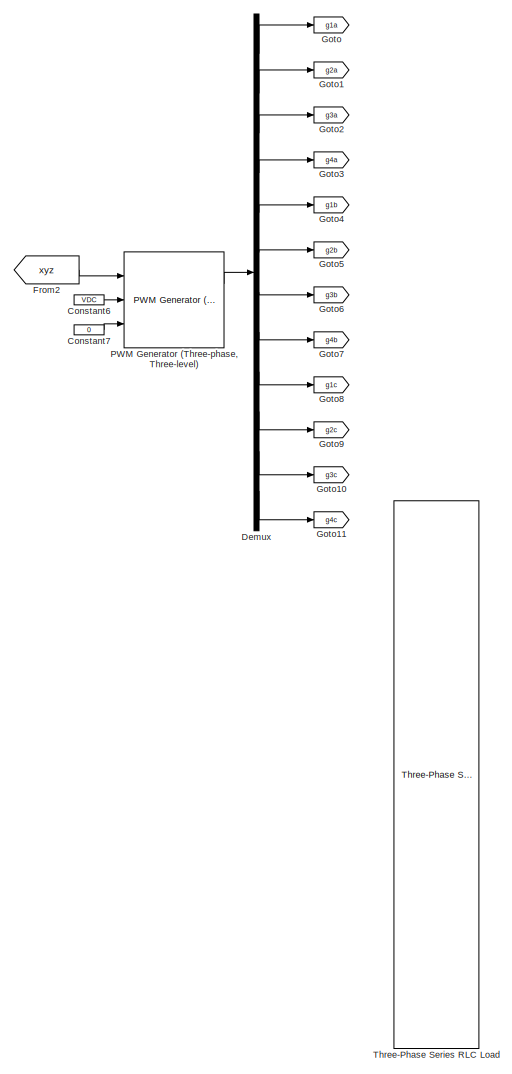
[diagram: root canvas - part 1/5, left side, full height]
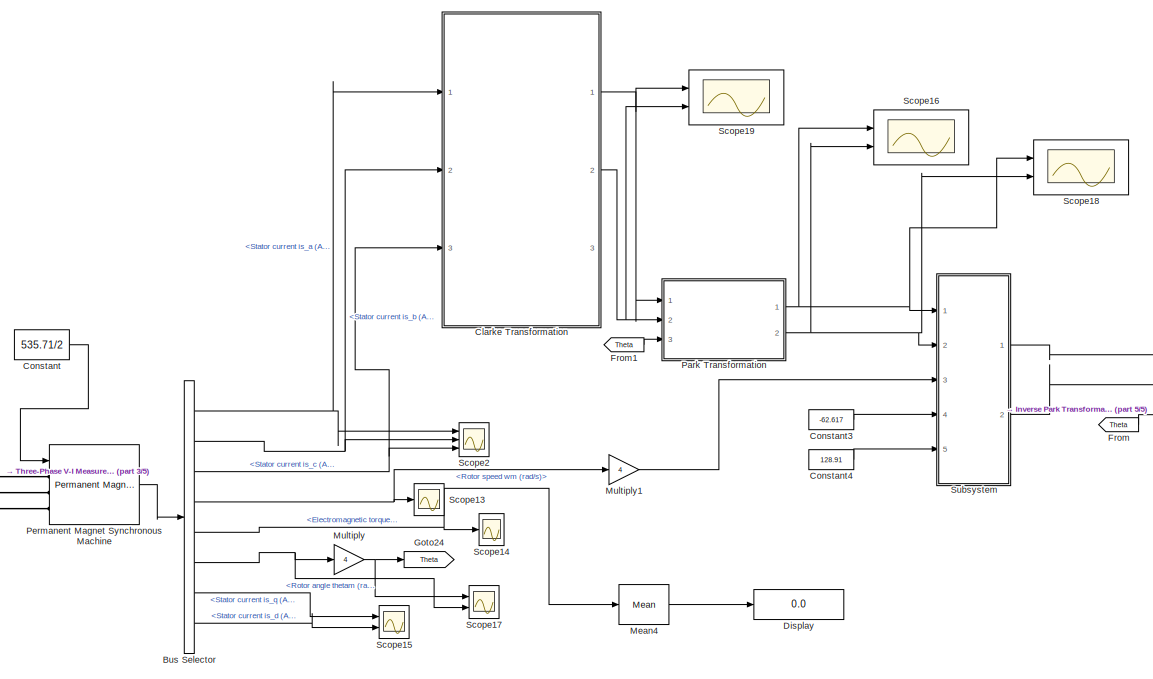
[diagram: root canvas - part 2/5, middle right region]
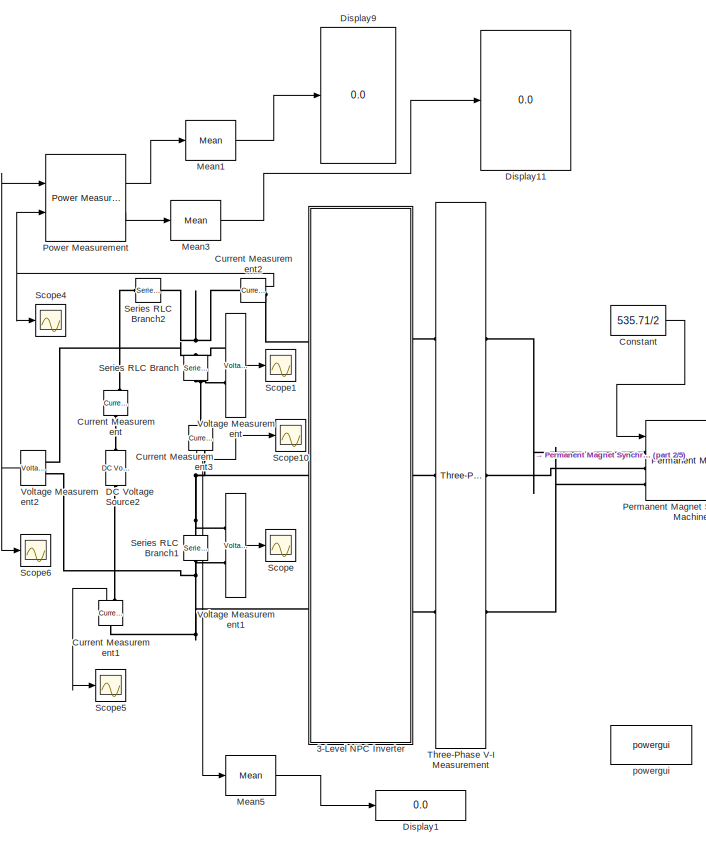
[diagram: root canvas - part 3/5, central region]
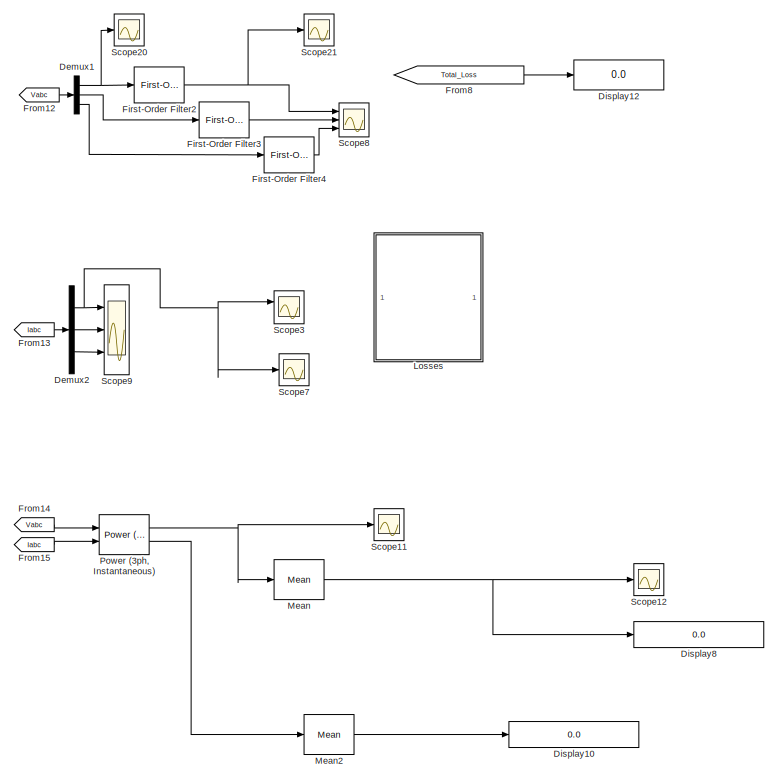
[diagram: root canvas - part 4/5, bottom left region]
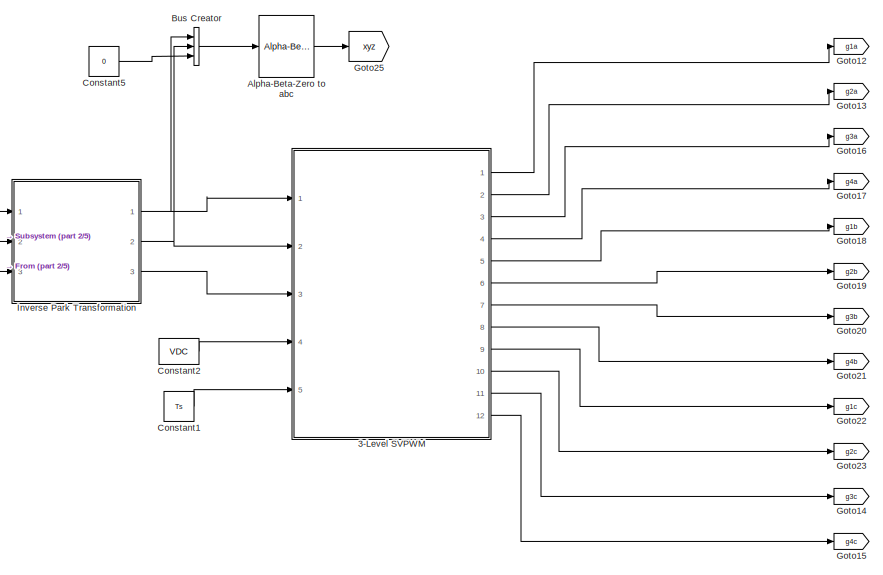
[diagram: root canvas - part 5/5, middle right region]
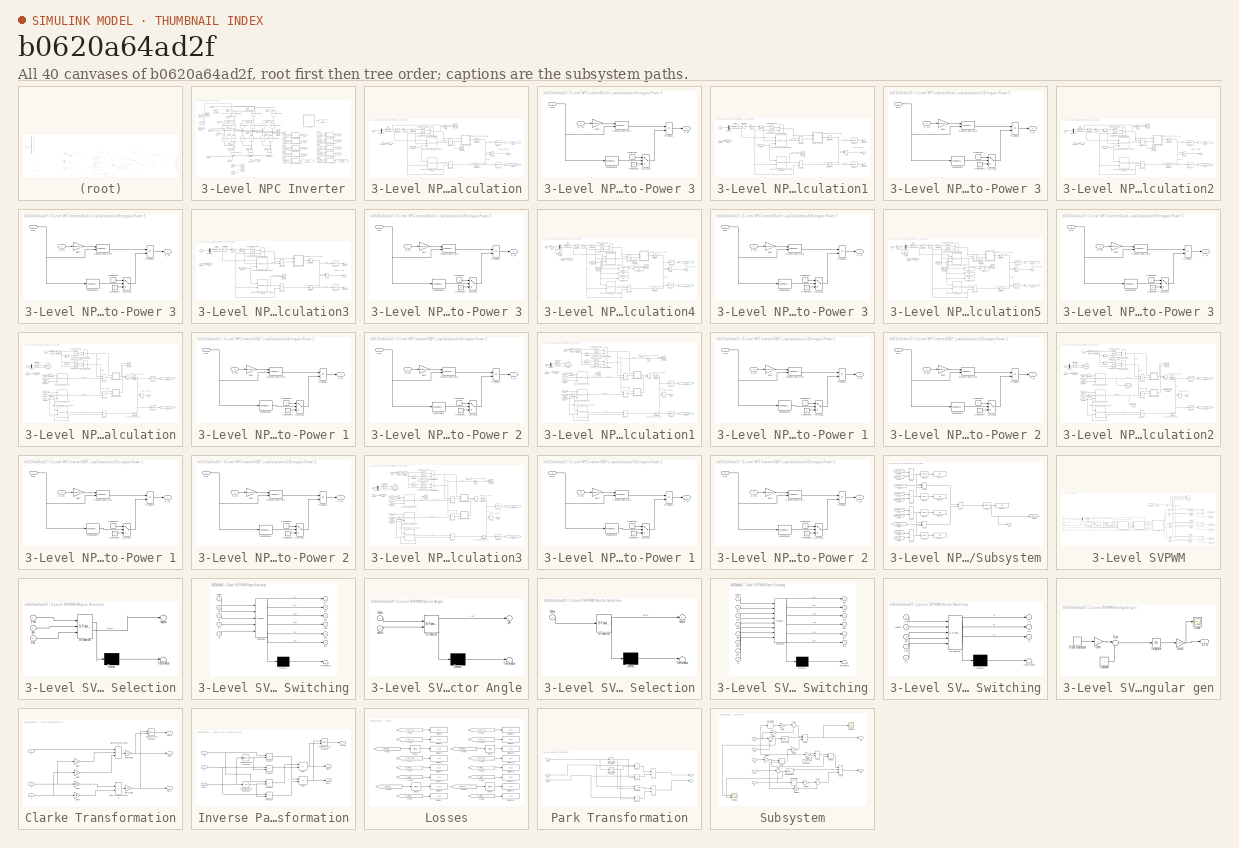
[diagram: thumbnail index - all 40 canvases of the model, root first then tree order]
MODEL slx_b0620a64ad2f
KIND model
CONFIG AbsTol = auto
CONFIG EnableMultiTasking = off
CONFIG FixedStep = Ts/10
CONFIG InitFcn = Ts=1/(12000);\nTs_Control=Ts;\nTs_Power=Ts;\nPulseDuration=5e-6;\nVrefpeak=399;\nVDC=800;\nR=1.4;\nL=1e-4;\nFreq = 120;\nRc= 0.00001;\nC=220e-6;\nLd = 473e-6;\nLq = 1155e-6;\nFpm = 0.1383;\nRs = 0.036;\n \n\n%%%%%Switch Characterization START%%%%%\nT003_Thermal_Initialization;\nT020_Characterizing_SKiM401MLI07E4_Simulink_Model_v1_0;\n%%%%%Switch Characterization END%%%%%%
CONFIG MaxStep = 1e-4
CONFIG MinStep = auto
CONFIG RelTol = 1e-3
CONFIG SampleTimeConstraint = Unconstrained
CONFIG SolverName = FixedStepAuto
CONFIG StartTime = 0.0
CONFIG StopTime = 0.03
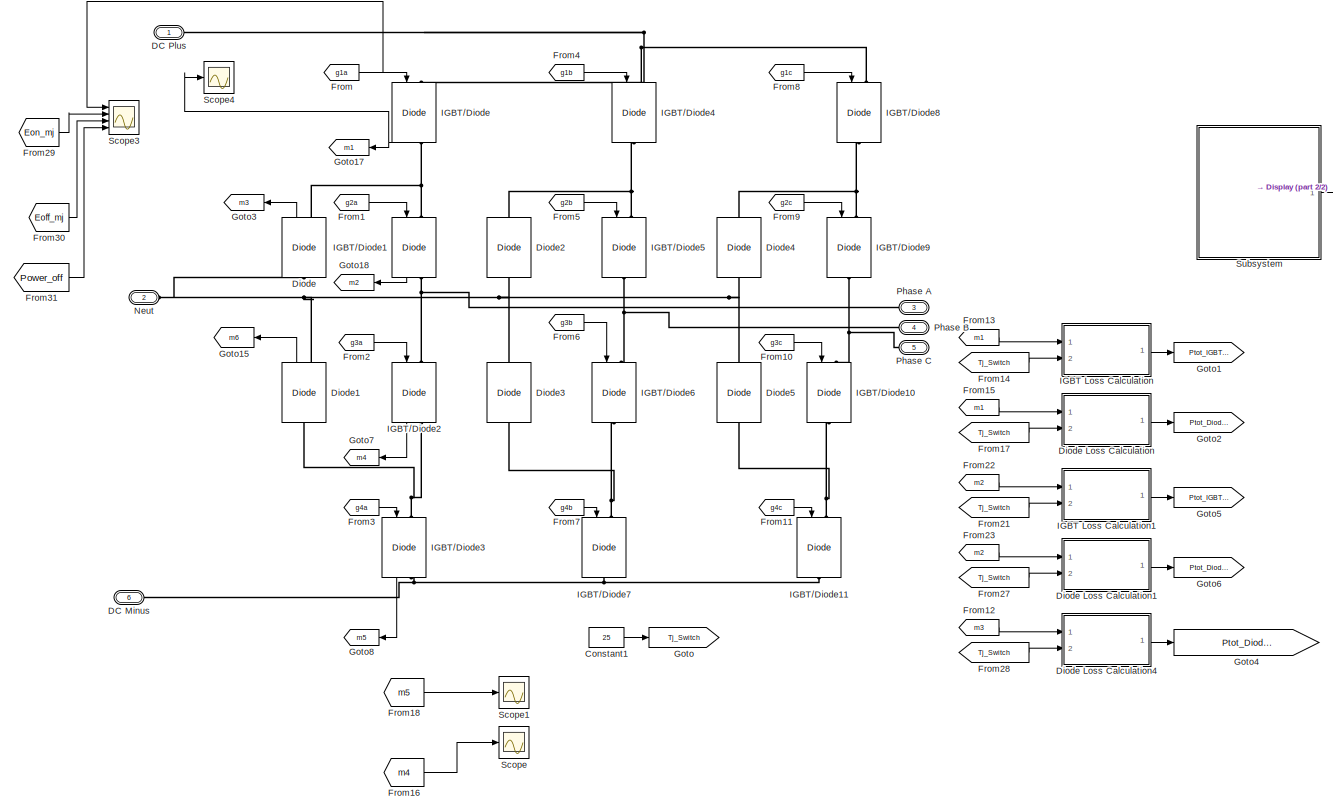
[diagram: 3-Level NPC Inverter - part 1/2, most of the canvas]
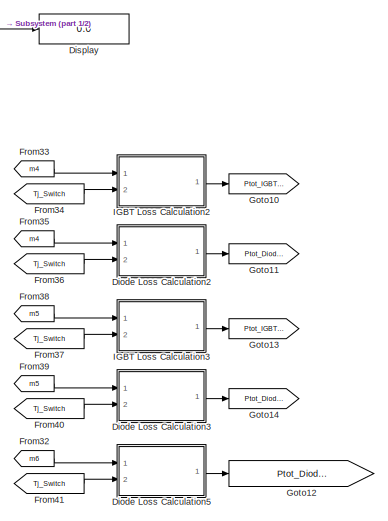
[diagram: 3-Level NPC Inverter - part 2/2, middle right region]
BLOCK [SubSystem] 3-Level NPC Inverter
  Ports = [0, 0, 0, 0, 0, 3, 3]
  RequestExecContextInheritance = off
BLOCK [PMIOPort] 3-Level NPC Inverter/ Neut
  Port = 2
  Side = Left
BLOCK [Constant] 3-Level NPC Inverter/Constant1
  Value = 25
BLOCK [PMIOPort] 3-Level NPC Inverter/DC Minus
  Port = 6
  Side = Left
BLOCK [PMIOPort] 3-Level NPC Inverter/DC Plus
  Side = Left
BLOCK [Reference] 3-Level NPC Inverter/Diode  REF=spsDiodeLib/Diode
  NameLocation = right
  Ports = [0, 1, 0, 0, 0, 1, 1]
  SourceBlock = spsDiodeLib/Diode
  SourceProductBaseCode = PS
  SourceType = Diode
BLOCK [SubSystem] 3-Level NPC Inverter/Diode Loss Calculation
  Ports = [2, 1]
  RequestExecContextInheritance = off
BLOCK [Lookup_n-D] 3-Level NPC Inverter/Diode Loss Calculation/2-D Lookup Table_Vf_on_Diode_Pcond
  BreakpointsForDimension1 = Cond_Loss_Diode.Tj
  BreakpointsForDimension2 = Cond_Loss_Diode.Ic
  BreakpointsForDimension3 = Page_Temp_C
  InputPortMap = u0,u1
  Ports = [2, 1]
  RndMeth = Simplest
  Table = Cond_Loss_Diode.Vce
BLOCK [Lookup_n-D] 3-Level NPC Inverter/Diode Loss Calculation/3-D Lookup Table_Erec_Diode
  BreakpointsForDimension1 = Reverse_Rec_Diode.Vcc_Esw_Erec
  BreakpointsForDimension2 = Reverse_Rec_Diode.DIODE_If_Erec
  BreakpointsForDimension3 = Reverse_Rec_Diode.DIODE_Tj_Erec
  InputPortMap = u0,u1,u2
  NumberOfTableDimensions = 3
  Ports = [3, 1]
  RndMeth = Simplest
  Table = Reverse_Rec_Diode.Esw_Erec
BLOCK [Sum] 3-Level NPC Inverter/Diode Loss Calculation/Add6
  IconShape = rectangular
  Ports = [2, 1]
BLOCK [Bias] 3-Level NPC Inverter/Diode Loss Calculation/Bias
  Bias = 1e-3
  SaturateOnIntegerOverflow = off
BLOCK [Reference] 3-Level NPC Inverter/Diode Loss Calculation/Compare To Zero4  REF=simulink/Logic and Bit
Operations/Compare
To Zero
  Ports = [1, 1]
  SourceBlock = simulink/Logic and Bit\nOperations/Compare\nTo Zero
  SourceProductBaseCode = SL
  SourceType = Compare To Zero
BLOCK [Reference] 3-Level NPC Inverter/Diode Loss Calculation/Compare To Zero5  REF=simulink/Logic and Bit
Operations/Compare
To Zero
  Ports = [1, 1]
  SourceBlock = simulink/Logic and Bit\nOperations/Compare\nTo Zero
  SourceProductBaseCode = SL
  SourceType = Compare To Zero
BLOCK [Demux] 3-Level NPC Inverter/Diode Loss Calculation/Demux2
  Outputs = 2
  Ports = [1, 2]
BLOCK [SubSystem] 3-Level NPC Inverter/Diode Loss Calculation/Energy-to-Power 3
  Ports = [2, 1]
  RequestExecContextInheritance = off
BLOCK [Constant] 3-Level NPC Inverter/Diode Loss Calculation/Energy-to-Power 3/Constant2
BLOCK [Constant] 3-Level NPC Inverter/Diode Loss Calculation/Energy-to-Power 3/Constant3
  Value = 0
BLOCK [Inport] 3-Level NPC Inverter/Diode Loss Calculation/Energy-to-Power 3/E_mJ
  NameLocation = top
  Port = 2
BLOCK [Reference] 3-Level NPC Inverter/Diode Loss Calculation/Energy-to-Power 3/Monostable  REF=spsMonostableLib/Monostable
  Ports = [1, 1]
  SourceBlock = spsMonostableLib/Monostable
  SourceProductBaseCode = PS
  SourceType = Monostable
BLOCK [Outport] 3-Level NPC Inverter/Diode Loss Calculation/Energy-to-Power 3/P_W
  VectorParamsAs1DForOutWhenUnconnected = off
BLOCK [Product] 3-Level NPC Inverter/Diode Loss Calculation/Energy-to-Power 3/Product1
  Ports = [2, 1]
  RndMeth = Zero
BLOCK [Reference] 3-Level NPC Inverter/Diode Loss Calculation/Energy-to-Power 3/Sample and Hold  REF=spsSampleandHoldLib/Sample and
Hold
  Ports = [2, 1]
  SourceBlock = spsSampleandHoldLib/Sample and\nHold
  SourceProductBaseCode = PS
  SourceType = Sample and Hold
BLOCK [Switch] 3-Level NPC Inverter/Diode Loss Calculation/Energy-to-Power 3/Switch1
  Criteria = u2 ~= 0
  InputSameDT = off
  SaturateOnIntegerOverflow = off
BLOCK [Inport] 3-Level NPC Inverter/Diode Loss Calculation/Energy-to-Power 3/Trig
BLOCK [Gain] 3-Level NPC Inverter/Diode Loss Calculation/Energy-to-Power 3/gain
  Gain = 1e-3/(ceil(PulseDuration/Ts)*Ts)
BLOCK [From] 3-Level NPC Inverter/Diode Loss Calculation/From
  GotoTag = Diode_Tj
BLOCK [Gain] 3-Level NPC Inverter/Diode Loss Calculation/Gain
  Gain = 1000
BLOCK [Gain] 3-Level NPC Inverter/Diode Loss Calculation/Gain1
  Gain = -1
BLOCK [Goto] 3-Level NPC Inverter/Diode Loss Calculation/Goto
  GotoTag = Diode_Tj
BLOCK [Goto] 3-Level NPC Inverter/Diode Loss Calculation/Goto1
  GotoTag = P_con_D1D2
  TagVisibility = global
BLOCK [Goto] 3-Level NPC Inverter/Diode Loss Calculation/Goto3
  GotoTag = P_switch_D1
  TagVisibility = global
BLOCK [Logic] 3-Level NPC Inverter/Diode Loss Calculation/Logical Operator2
  AllPortsSameDT = off
  OutDataTypeStr = float('double')
  Ports = [2, 1]
BLOCK [Reference] 3-Level NPC Inverter/Diode Loss Calculation/Mean1  REF=spsMeanLib/Mean
  Ports = [1, 1]
  SourceBlock = spsMeanLib/Mean
  SourceProductBaseCode = PS
  SourceType = Mean
BLOCK [Reference] 3-Level NPC Inverter/Diode Loss Calculation/Mean2  REF=spsMeanLib/Mean
  Ports = [1, 1]
  SourceBlock = spsMeanLib/Mean
  SourceProductBaseCode = PS
  SourceType = Mean
BLOCK [Memory] 3-Level NPC Inverter/Diode Loss Calculation/Memory4
BLOCK [Product] 3-Level NPC Inverter/Diode Loss Calculation/Product3
  Ports = [2, 1]
  RndMeth = Zero
BLOCK [Product] 3-Level NPC Inverter/Diode Loss Calculation/Product4
  Ports = [2, 1]
  RndMeth = Zero
BLOCK [Outport] 3-Level NPC Inverter/Diode Loss Calculation/Ptot
  VectorParamsAs1DForOutWhenUnconnected = off
BLOCK [Saturate] 3-Level NPC Inverter/Diode Loss Calculation/Saturation4
  LowerLimit = 0
  UpperLimit = inf
BLOCK [Saturate] 3-Level NPC Inverter/Diode Loss Calculation/Saturation5
  LowerLimit = 0
  UpperLimit = inf
BLOCK [Saturate] 3-Level NPC Inverter/Diode Loss Calculation/Saturation6
  LowerLimit = -1e6
  UpperLimit = 0
BLOCK [Scope] 3-Level NPC Inverter/Diode Loss Calculation/Scope
  Floating = off
  NumInputPorts = 2
  Ports = [2]
  ScopeSpecificationString = Simulink.scopes.TimeScopeBlockCfg('CurrentConfiguration', extmgr.ConfigurationSet(extmgr.Configuration('Core','General UI',true),extmgr.Configuration('Core','Source UI',true),extmgr.Configuration('Sources','WiredSimulink',true,'DataLoggingVariableName','ScopeData4'),extmgr.Configuration('Visuals','Time Domain',true,'SerializedDisplays',{struct('MinYLimReal','-691.18778','MaxYLimReal','1415.06266',...<+1459ch>
BLOCK [Scope] 3-Level NPC Inverter/Diode Loss Calculation/Scope1
  Floating = off
  NumInputPorts = 1
  Ports = [1]
  ScopeSpecificationString = Simulink.scopes.TimeScopeBlockCfg('CurrentConfiguration', extmgr.ConfigurationSet(extmgr.Configuration('Core','General UI',true),extmgr.Configuration('Core','Source UI',true),extmgr.Configuration('Sources','WiredSimulink',true,'DataLoggingVariableName','ScopeData1'),extmgr.Configuration('Visuals','Time Domain',true,'SerializedDisplays',{struct('MinYLimReal','-0.44009','MaxYLimReal','3.76297','YLab...<+1440ch>
BLOCK [Inport] 3-Level NPC Inverter/Diode Loss Calculation/Tj_Diode
  Port = 2
BLOCK [Inport] 3-Level NPC Inverter/Diode Loss Calculation/m
BLOCK [SubSystem] 3-Level NPC Inverter/Diode Loss Calculation1
  Ports = [2, 1]
  RequestExecContextInheritance = off
BLOCK [Lookup_n-D] 3-Level NPC Inverter/Diode Loss Calculation1/2-D Lookup Table_Vf_on_Diode_Pcond
  BreakpointsForDimension1 = Cond_Loss_Diode.Tj
  BreakpointsForDimension2 = Cond_Loss_Diode.Ic
  BreakpointsForDimension3 = Page_Temp_C
  InputPortMap = u0,u1
  Ports = [2, 1]
  RndMeth = Simplest
  Table = Cond_Loss_Diode.Vce
BLOCK [Lookup_n-D] 3-Level NPC Inverter/Diode Loss Calculation1/3-D Lookup Table_Erec_Diode
  BreakpointsForDimension1 = Reverse_Rec_Diode.Vcc_Esw_Erec
  BreakpointsForDimension2 = Reverse_Rec_Diode.DIODE_If_Erec
  BreakpointsForDimension3 = Reverse_Rec_Diode.DIODE_Tj_Erec
  InputPortMap = u0,u1,u2
  NumberOfTableDimensions = 3
  Ports = [3, 1]
  RndMeth = Simplest
  Table = Reverse_Rec_Diode.Esw_Erec
BLOCK [Sum] 3-Level NPC Inverter/Diode Loss Calculation1/Add6
  IconShape = rectangular
  Ports = [2, 1]
BLOCK [Bias] 3-Level NPC Inverter/Diode Loss Calculation1/Bias
  Bias = -1e-3
  SaturateOnIntegerOverflow = off
BLOCK [Reference] 3-Level NPC Inverter/Diode Loss Calculation1/Compare To Zero4  REF=simulink/Logic and Bit
Operations/Compare
To Zero
  Ports = [1, 1]
  SourceBlock = simulink/Logic and Bit\nOperations/Compare\nTo Zero
  SourceProductBaseCode = SL
  SourceType = Compare To Zero
BLOCK [Reference] 3-Level NPC Inverter/Diode Loss Calculation1/Compare To Zero5  REF=simulink/Logic and Bit
Operations/Compare
To Zero
  Ports = [1, 1]
  SourceBlock = simulink/Logic and Bit\nOperations/Compare\nTo Zero
  SourceProductBaseCode = SL
  SourceType = Compare To Zero
BLOCK [Demux] 3-Level NPC Inverter/Diode Loss Calculation1/Demux2
  Outputs = 2
  Ports = [1, 2]
BLOCK [SubSystem] 3-Level NPC Inverter/Diode Loss Calculation1/Energy-to-Power 3
  Ports = [2, 1]
  RequestExecContextInheritance = off
BLOCK [Constant] 3-Level NPC Inverter/Diode Loss Calculation1/Energy-to-Power 3/Constant2
BLOCK [Constant] 3-Level NPC Inverter/Diode Loss Calculation1/Energy-to-Power 3/Constant3
  Value = 0
BLOCK [Inport] 3-Level NPC Inverter/Diode Loss Calculation1/Energy-to-Power 3/E_mJ
  NameLocation = top
  Port = 2
BLOCK [Reference] 3-Level NPC Inverter/Diode Loss Calculation1/Energy-to-Power 3/Monostable  REF=spsMonostableLib/Monostable
  Ports = [1, 1]
  SourceBlock = spsMonostableLib/Monostable
  SourceProductBaseCode = PS
  SourceType = Monostable
BLOCK [Outport] 3-Level NPC Inverter/Diode Loss Calculation1/Energy-to-Power 3/P_W
  VectorParamsAs1DForOutWhenUnconnected = off
BLOCK [Product] 3-Level NPC Inverter/Diode Loss Calculation1/Energy-to-Power 3/Product1
  Ports = [2, 1]
  RndMeth = Zero
BLOCK [Reference] 3-Level NPC Inverter/Diode Loss Calculation1/Energy-to-Power 3/Sample and Hold  REF=spsSampleandHoldLib/Sample and
Hold
  Ports = [2, 1]
  SourceBlock = spsSampleandHoldLib/Sample and\nHold
  SourceProductBaseCode = PS
  SourceType = Sample and Hold
BLOCK [Switch] 3-Level NPC Inverter/Diode Loss Calculation1/Energy-to-Power 3/Switch1
  Criteria = u2 ~= 0
  InputSameDT = off
  SaturateOnIntegerOverflow = off
BLOCK [Inport] 3-Level NPC Inverter/Diode Loss Calculation1/Energy-to-Power 3/Trig
BLOCK [Gain] 3-Level NPC Inverter/Diode Loss Calculation1/Energy-to-Power 3/gain
  Gain = 1e-3/(ceil(PulseDuration/Ts)*Ts)
BLOCK [From] 3-Level NPC Inverter/Diode Loss Calculation1/From
  GotoTag = Diode_Tj
BLOCK [Gain] 3-Level NPC Inverter/Diode Loss Calculation1/Gain1
  Gain = -1
BLOCK [Goto] 3-Level NPC Inverter/Diode Loss Calculation1/Goto
  GotoTag = Diode_Tj
BLOCK [Logic] 3-Level NPC Inverter/Diode Loss Calculation1/Logical Operator2
  AllPortsSameDT = off
  OutDataTypeStr = float('double')
  Ports = [2, 1]
BLOCK [Reference] 3-Level NPC Inverter/Diode Loss Calculation1/Mean1  REF=spsMeanLib/Mean
  Commented = on
  Ports = [1, 1]
  SourceBlock = spsMeanLib/Mean
  SourceProductBaseCode = PS
  SourceType = Mean
BLOCK [Reference] 3-Level NPC Inverter/Diode Loss Calculation1/Mean2  REF=spsMeanLib/Mean
  Commented = on
  Ports = [1, 1]
  SourceBlock = spsMeanLib/Mean
  SourceProductBaseCode = PS
  SourceType = Mean
BLOCK [Memory] 3-Level NPC Inverter/Diode Loss Calculation1/Memory4
BLOCK [Product] 3-Level NPC Inverter/Diode Loss Calculation1/Product3
  Ports = [2, 1]
  RndMeth = Zero
BLOCK [Product] 3-Level NPC Inverter/Diode Loss Calculation1/Product4
  Ports = [2, 1]
  RndMeth = Zero
BLOCK [Outport] 3-Level NPC Inverter/Diode Loss Calculation1/Ptot
  VectorParamsAs1DForOutWhenUnconnected = off
BLOCK [Saturate] 3-Level NPC Inverter/Diode Loss Calculation1/Saturation4
  LowerLimit = 0
  UpperLimit = inf
BLOCK [Saturate] 3-Level NPC Inverter/Diode Loss Calculation1/Saturation5
  LowerLimit = 0
  UpperLimit = inf
BLOCK [Saturate] 3-Level NPC Inverter/Diode Loss Calculation1/Saturation6
  LowerLimit = -1e6
  UpperLimit = 0
BLOCK [Scope] 3-Level NPC Inverter/Diode Loss Calculation1/Scope
  Floating = off
  NumInputPorts = 1
  Ports = [1]
  ScopeSpecificationString = Simulink.scopes.TimeScopeBlockCfg('CurrentConfiguration', extmgr.ConfigurationSet(extmgr.Configuration('Core','General UI',true),extmgr.Configuration('Core','Source UI',true),extmgr.Configuration('Sources','WiredSimulink',true,'DataLoggingVariableName','ScopeData1'),extmgr.Configuration('Visuals','Time Domain',true,'SerializedDisplays',{struct('MinYLimReal','0.00542','MaxYLimReal','0.82803','YLabe...<+1439ch>
BLOCK [Terminator] 3-Level NPC Inverter/Diode Loss Calculation1/Terminator
  Commented = on
BLOCK [Terminator] 3-Level NPC Inverter/Diode Loss Calculation1/Terminator1
  Commented = on
BLOCK [Inport] 3-Level NPC Inverter/Diode Loss Calculation1/Tj_Diode
  Port = 2
BLOCK [Inport] 3-Level NPC Inverter/Diode Loss Calculation1/m
BLOCK [SubSystem] 3-Level NPC Inverter/Diode Loss Calculation2
  Ports = [2, 1]
  RequestExecContextInheritance = off
BLOCK [Lookup_n-D] 3-Level NPC Inverter/Diode Loss Calculation2/2-D Lookup Table_Vf_on_Diode_Pcond
  BreakpointsForDimension1 = Cond_Loss_Diode.Tj
  BreakpointsForDimension2 = Cond_Loss_Diode.Ic
  BreakpointsForDimension3 = Page_Temp_C
  InputPortMap = u0,u1
  Ports = [2, 1]
  RndMeth = Simplest
  Table = Cond_Loss_Diode.Vce
BLOCK [Lookup_n-D] 3-Level NPC Inverter/Diode Loss Calculation2/3-D Lookup Table_Erec_Diode
  BreakpointsForDimension1 = Reverse_Rec_Diode.Vcc_Esw_Erec
  BreakpointsForDimension2 = Reverse_Rec_Diode.DIODE_If_Erec
  BreakpointsForDimension3 = Reverse_Rec_Diode.DIODE_Tj_Erec
  InputPortMap = u0,u1,u2
  NumberOfTableDimensions = 3
  Ports = [3, 1]
  RndMeth = Simplest
  Table = Reverse_Rec_Diode.Esw_Erec
BLOCK [Sum] 3-Level NPC Inverter/Diode Loss Calculation2/Add6
  IconShape = rectangular
  Ports = [2, 1]
BLOCK [Bias] 3-Level NPC Inverter/Diode Loss Calculation2/Bias
  Bias = 1e-3
  SaturateOnIntegerOverflow = off
BLOCK [Reference] 3-Level NPC Inverter/Diode Loss Calculation2/Compare To Zero4  REF=simulink/Logic and Bit
Operations/Compare
To Zero
  Ports = [1, 1]
  SourceBlock = simulink/Logic and Bit\nOperations/Compare\nTo Zero
  SourceProductBaseCode = SL
  SourceType = Compare To Zero
BLOCK [Reference] 3-Level NPC Inverter/Diode Loss Calculation2/Compare To Zero5  REF=simulink/Logic and Bit
Operations/Compare
To Zero
  Ports = [1, 1]
  SourceBlock = simulink/Logic and Bit\nOperations/Compare\nTo Zero
  SourceProductBaseCode = SL
  SourceType = Compare To Zero
BLOCK [Demux] 3-Level NPC Inverter/Diode Loss Calculation2/Demux2
  Outputs = 2
  Ports = [1, 2]
BLOCK [SubSystem] 3-Level NPC Inverter/Diode Loss Calculation2/Energy-to-Power 3
  Ports = [2, 1]
  RequestExecContextInheritance = off
BLOCK [Constant] 3-Level NPC Inverter/Diode Loss Calculation2/Energy-to-Power 3/Constant2
BLOCK [Constant] 3-Level NPC Inverter/Diode Loss Calculation2/Energy-to-Power 3/Constant3
  Value = 0
BLOCK [Inport] 3-Level NPC Inverter/Diode Loss Calculation2/Energy-to-Power 3/E_mJ
  NameLocation = top
  Port = 2
BLOCK [Reference] 3-Level NPC Inverter/Diode Loss Calculation2/Energy-to-Power 3/Monostable  REF=spsMonostableLib/Monostable
  Ports = [1, 1]
  SourceBlock = spsMonostableLib/Monostable
  SourceProductBaseCode = PS
  SourceType = Monostable
BLOCK [Outport] 3-Level NPC Inverter/Diode Loss Calculation2/Energy-to-Power 3/P_W
  VectorParamsAs1DForOutWhenUnconnected = off
BLOCK [Product] 3-Level NPC Inverter/Diode Loss Calculation2/Energy-to-Power 3/Product1
  Ports = [2, 1]
  RndMeth = Zero
BLOCK [Reference] 3-Level NPC Inverter/Diode Loss Calculation2/Energy-to-Power 3/Sample and Hold  REF=spsSampleandHoldLib/Sample and
Hold
  Ports = [2, 1]
  SourceBlock = spsSampleandHoldLib/Sample and\nHold
  SourceProductBaseCode = PS
  SourceType = Sample and Hold
BLOCK [Switch] 3-Level NPC Inverter/Diode Loss Calculation2/Energy-to-Power 3/Switch1
  Criteria = u2 ~= 0
  InputSameDT = off
  SaturateOnIntegerOverflow = off
BLOCK [Inport] 3-Level NPC Inverter/Diode Loss Calculation2/Energy-to-Power 3/Trig
BLOCK [Gain] 3-Level NPC Inverter/Diode Loss Calculation2/Energy-to-Power 3/gain
  Gain = 1e-3/(ceil(PulseDuration/Ts)*Ts)
BLOCK [From] 3-Level NPC Inverter/Diode Loss Calculation2/From
  GotoTag = Diode_Tj
BLOCK [Gain] 3-Level NPC Inverter/Diode Loss Calculation2/Gain
  Gain = 1000
BLOCK [Gain] 3-Level NPC Inverter/Diode Loss Calculation2/Gain1
  Gain = -1
BLOCK [Goto] 3-Level NPC Inverter/Diode Loss Calculation2/Goto
  GotoTag = Diode_Tj
BLOCK [Goto] 3-Level NPC Inverter/Diode Loss Calculation2/Goto1
  GotoTag = P_con_D3
  TagVisibility = global
BLOCK [Goto] 3-Level NPC Inverter/Diode Loss Calculation2/Goto3
  GotoTag = P_switch_D3
  TagVisibility = global
BLOCK [Logic] 3-Level NPC Inverter/Diode Loss Calculation2/Logical Operator2
  AllPortsSameDT = off
  OutDataTypeStr = float('double')
  Ports = [2, 1]
BLOCK [Reference] 3-Level NPC Inverter/Diode Loss Calculation2/Mean1  REF=spsMeanLib/Mean
  Ports = [1, 1]
  SourceBlock = spsMeanLib/Mean
  SourceProductBaseCode = PS
  SourceType = Mean
BLOCK [Reference] 3-Level NPC Inverter/Diode Loss Calculation2/Mean2  REF=spsMeanLib/Mean
  Ports = [1, 1]
  SourceBlock = spsMeanLib/Mean
  SourceProductBaseCode = PS
  SourceType = Mean
BLOCK [Memory] 3-Level NPC Inverter/Diode Loss Calculation2/Memory4
BLOCK [Product] 3-Level NPC Inverter/Diode Loss Calculation2/Product3
  Ports = [2, 1]
  RndMeth = Zero
BLOCK [Product] 3-Level NPC Inverter/Diode Loss Calculation2/Product4
  Ports = [2, 1]
  RndMeth = Zero
BLOCK [Outport] 3-Level NPC Inverter/Diode Loss Calculation2/Ptot
  VectorParamsAs1DForOutWhenUnconnected = off
BLOCK [Saturate] 3-Level NPC Inverter/Diode Loss Calculation2/Saturation4
  LowerLimit = 0
  UpperLimit = inf
BLOCK [Saturate] 3-Level NPC Inverter/Diode Loss Calculation2/Saturation5
  LowerLimit = 0
  UpperLimit = inf
BLOCK [Saturate] 3-Level NPC Inverter/Diode Loss Calculation2/Saturation6
  LowerLimit = -1e6
  UpperLimit = 0
BLOCK [Scope] 3-Level NPC Inverter/Diode Loss Calculation2/Scope
  Floating = off
  NumInputPorts = 2
  Ports = [2]
  ScopeSpecificationString = Simulink.scopes.TimeScopeBlockCfg('CurrentConfiguration', extmgr.ConfigurationSet(extmgr.Configuration('Core','General UI',true),extmgr.Configuration('Core','Source UI',true),extmgr.Configuration('Sources','WiredSimulink',true,'DataLoggingVariableName','ScopeData4'),extmgr.Configuration('Visuals','Time Domain',true,'SerializedDisplays',{struct('MinYLimReal','-691.18778','MaxYLimReal','1415.06266',...<+1459ch>
BLOCK [Scope] 3-Level NPC Inverter/Diode Loss Calculation2/Scope1
  Floating = off
  NumInputPorts = 1
  Ports = [1]
  ScopeSpecificationString = Simulink.scopes.TimeScopeBlockCfg('CurrentConfiguration', extmgr.ConfigurationSet(extmgr.Configuration('Core','General UI',true),extmgr.Configuration('Core','Source UI',true),extmgr.Configuration('Sources','WiredSimulink',true,'DataLoggingVariableName','ScopeData1'),extmgr.Configuration('Visuals','Time Domain',true,'SerializedDisplays',{struct('MinYLimReal','-0.44009','MaxYLimReal','3.76297','YLab...<+1440ch>
BLOCK [Inport] 3-Level NPC Inverter/Diode Loss Calculation2/Tj_Diode
  Port = 2
BLOCK [Inport] 3-Level NPC Inverter/Diode Loss Calculation2/m
BLOCK [SubSystem] 3-Level NPC Inverter/Diode Loss Calculation3
  Ports = [2, 1]
  RequestExecContextInheritance = off
BLOCK [Lookup_n-D] 3-Level NPC Inverter/Diode Loss Calculation3/2-D Lookup Table_Vf_on_Diode_Pcond
  BreakpointsForDimension1 = Cond_Loss_Diode.Tj
  BreakpointsForDimension2 = Cond_Loss_Diode.Ic
  BreakpointsForDimension3 = Page_Temp_C
  InputPortMap = u0,u1
  Ports = [2, 1]
  RndMeth = Simplest
  Table = Cond_Loss_Diode.Vce
BLOCK [Lookup_n-D] 3-Level NPC Inverter/Diode Loss Calculation3/3-D Lookup Table_Erec_Diode
  BreakpointsForDimension1 = Reverse_Rec_Diode.Vcc_Esw_Erec
  BreakpointsForDimension2 = Reverse_Rec_Diode.DIODE_If_Erec
  BreakpointsForDimension3 = Reverse_Rec_Diode.DIODE_Tj_Erec
  InputPortMap = u0,u1,u2
  NumberOfTableDimensions = 3
  Ports = [3, 1]
  RndMeth = Simplest
  Table = Reverse_Rec_Diode.Esw_Erec
BLOCK [Sum] 3-Level NPC Inverter/Diode Loss Calculation3/Add6
  IconShape = rectangular
  Ports = [2, 1]
BLOCK [Bias] 3-Level NPC Inverter/Diode Loss Calculation3/Bias
  Bias = -1e-3
  SaturateOnIntegerOverflow = off
BLOCK [Reference] 3-Level NPC Inverter/Diode Loss Calculation3/Compare To Zero4  REF=simulink/Logic and Bit
Operations/Compare
To Zero
  Ports = [1, 1]
  SourceBlock = simulink/Logic and Bit\nOperations/Compare\nTo Zero
  SourceProductBaseCode = SL
  SourceType = Compare To Zero
BLOCK [Reference] 3-Level NPC Inverter/Diode Loss Calculation3/Compare To Zero5  REF=simulink/Logic and Bit
Operations/Compare
To Zero
  Ports = [1, 1]
  SourceBlock = simulink/Logic and Bit\nOperations/Compare\nTo Zero
  SourceProductBaseCode = SL
  SourceType = Compare To Zero
BLOCK [Demux] 3-Level NPC Inverter/Diode Loss Calculation3/Demux2
  Outputs = 2
  Ports = [1, 2]
BLOCK [SubSystem] 3-Level NPC Inverter/Diode Loss Calculation3/Energy-to-Power 3
  Ports = [2, 1]
  RequestExecContextInheritance = off
BLOCK [Constant] 3-Level NPC Inverter/Diode Loss Calculation3/Energy-to-Power 3/Constant2
BLOCK [Constant] 3-Level NPC Inverter/Diode Loss Calculation3/Energy-to-Power 3/Constant3
  Value = 0
BLOCK [Inport] 3-Level NPC Inverter/Diode Loss Calculation3/Energy-to-Power 3/E_mJ
  NameLocation = top
  Port = 2
BLOCK [Reference] 3-Level NPC Inverter/Diode Loss Calculation3/Energy-to-Power 3/Monostable  REF=spsMonostableLib/Monostable
  Ports = [1, 1]
  SourceBlock = spsMonostableLib/Monostable
  SourceProductBaseCode = PS
  SourceType = Monostable
BLOCK [Outport] 3-Level NPC Inverter/Diode Loss Calculation3/Energy-to-Power 3/P_W
  VectorParamsAs1DForOutWhenUnconnected = off
BLOCK [Product] 3-Level NPC Inverter/Diode Loss Calculation3/Energy-to-Power 3/Product1
  Ports = [2, 1]
  RndMeth = Zero
BLOCK [Reference] 3-Level NPC Inverter/Diode Loss Calculation3/Energy-to-Power 3/Sample and Hold  REF=spsSampleandHoldLib/Sample and
Hold
  Ports = [2, 1]
  SourceBlock = spsSampleandHoldLib/Sample and\nHold
  SourceProductBaseCode = PS
  SourceType = Sample and Hold
BLOCK [Switch] 3-Level NPC Inverter/Diode Loss Calculation3/Energy-to-Power 3/Switch1
  Criteria = u2 ~= 0
  InputSameDT = off
  SaturateOnIntegerOverflow = off
BLOCK [Inport] 3-Level NPC Inverter/Diode Loss Calculation3/Energy-to-Power 3/Trig
BLOCK [Gain] 3-Level NPC Inverter/Diode Loss Calculation3/Energy-to-Power 3/gain
  Gain = 1e-3/(ceil(PulseDuration/Ts)*Ts)
BLOCK [From] 3-Level NPC Inverter/Diode Loss Calculation3/From
  GotoTag = Diode_Tj
BLOCK [Gain] 3-Level NPC Inverter/Diode Loss Calculation3/Gain1
  Gain = -1
BLOCK [Goto] 3-Level NPC Inverter/Diode Loss Calculation3/Goto
  GotoTag = Diode_Tj
BLOCK [Logic] 3-Level NPC Inverter/Diode Loss Calculation3/Logical Operator2
  AllPortsSameDT = off
  OutDataTypeStr = float('double')
  Ports = [2, 1]
BLOCK [Reference] 3-Level NPC Inverter/Diode Loss Calculation3/Mean1  REF=spsMeanLib/Mean
  Commented = on
  Ports = [1, 1]
  SourceBlock = spsMeanLib/Mean
  SourceProductBaseCode = PS
  SourceType = Mean
BLOCK [Reference] 3-Level NPC Inverter/Diode Loss Calculation3/Mean2  REF=spsMeanLib/Mean
  Commented = on
  Ports = [1, 1]
  SourceBlock = spsMeanLib/Mean
  SourceProductBaseCode = PS
  SourceType = Mean
BLOCK [Memory] 3-Level NPC Inverter/Diode Loss Calculation3/Memory4
BLOCK [Product] 3-Level NPC Inverter/Diode Loss Calculation3/Product3
  Ports = [2, 1]
  RndMeth = Zero
BLOCK [Product] 3-Level NPC Inverter/Diode Loss Calculation3/Product4
  Ports = [2, 1]
  RndMeth = Zero
BLOCK [Outport] 3-Level NPC Inverter/Diode Loss Calculation3/Ptot
  VectorParamsAs1DForOutWhenUnconnected = off
BLOCK [Saturate] 3-Level NPC Inverter/Diode Loss Calculation3/Saturation4
  LowerLimit = 0
  UpperLimit = inf
BLOCK [Saturate] 3-Level NPC Inverter/Diode Loss Calculation3/Saturation5
  LowerLimit = 0
  UpperLimit = inf
BLOCK [Saturate] 3-Level NPC Inverter/Diode Loss Calculation3/Saturation6
  LowerLimit = -1e6
  UpperLimit = 0
BLOCK [Scope] 3-Level NPC Inverter/Diode Loss Calculation3/Scope
  Floating = off
  NumInputPorts = 1
  Ports = [1]
  ScopeSpecificationString = Simulink.scopes.TimeScopeBlockCfg('CurrentConfiguration', extmgr.ConfigurationSet(extmgr.Configuration('Core','General UI',true),extmgr.Configuration('Core','Source UI',true),extmgr.Configuration('Sources','WiredSimulink',true,'DataLoggingVariableName','ScopeData1'),extmgr.Configuration('Visuals','Time Domain',true,'SerializedDisplays',{struct('MinYLimReal','0.00542','MaxYLimReal','0.82803','YLabe...<+1439ch>
BLOCK [Terminator] 3-Level NPC Inverter/Diode Loss Calculation3/Terminator
  Commented = on
BLOCK [Terminator] 3-Level NPC Inverter/Diode Loss Calculation3/Terminator1
  Commented = on
BLOCK [Inport] 3-Level NPC Inverter/Diode Loss Calculation3/Tj_Diode
  Port = 2
BLOCK [Inport] 3-Level NPC Inverter/Diode Loss Calculation3/m
BLOCK [SubSystem] 3-Level NPC Inverter/Diode Loss Calculation4
  Ports = [2, 1]
  RequestExecContextInheritance = off
BLOCK [Lookup_n-D] 3-Level NPC Inverter/Diode Loss Calculation4/2-D Lookup Table_Vf_on_Diode_Pcond
  BreakpointsForDimension1 = Cond_Loss_Diode.Tj
  BreakpointsForDimension2 = Cond_Loss_Diode.Ic
  BreakpointsForDimension3 = Page_Temp_C
  InputPortMap = u0,u1
  Ports = [2, 1]
  RndMeth = Simplest
  Table = Cond_Loss_Diode.Vce
BLOCK [Lookup_n-D] 3-Level NPC Inverter/Diode Loss Calculation4/3-D Lookup Table_Erec_Diode
  BreakpointsForDimension1 = Reverse_Rec_Diode.Vcc_Esw_Erec
  BreakpointsForDimension2 = Reverse_Rec_Diode.DIODE_If_Erec
  BreakpointsForDimension3 = Reverse_Rec_Diode.DIODE_Tj_Erec
  InputPortMap = u0,u1,u2
  NumberOfTableDimensions = 3
  Ports = [3, 1]
  RndMeth = Simplest
  Table = Reverse_Rec_Diode.Esw_Erec
BLOCK [Sum] 3-Level NPC Inverter/Diode Loss Calculation4/Add6
  IconShape = rectangular
  Ports = [2, 1]
BLOCK [Bias] 3-Level NPC Inverter/Diode Loss Calculation4/Bias
  Bias = +1e-3
  SaturateOnIntegerOverflow = off
BLOCK [Reference] 3-Level NPC Inverter/Diode Loss Calculation4/Compare To Zero4  REF=simulink/Logic and Bit
Operations/Compare
To Zero
  Ports = [1, 1]
  SourceBlock = simulink/Logic and Bit\nOperations/Compare\nTo Zero
  SourceProductBaseCode = SL
  SourceType = Compare To Zero
BLOCK [Reference] 3-Level NPC Inverter/Diode Loss Calculation4/Compare To Zero5  REF=simulink/Logic and Bit
Operations/Compare
To Zero
  Ports = [1, 1]
  SourceBlock = simulink/Logic and Bit\nOperations/Compare\nTo Zero
  SourceProductBaseCode = SL
  SourceType = Compare To Zero
BLOCK [Demux] 3-Level NPC Inverter/Diode Loss Calculation4/Demux2
  Outputs = 2
  Ports = [1, 2]
BLOCK [Display] 3-Level NPC Inverter/Diode Loss Calculation4/Display3
  Decimation = 1
  Ports = [1]
BLOCK [Display] 3-Level NPC Inverter/Diode Loss Calculation4/Display4
  Decimation = 1
  Ports = [1]
BLOCK [Display] 3-Level NPC Inverter/Diode Loss Calculation4/Display5
  Decimation = 1
  Ports = [1]
BLOCK [Display] 3-Level NPC Inverter/Diode Loss Calculation4/Display6
  Decimation = 1
  Ports = [1]
BLOCK [SubSystem] 3-Level NPC Inverter/Diode Loss Calculation4/Energy-to-Power 3
  Ports = [2, 1]
  RequestExecContextInheritance = off
BLOCK [Constant] 3-Level NPC Inverter/Diode Loss Calculation4/Energy-to-Power 3/Constant2
BLOCK [Constant] 3-Level NPC Inverter/Diode Loss Calculation4/Energy-to-Power 3/Constant3
  Value = 0
BLOCK [Inport] 3-Level NPC Inverter/Diode Loss Calculation4/Energy-to-Power 3/E_mJ
  NameLocation = top
  Port = 2
BLOCK [Reference] 3-Level NPC Inverter/Diode Loss Calculation4/Energy-to-Power 3/Monostable  REF=spsMonostableLib/Monostable
  Ports = [1, 1]
  SourceBlock = spsMonostableLib/Monostable
  SourceProductBaseCode = PS
  SourceType = Monostable
BLOCK [Outport] 3-Level NPC Inverter/Diode Loss Calculation4/Energy-to-Power 3/P_W
  VectorParamsAs1DForOutWhenUnconnected = off
BLOCK [Product] 3-Level NPC Inverter/Diode Loss Calculation4/Energy-to-Power 3/Product1
  Ports = [2, 1]
  RndMeth = Zero
BLOCK [Reference] 3-Level NPC Inverter/Diode Loss Calculation4/Energy-to-Power 3/Sample and Hold  REF=spsSampleandHoldLib/Sample and
Hold
  Ports = [2, 1]
  SourceBlock = spsSampleandHoldLib/Sample and\nHold
  SourceProductBaseCode = PS
  SourceType = Sample and Hold
BLOCK [Switch] 3-Level NPC Inverter/Diode Loss Calculation4/Energy-to-Power 3/Switch1
  Criteria = u2 ~= 0
  InputSameDT = off
  SaturateOnIntegerOverflow = off
BLOCK [Inport] 3-Level NPC Inverter/Diode Loss Calculation4/Energy-to-Power 3/Trig
BLOCK [Gain] 3-Level NPC Inverter/Diode Loss Calculation4/Energy-to-Power 3/gain
  Gain = 1e-3/(ceil(PulseDuration/Ts)*Ts)
BLOCK [From] 3-Level NPC Inverter/Diode Loss Calculation4/From
  GotoTag = Diode_Tj
BLOCK [Gain] 3-Level NPC Inverter/Diode Loss Calculation4/Gain
  Gain = -1
BLOCK [Gain] 3-Level NPC Inverter/Diode Loss Calculation4/Gain1
  Gain = -1
BLOCK [Goto] 3-Level NPC Inverter/Diode Loss Calculation4/Goto
  GotoTag = Diode_Tj
BLOCK [Goto] 3-Level NPC Inverter/Diode Loss Calculation4/Goto1
  GotoTag = P_con_NPC
  TagVisibility = global
BLOCK [Goto] 3-Level NPC Inverter/Diode Loss Calculation4/Goto3
  GotoTag = P_switch_NPC
  TagVisibility = global
BLOCK [Logic] 3-Level NPC Inverter/Diode Loss Calculation4/Logical Operator2
  AllPortsSameDT = off
  OutDataTypeStr = float('double')
  Ports = [2, 1]
BLOCK [Reference] 3-Level NPC Inverter/Diode Loss Calculation4/Mean1  REF=spsMeanLib/Mean
  Ports = [1, 1]
  SourceBlock = spsMeanLib/Mean
  SourceProductBaseCode = PS
  SourceType = Mean
BLOCK [Reference] 3-Level NPC Inverter/Diode Loss Calculation4/Mean2  REF=spsMeanLib/Mean
  Ports = [1, 1]
  SourceBlock = spsMeanLib/Mean
  SourceProductBaseCode = PS
  SourceType = Mean
BLOCK [Memory] 3-Level NPC Inverter/Diode Loss Calculation4/Memory4
BLOCK [Product] 3-Level NPC Inverter/Diode Loss Calculation4/Product3
  Ports = [2, 1]
  RndMeth = Zero
BLOCK [Product] 3-Level NPC Inverter/Diode Loss Calculation4/Product4
  Ports = [2, 1]
  RndMeth = Zero
BLOCK [Outport] 3-Level NPC Inverter/Diode Loss Calculation4/Ptot
  VectorParamsAs1DForOutWhenUnconnected = off
BLOCK [Saturate] 3-Level NPC Inverter/Diode Loss Calculation4/Saturation4
  LowerLimit = 0
  UpperLimit = inf
BLOCK [Saturate] 3-Level NPC Inverter/Diode Loss Calculation4/Saturation5
  LowerLimit = 0
  UpperLimit = inf
BLOCK [Saturate] 3-Level NPC Inverter/Diode Loss Calculation4/Saturation6
  LowerLimit = -1e6
  UpperLimit = 0
BLOCK [Scope] 3-Level NPC Inverter/Diode Loss Calculation4/Scope
  Floating = off
  NumInputPorts = 1
  Ports = [1]
  ScopeSpecificationString = Simulink.scopes.TimeScopeBlockCfg('CurrentConfiguration', extmgr.ConfigurationSet(extmgr.Configuration('Core','General UI',true),extmgr.Configuration('Core','Source UI',true),extmgr.Configuration('Sources','WiredSimulink',true,'DataLoggingVariableName','ScopeData1'),extmgr.Configuration('Visuals','Time Domain',true,'SerializedDisplays',{struct('MinYLimReal','-384.84943','MaxYLimReal','74.58856','Y...<+1458ch>
BLOCK [Scope] 3-Level NPC Inverter/Diode Loss Calculation4/Scope2
  Floating = off
  NumInputPorts = 1
  Ports = [1]
  ScopeSpecificationString = Simulink.scopes.TimeScopeBlockCfg('CurrentConfiguration', extmgr.ConfigurationSet(extmgr.Configuration('Core','General UI',true),extmgr.Configuration('Core','Source UI',true),extmgr.Configuration('Sources','WiredSimulink',true,'DataLoggingVariableName','ScopeData3'),extmgr.Configuration('Visuals','Time Domain',true,'SerializedDisplays',{struct('MinYLimReal','-0.10013','MaxYLimReal','0.06596','YLab...<+1439ch>
BLOCK [Scope] 3-Level NPC Inverter/Diode Loss Calculation4/Scope3
  Floating = off
  NumInputPorts = 1
  Ports = [1]
  ScopeSpecificationString = Simulink.scopes.TimeScopeBlockCfg('CurrentConfiguration', extmgr.ConfigurationSet(extmgr.Configuration('Core','General UI',true),extmgr.Configuration('Core','Source UI',true),extmgr.Configuration('Sources','WiredSimulink',true,'DataLoggingVariableName','ScopeData4'),extmgr.Configuration('Visuals','Time Domain',true,'SerializedDisplays',{struct('MinYLimReal','-0.44943','MaxYLimReal','4.04488','YLab...<+1440ch>
BLOCK [Scope] 3-Level NPC Inverter/Diode Loss Calculation4/Scope7
  Floating = off
  NumInputPorts = 1
  Ports = [1]
  ScopeSpecificationString = Simulink.scopes.TimeScopeBlockCfg('CurrentConfiguration', extmgr.ConfigurationSet(extmgr.Configuration('Core','General UI',true),extmgr.Configuration('Core','Source UI',true),extmgr.Configuration('Sources','WiredSimulink',true,'DataLoggingVariableName','ScopeData4'),extmgr.Configuration('Visuals','Time Domain',true,'SerializedDisplays',{struct('MinYLimReal','-71.96105','MaxYLimReal','647.64945','Y...<+1447ch>
BLOCK [Inport] 3-Level NPC Inverter/Diode Loss Calculation4/Tj_Diode
  Port = 2
BLOCK [Inport] 3-Level NPC Inverter/Diode Loss Calculation4/m
BLOCK [SubSystem] 3-Level NPC Inverter/Diode Loss Calculation5
  Ports = [2, 1]
  RequestExecContextInheritance = off
BLOCK [Lookup_n-D] 3-Level NPC Inverter/Diode Loss Calculation5/2-D Lookup Table_Vf_on_Diode_Pcond
  BreakpointsForDimension1 = Cond_Loss_Diode.Tj
  BreakpointsForDimension2 = Cond_Loss_Diode.Ic
  BreakpointsForDimension3 = Page_Temp_C
  InputPortMap = u0,u1
  Ports = [2, 1]
  RndMeth = Simplest
  Table = Cond_Loss_Diode.Vce
BLOCK [Lookup_n-D] 3-Level NPC Inverter/Diode Loss Calculation5/3-D Lookup Table_Erec_Diode
  BreakpointsForDimension1 = Reverse_Rec_Diode.Vcc_Esw_Erec
  BreakpointsForDimension2 = Reverse_Rec_Diode.DIODE_If_Erec
  BreakpointsForDimension3 = Reverse_Rec_Diode.DIODE_Tj_Erec
  InputPortMap = u0,u1,u2
  NumberOfTableDimensions = 3
  Ports = [3, 1]
  RndMeth = Simplest
  Table = Reverse_Rec_Diode.Esw_Erec
BLOCK [Sum] 3-Level NPC Inverter/Diode Loss Calculation5/Add6
  IconShape = rectangular
  Ports = [2, 1]
BLOCK [Bias] 3-Level NPC Inverter/Diode Loss Calculation5/Bias
  Bias = +1e-3
  SaturateOnIntegerOverflow = off
BLOCK [Reference] 3-Level NPC Inverter/Diode Loss Calculation5/Compare To Zero4  REF=simulink/Logic and Bit
Operations/Compare
To Zero
  Ports = [1, 1]
  SourceBlock = simulink/Logic and Bit\nOperations/Compare\nTo Zero
  SourceProductBaseCode = SL
  SourceType = Compare To Zero
BLOCK [Reference] 3-Level NPC Inverter/Diode Loss Calculation5/Compare To Zero5  REF=simulink/Logic and Bit
Operations/Compare
To Zero
  Ports = [1, 1]
  SourceBlock = simulink/Logic and Bit\nOperations/Compare\nTo Zero
  SourceProductBaseCode = SL
  SourceType = Compare To Zero
BLOCK [Demux] 3-Level NPC Inverter/Diode Loss Calculation5/Demux2
  Outputs = 2
  Ports = [1, 2]
BLOCK [Display] 3-Level NPC Inverter/Diode Loss Calculation5/Display3
  Decimation = 1
  Ports = [1]
BLOCK [Display] 3-Level NPC Inverter/Diode Loss Calculation5/Display4
  Decimation = 1
  Ports = [1]
BLOCK [Display] 3-Level NPC Inverter/Diode Loss Calculation5/Display5
  Decimation = 1
  Ports = [1]
BLOCK [Display] 3-Level NPC Inverter/Diode Loss Calculation5/Display6
  Decimation = 1
  Ports = [1]
BLOCK [SubSystem] 3-Level NPC Inverter/Diode Loss Calculation5/Energy-to-Power 3
  Ports = [2, 1]
  RequestExecContextInheritance = off
BLOCK [Constant] 3-Level NPC Inverter/Diode Loss Calculation5/Energy-to-Power 3/Constant2
BLOCK [Constant] 3-Level NPC Inverter/Diode Loss Calculation5/Energy-to-Power 3/Constant3
  Value = 0
BLOCK [Inport] 3-Level NPC Inverter/Diode Loss Calculation5/Energy-to-Power 3/E_mJ
  NameLocation = top
  Port = 2
BLOCK [Reference] 3-Level NPC Inverter/Diode Loss Calculation5/Energy-to-Power 3/Monostable  REF=spsMonostableLib/Monostable
  Ports = [1, 1]
  SourceBlock = spsMonostableLib/Monostable
  SourceProductBaseCode = PS
  SourceType = Monostable
BLOCK [Outport] 3-Level NPC Inverter/Diode Loss Calculation5/Energy-to-Power 3/P_W
  VectorParamsAs1DForOutWhenUnconnected = off
BLOCK [Product] 3-Level NPC Inverter/Diode Loss Calculation5/Energy-to-Power 3/Product1
  Ports = [2, 1]
  RndMeth = Zero
BLOCK [Reference] 3-Level NPC Inverter/Diode Loss Calculation5/Energy-to-Power 3/Sample and Hold  REF=spsSampleandHoldLib/Sample and
Hold
  Ports = [2, 1]
  SourceBlock = spsSampleandHoldLib/Sample and\nHold
  SourceProductBaseCode = PS
  SourceType = Sample and Hold
BLOCK [Switch] 3-Level NPC Inverter/Diode Loss Calculation5/Energy-to-Power 3/Switch1
  Criteria = u2 ~= 0
  InputSameDT = off
  SaturateOnIntegerOverflow = off
BLOCK [Inport] 3-Level NPC Inverter/Diode Loss Calculation5/Energy-to-Power 3/Trig
BLOCK [Gain] 3-Level NPC Inverter/Diode Loss Calculation5/Energy-to-Power 3/gain
  Gain = 1e-3/(ceil(PulseDuration/Ts)*Ts)
BLOCK [From] 3-Level NPC Inverter/Diode Loss Calculation5/From
  GotoTag = Diode_Tj
BLOCK [Gain] 3-Level NPC Inverter/Diode Loss Calculation5/Gain
  Gain = -1
BLOCK [Gain] 3-Level NPC Inverter/Diode Loss Calculation5/Gain1
  Gain = -1
BLOCK [Goto] 3-Level NPC Inverter/Diode Loss Calculation5/Goto
  GotoTag = Diode_Tj
BLOCK [Goto] 3-Level NPC Inverter/Diode Loss Calculation5/Goto1
  GotoTag = P_con_NPC_2
  TagVisibility = global
BLOCK [Goto] 3-Level NPC Inverter/Diode Loss Calculation5/Goto3
  GotoTag = P_switch_NPC_2
  TagVisibility = global
BLOCK [Logic] 3-Level NPC Inverter/Diode Loss Calculation5/Logical Operator2
  AllPortsSameDT = off
  OutDataTypeStr = float('double')
  Ports = [2, 1]
BLOCK [Reference] 3-Level NPC Inverter/Diode Loss Calculation5/Mean1  REF=spsMeanLib/Mean
  Ports = [1, 1]
  SourceBlock = spsMeanLib/Mean
  SourceProductBaseCode = PS
  SourceType = Mean
BLOCK [Reference] 3-Level NPC Inverter/Diode Loss Calculation5/Mean2  REF=spsMeanLib/Mean
  Ports = [1, 1]
  SourceBlock = spsMeanLib/Mean
  SourceProductBaseCode = PS
  SourceType = Mean
BLOCK [Memory] 3-Level NPC Inverter/Diode Loss Calculation5/Memory4
BLOCK [Product] 3-Level NPC Inverter/Diode Loss Calculation5/Product3
  Ports = [2, 1]
  RndMeth = Zero
BLOCK [Product] 3-Level NPC Inverter/Diode Loss Calculation5/Product4
  Ports = [2, 1]
  RndMeth = Zero
BLOCK [Outport] 3-Level NPC Inverter/Diode Loss Calculation5/Ptot
  VectorParamsAs1DForOutWhenUnconnected = off
BLOCK [Saturate] 3-Level NPC Inverter/Diode Loss Calculation5/Saturation4
  LowerLimit = 0
  UpperLimit = inf
BLOCK [Saturate] 3-Level NPC Inverter/Diode Loss Calculation5/Saturation5
  LowerLimit = 0
  UpperLimit = inf
BLOCK [Saturate] 3-Level NPC Inverter/Diode Loss Calculation5/Saturation6
  LowerLimit = -1e6
  UpperLimit = 0
BLOCK [Scope] 3-Level NPC Inverter/Diode Loss Calculation5/Scope
  Floating = off
  NumInputPorts = 1
  Ports = [1]
  ScopeSpecificationString = Simulink.scopes.TimeScopeBlockCfg('CurrentConfiguration', extmgr.ConfigurationSet(extmgr.Configuration('Core','General UI',true),extmgr.Configuration('Core','Source UI',true),extmgr.Configuration('Sources','WiredSimulink',true,'DataLoggingVariableName','ScopeData1'),extmgr.Configuration('Visuals','Time Domain',true,'SerializedDisplays',{struct('MinYLimReal','-384.84943','MaxYLimReal','74.58856','Y...<+1458ch>
BLOCK [Scope] 3-Level NPC Inverter/Diode Loss Calculation5/Scope2
  Floating = off
  NumInputPorts = 1
  Ports = [1]
  ScopeSpecificationString = Simulink.scopes.TimeScopeBlockCfg('CurrentConfiguration', extmgr.ConfigurationSet(extmgr.Configuration('Core','General UI',true),extmgr.Configuration('Core','Source UI',true),extmgr.Configuration('Sources','WiredSimulink',true,'DataLoggingVariableName','ScopeData3'),extmgr.Configuration('Visuals','Time Domain',true,'SerializedDisplays',{struct('MinYLimReal','-0.10013','MaxYLimReal','0.06596','YLab...<+1439ch>
BLOCK [Scope] 3-Level NPC Inverter/Diode Loss Calculation5/Scope3
  Floating = off
  NumInputPorts = 1
  Ports = [1]
  ScopeSpecificationString = Simulink.scopes.TimeScopeBlockCfg('CurrentConfiguration', extmgr.ConfigurationSet(extmgr.Configuration('Core','General UI',true),extmgr.Configuration('Core','Source UI',true),extmgr.Configuration('Sources','WiredSimulink',true,'DataLoggingVariableName','ScopeData4'),extmgr.Configuration('Visuals','Time Domain',true,'SerializedDisplays',{struct('MinYLimReal','-0.44943','MaxYLimReal','4.04488','YLab...<+1440ch>
BLOCK [Scope] 3-Level NPC Inverter/Diode Loss Calculation5/Scope7
  Floating = off
  NumInputPorts = 1
  Ports = [1]
  ScopeSpecificationString = Simulink.scopes.TimeScopeBlockCfg('CurrentConfiguration', extmgr.ConfigurationSet(extmgr.Configuration('Core','General UI',true),extmgr.Configuration('Core','Source UI',true),extmgr.Configuration('Sources','WiredSimulink',true,'DataLoggingVariableName','ScopeData4'),extmgr.Configuration('Visuals','Time Domain',true,'SerializedDisplays',{struct('MinYLimReal','-71.96105','MaxYLimReal','647.64945','Y...<+1447ch>
BLOCK [Inport] 3-Level NPC Inverter/Diode Loss Calculation5/Tj_Diode
  Port = 2
BLOCK [Inport] 3-Level NPC Inverter/Diode Loss Calculation5/m
BLOCK [Reference] 3-Level NPC Inverter/Diode1  REF=spsDiodeLib/Diode
  NameLocation = right
  Ports = [0, 1, 0, 0, 0, 1, 1]
  SourceBlock = spsDiodeLib/Diode
  SourceProductBaseCode = PS
  SourceType = Diode
BLOCK [Reference] 3-Level NPC Inverter/Diode2  REF=spsDiodeLib/Diode
  NameLocation = right
  Ports = [0, 0, 0, 0, 0, 1, 1]
  SourceBlock = spsDiodeLib/Diode
  SourceProductBaseCode = PS
  SourceType = Diode
BLOCK [Reference] 3-Level NPC Inverter/Diode3  REF=spsDiodeLib/Diode
  NameLocation = right
  Ports = [0, 0, 0, 0, 0, 1, 1]
  SourceBlock = spsDiodeLib/Diode
  SourceProductBaseCode = PS
  SourceType = Diode
BLOCK [Reference] 3-Level NPC Inverter/Diode4  REF=spsDiodeLib/Diode
  NameLocation = right
  Ports = [0, 0, 0, 0, 0, 1, 1]
  SourceBlock = spsDiodeLib/Diode
  SourceProductBaseCode = PS
  SourceType = Diode
BLOCK [Reference] 3-Level NPC Inverter/Diode5  REF=spsDiodeLib/Diode
  NameLocation = right
  Ports = [0, 0, 0, 0, 0, 1, 1]
  SourceBlock = spsDiodeLib/Diode
  SourceProductBaseCode = PS
  SourceType = Diode
BLOCK [Display] 3-Level NPC Inverter/Display
  Decimation = 1
  Ports = [1]
BLOCK [From] 3-Level NPC Inverter/From
  GotoTag = g1a
  TagVisibility = global
BLOCK [From] 3-Level NPC Inverter/From1
  GotoTag = g2a
  TagVisibility = global
BLOCK [From] 3-Level NPC Inverter/From10
  GotoTag = g3c
  TagVisibility = global
BLOCK [From] 3-Level NPC Inverter/From11
  GotoTag = g4c
  TagVisibility = global
BLOCK [From] 3-Level NPC Inverter/From12
  GotoTag = m3
  NameLocation = top
BLOCK [From] 3-Level NPC Inverter/From13
  GotoTag = m1
  NameLocation = top
BLOCK [From] 3-Level NPC Inverter/From14
  GotoTag = Tj_Switch
BLOCK [From] 3-Level NPC Inverter/From15
  GotoTag = m1
  NameLocation = top
BLOCK [From] 3-Level NPC Inverter/From16
  GotoTag = m4
BLOCK [From] 3-Level NPC Inverter/From17
  GotoTag = Tj_Switch
BLOCK [From] 3-Level NPC Inverter/From18
  GotoTag = m5
BLOCK [From] 3-Level NPC Inverter/From2
  GotoTag = g3a
  TagVisibility = global
BLOCK [From] 3-Level NPC Inverter/From21
  GotoTag = Tj_Switch
BLOCK [From] 3-Level NPC Inverter/From22
  GotoTag = m2
  NameLocation = top
BLOCK [From] 3-Level NPC Inverter/From23
  GotoTag = m2
  NameLocation = top
BLOCK [From] 3-Level NPC Inverter/From27
  GotoTag = Tj_Switch
BLOCK [From] 3-Level NPC Inverter/From28
  GotoTag = Tj_Switch
BLOCK [From] 3-Level NPC Inverter/From29
  GotoTag = Eon_mj
  TagVisibility = global
BLOCK [From] 3-Level NPC Inverter/From3
  GotoTag = g4a
  TagVisibility = global
BLOCK [From] 3-Level NPC Inverter/From30
  GotoTag = Eoff_mj
  TagVisibility = global
BLOCK [From] 3-Level NPC Inverter/From31
  GotoTag = Power_off
  TagVisibility = global
BLOCK [From] 3-Level NPC Inverter/From32
  GotoTag = m6
  NameLocation = top
BLOCK [From] 3-Level NPC Inverter/From33
  GotoTag = m4
  NameLocation = top
BLOCK [From] 3-Level NPC Inverter/From34
  GotoTag = Tj_Switch
BLOCK [From] 3-Level NPC Inverter/From35
  GotoTag = m4
  NameLocation = top
BLOCK [From] 3-Level NPC Inverter/From36
  GotoTag = Tj_Switch
BLOCK [From] 3-Level NPC Inverter/From37
  GotoTag = Tj_Switch
BLOCK [From] 3-Level NPC Inverter/From38
  GotoTag = m5
  NameLocation = top
BLOCK [From] 3-Level NPC Inverter/From39
  GotoTag = m5
  NameLocation = top
BLOCK [From] 3-Level NPC Inverter/From4
  GotoTag = g1b
  TagVisibility = global
BLOCK [From] 3-Level NPC Inverter/From40
  GotoTag = Tj_Switch
BLOCK [From] 3-Level NPC Inverter/From41
  GotoTag = Tj_Switch
BLOCK [From] 3-Level NPC Inverter/From5
  GotoTag = g2b
  TagVisibility = global
BLOCK [From] 3-Level NPC Inverter/From6
  GotoTag = g3b
  TagVisibility = global
BLOCK [From] 3-Level NPC Inverter/From7
  GotoTag = g4b
  TagVisibility = global
BLOCK [From] 3-Level NPC Inverter/From8
  GotoTag = g1c
  TagVisibility = global
BLOCK [From] 3-Level NPC Inverter/From9
  GotoTag = g2c
  TagVisibility = global
BLOCK [Goto] 3-Level NPC Inverter/Goto
  GotoTag = Tj_Switch
BLOCK [Goto] 3-Level NPC Inverter/Goto1
  GotoTag = Ptot_IGBT_1
  TagVisibility = global
BLOCK [Goto] 3-Level NPC Inverter/Goto10
  GotoTag = Ptot_IGBT_3
  TagVisibility = global
BLOCK [Goto] 3-Level NPC Inverter/Goto11
  GotoTag = Ptot_Diode_3
  TagVisibility = global
BLOCK [Goto] 3-Level NPC Inverter/Goto12
  GotoTag = Ptot_Diode_NPC_2
  TagVisibility = global
BLOCK [Goto] 3-Level NPC Inverter/Goto13
  GotoTag = Ptot_IGBT_4
  TagVisibility = global
BLOCK [Goto] 3-Level NPC Inverter/Goto14
  GotoTag = Ptot_Diode_4
  TagVisibility = global
BLOCK [Goto] 3-Level NPC Inverter/Goto15
  GotoTag = m6
  NameLocation = top
BLOCK [Goto] 3-Level NPC Inverter/Goto17
  GotoTag = m1
  NameLocation = top
BLOCK [Goto] 3-Level NPC Inverter/Goto18
  GotoTag = m2
  NameLocation = top
BLOCK [Goto] 3-Level NPC Inverter/Goto2
  GotoTag = Ptot_Diode_1
  TagVisibility = global
BLOCK [Goto] 3-Level NPC Inverter/Goto3
  GotoTag = m3
  NameLocation = top
BLOCK [Goto] 3-Level NPC Inverter/Goto4
  GotoTag = Ptot_Diode_NPC
  TagVisibility = global
BLOCK [Goto] 3-Level NPC Inverter/Goto5
  GotoTag = Ptot_IGBT_2
  TagVisibility = global
BLOCK [Goto] 3-Level NPC Inverter/Goto6
  GotoTag = Ptot_Diode_2
  TagVisibility = global
BLOCK [Goto] 3-Level NPC Inverter/Goto7
  GotoTag = m4
  NameLocation = top
BLOCK [Goto] 3-Level NPC Inverter/Goto8
  GotoTag = m5
  NameLocation = top
BLOCK [SubSystem] 3-Level NPC Inverter/IGBT Loss Calculation
  Ports = [2, 1]
  RequestExecContextInheritance = off
BLOCK [Lookup_n-D] 3-Level NPC Inverter/IGBT Loss Calculation/2-D Lookup Table_Von_Pcond
  BreakpointsForDimension1 = Cond_Loss_IGBT.Tj
  BreakpointsForDimension2 = Cond_Loss_IGBT.Ic
  BreakpointsForDimension3 = Page_Temp_C
  InputPortMap = u0,u1
  Ports = [2, 1]
  RndMeth = Simplest
  Table = Cond_Loss_IGBT.Vce
BLOCK [Lookup_n-D] 3-Level NPC Inverter/IGBT Loss Calculation/3-D Lookup Table_Eoff
  BreakpointsForDimension1 = TurnoffIGBT.Vcc_Esw_Off
  BreakpointsForDimension2 = TurnoffIGBT.Ic
  BreakpointsForDimension3 = TurnoffIGBT.Tj
  InputPortMap = u0,u1,u2
  NumberOfTableDimensions = 3
  Ports = [3, 1]
  RndMeth = Simplest
  Table = TurnoffIGBT.Esw_Off
BLOCK [Lookup_n-D] 3-Level NPC Inverter/IGBT Loss Calculation/3-D Lookup Table_Eon
  BreakpointsForDimension1 = TurnonIGBT.Vcc_Esw_On
  BreakpointsForDimension2 = TurnonIGBT.Ic
  BreakpointsForDimension3 = TurnonIGBT.Tj
  InputPortMap = u0,u1,u2
  NumberOfTableDimensions = 3
  Ports = [3, 1]
  RndMeth = Simplest
  Table = TurnonIGBT.Esw_On
BLOCK [Sum] 3-Level NPC Inverter/IGBT Loss Calculation/Add1
  IconShape = rectangular
  Ports = [2, 1]
BLOCK [Sum] 3-Level NPC Inverter/IGBT Loss Calculation/Add2
  IconShape = rectangular
  Ports = [2, 1]
BLOCK [Bias] 3-Level NPC Inverter/IGBT Loss Calculation/Bias
  Bias = -1e-3
  SaturateOnIntegerOverflow = off
BLOCK [Reference] 3-Level NPC Inverter/IGBT Loss Calculation/Compare To Zero  REF=simulink/Logic and Bit
Operations/Compare
To Zero
  Ports = [1, 1]
  SourceBlock = simulink/Logic and Bit\nOperations/Compare\nTo Zero
  SourceProductBaseCode = SL
  SourceType = Compare To Zero
BLOCK [Reference] 3-Level NPC Inverter/IGBT Loss Calculation/Compare To Zero1  REF=simulink/Logic and Bit
Operations/Compare
To Zero
  Ports = [1, 1]
  SourceBlock = simulink/Logic and Bit\nOperations/Compare\nTo Zero
  SourceProductBaseCode = SL
  SourceType = Compare To Zero
BLOCK [Reference] 3-Level NPC Inverter/IGBT Loss Calculation/Compare To Zero2  REF=simulink/Logic and Bit
Operations/Compare
To Zero
  Ports = [1, 1]
  SourceBlock = simulink/Logic and Bit\nOperations/Compare\nTo Zero
  SourceProductBaseCode = SL
  SourceType = Compare To Zero
BLOCK [Reference] 3-Level NPC Inverter/IGBT Loss Calculation/Compare To Zero3  REF=simulink/Logic and Bit
Operations/Compare
To Zero
  Ports = [1, 1]
  SourceBlock = simulink/Logic and Bit\nOperations/Compare\nTo Zero
  SourceProductBaseCode = SL
  SourceType = Compare To Zero
BLOCK [Demux] 3-Level NPC Inverter/IGBT Loss Calculation/Demux
  Outputs = 2
  Ports = [1, 2]
BLOCK [SubSystem] 3-Level NPC Inverter/IGBT Loss Calculation/Energy-to-Power 1
  Ports = [2, 1]
  RequestExecContextInheritance = off
BLOCK [Constant] 3-Level NPC Inverter/IGBT Loss Calculation/Energy-to-Power 1/Constant2
BLOCK [Constant] 3-Level NPC Inverter/IGBT Loss Calculation/Energy-to-Power 1/Constant3
  Value = 0
BLOCK [Inport] 3-Level NPC Inverter/IGBT Loss Calculation/Energy-to-Power 1/E_mJ
  NameLocation = top
  Port = 2
BLOCK [Reference] 3-Level NPC Inverter/IGBT Loss Calculation/Energy-to-Power 1/Monostable  REF=spsMonostableLib/Monostable
  Ports = [1, 1]
  SourceBlock = spsMonostableLib/Monostable
  SourceProductBaseCode = PS
  SourceType = Monostable
BLOCK [Outport] 3-Level NPC Inverter/IGBT Loss Calculation/Energy-to-Power 1/P_W
  VectorParamsAs1DForOutWhenUnconnected = off
BLOCK [Product] 3-Level NPC Inverter/IGBT Loss Calculation/Energy-to-Power 1/Product1
  Ports = [2, 1]
  RndMeth = Zero
BLOCK [Reference] 3-Level NPC Inverter/IGBT Loss Calculation/Energy-to-Power 1/Sample and Hold  REF=spsSampleandHoldLib/Sample and
Hold
  Ports = [2, 1]
  SourceBlock = spsSampleandHoldLib/Sample and\nHold
  SourceProductBaseCode = PS
  SourceType = Sample and Hold
BLOCK [Switch] 3-Level NPC Inverter/IGBT Loss Calculation/Energy-to-Power 1/Switch1
  Criteria = u2 ~= 0
  InputSameDT = off
  SaturateOnIntegerOverflow = off
BLOCK [Inport] 3-Level NPC Inverter/IGBT Loss Calculation/Energy-to-Power 1/Trig
BLOCK [Gain] 3-Level NPC Inverter/IGBT Loss Calculation/Energy-to-Power 1/gain
  Gain = 1e-3/(ceil(PulseDuration/Ts)*Ts)
BLOCK [SubSystem] 3-Level NPC Inverter/IGBT Loss Calculation/Energy-to-Power 2
  Ports = [2, 1]
  RequestExecContextInheritance = off
BLOCK [Constant] 3-Level NPC Inverter/IGBT Loss Calculation/Energy-to-Power 2/Constant2
BLOCK [Constant] 3-Level NPC Inverter/IGBT Loss Calculation/Energy-to-Power 2/Constant3
  Value = 0
BLOCK [Inport] 3-Level NPC Inverter/IGBT Loss Calculation/Energy-to-Power 2/E_mJ
  NameLocation = top
  Port = 2
BLOCK [Reference] 3-Level NPC Inverter/IGBT Loss Calculation/Energy-to-Power 2/Monostable  REF=spsMonostableLib/Monostable
  Ports = [1, 1]
  SourceBlock = spsMonostableLib/Monostable
  SourceProductBaseCode = PS
  SourceType = Monostable
BLOCK [Outport] 3-Level NPC Inverter/IGBT Loss Calculation/Energy-to-Power 2/P_W
  VectorParamsAs1DForOutWhenUnconnected = off
BLOCK [Product] 3-Level NPC Inverter/IGBT Loss Calculation/Energy-to-Power 2/Product1
  Ports = [2, 1]
  RndMeth = Zero
BLOCK [Reference] 3-Level NPC Inverter/IGBT Loss Calculation/Energy-to-Power 2/Sample and Hold  REF=spsSampleandHoldLib/Sample and
Hold
  Ports = [2, 1]
  SourceBlock = spsSampleandHoldLib/Sample and\nHold
  SourceProductBaseCode = PS
  SourceType = Sample and Hold
BLOCK [Switch] 3-Level NPC Inverter/IGBT Loss Calculation/Energy-to-Power 2/Switch1
  Criteria = u2 ~= 0
  InputSameDT = off
  SaturateOnIntegerOverflow = off
BLOCK [Inport] 3-Level NPC Inverter/IGBT Loss Calculation/Energy-to-Power 2/Trig
BLOCK [Gain] 3-Level NPC Inverter/IGBT Loss Calculation/Energy-to-Power 2/gain
  Gain = 1e-3/(ceil(PulseDuration/Ts)*Ts)
BLOCK [From] 3-Level NPC Inverter/IGBT Loss Calculation/From
  GotoTag = i
BLOCK [From] 3-Level NPC Inverter/IGBT Loss Calculation/From1
  GotoTag = i
BLOCK [From] 3-Level NPC Inverter/IGBT Loss Calculation/From2
  GotoTag = v
BLOCK [From] 3-Level NPC Inverter/IGBT Loss Calculation/From3
  GotoTag = i
BLOCK [From] 3-Level NPC Inverter/IGBT Loss Calculation/From4
  GotoTag = v
BLOCK [From] 3-Level NPC Inverter/IGBT Loss Calculation/From5
  GotoTag = Tj_IGBT
BLOCK [From] 3-Level NPC Inverter/IGBT Loss Calculation/From6
  GotoTag = Tj_IGBT
BLOCK [Goto] 3-Level NPC Inverter/IGBT Loss Calculation/Goto
  GotoTag = i
BLOCK [Goto] 3-Level NPC Inverter/IGBT Loss Calculation/Goto1
  GotoTag = v
BLOCK [Goto] 3-Level NPC Inverter/IGBT Loss Calculation/Goto2
  GotoTag = Tj_IGBT
BLOCK [Goto] 3-Level NPC Inverter/IGBT Loss Calculation/Goto3
  GotoTag = P_switch_T1
  TagVisibility = global
BLOCK [Goto] 3-Level NPC Inverter/IGBT Loss Calculation/Goto4
  GotoTag = P_con_T1
  TagVisibility = global
BLOCK [Logic] 3-Level NPC Inverter/IGBT Loss Calculation/Logical Operator
  AllPortsSameDT = off
  OutDataTypeStr = float('double')
  Ports = [2, 1]
BLOCK [Logic] 3-Level NPC Inverter/IGBT Loss Calculation/Logical Operator1
  AllPortsSameDT = off
  OutDataTypeStr = float('double')
  Ports = [2, 1]
BLOCK [Reference] 3-Level NPC Inverter/IGBT Loss Calculation/Mean1  REF=spsMeanLib/Mean
  Ports = [1, 1]
  SourceBlock = spsMeanLib/Mean
  SourceProductBaseCode = PS
  SourceType = Mean
BLOCK [Reference] 3-Level NPC Inverter/IGBT Loss Calculation/Mean2  REF=spsMeanLib/Mean
  Ports = [1, 1]
  SourceBlock = spsMeanLib/Mean
  SourceProductBaseCode = PS
  SourceType = Mean
BLOCK [Memory] 3-Level NPC Inverter/IGBT Loss Calculation/Memory
BLOCK [Memory] 3-Level NPC Inverter/IGBT Loss Calculation/Memory1
BLOCK [Memory] 3-Level NPC Inverter/IGBT Loss Calculation/Memory2
BLOCK [Memory] 3-Level NPC Inverter/IGBT Loss Calculation/Memory3
BLOCK [Product] 3-Level NPC Inverter/IGBT Loss Calculation/Product
  Ports = [2, 1]
  RndMeth = Zero
BLOCK [Product] 3-Level NPC Inverter/IGBT Loss Calculation/Product1
  Ports = [2, 1]
  RndMeth = Zero
BLOCK [Product] 3-Level NPC Inverter/IGBT Loss Calculation/Product2
  Ports = [2, 1]
  RndMeth = Zero
BLOCK [Outport] 3-Level NPC Inverter/IGBT Loss Calculation/Ptot
  VectorParamsAs1DForOutWhenUnconnected = off
BLOCK [Saturate] 3-Level NPC Inverter/IGBT Loss Calculation/Saturation1
  LowerLimit = 0
  UpperLimit = inf
BLOCK [Saturate] 3-Level NPC Inverter/IGBT Loss Calculation/Saturation2
  LowerLimit = 0
  UpperLimit = inf
BLOCK [Saturate] 3-Level NPC Inverter/IGBT Loss Calculation/Saturation3
  LowerLimit = 0
  UpperLimit = inf
BLOCK [Saturate] 3-Level NPC Inverter/IGBT Loss Calculation/Saturation4
  LowerLimit = 0
  UpperLimit = 1e6
BLOCK [Scope] 3-Level NPC Inverter/IGBT Loss Calculation/Scope
  Floating = off
  NumInputPorts = 2
  Ports = [2]
  ScopeSpecificationString = Simulink.scopes.TimeScopeBlockCfg('CurrentConfiguration', extmgr.ConfigurationSet(extmgr.Configuration('Core','General UI',true),extmgr.Configuration('Core','Source UI',true),extmgr.Configuration('Sources','WiredSimulink',true,'DataLoggingVariableName','ScopeData1'),extmgr.Configuration('Visuals','Time Domain',true,'SerializedDisplays',{struct('MinYLimReal','-899.37549','MaxYLimReal','8094.37838',...<+1511ch>
BLOCK [Inport] 3-Level NPC Inverter/IGBT Loss Calculation/Tj_IGBT
  Port = 2
BLOCK [Inport] 3-Level NPC Inverter/IGBT Loss Calculation/m
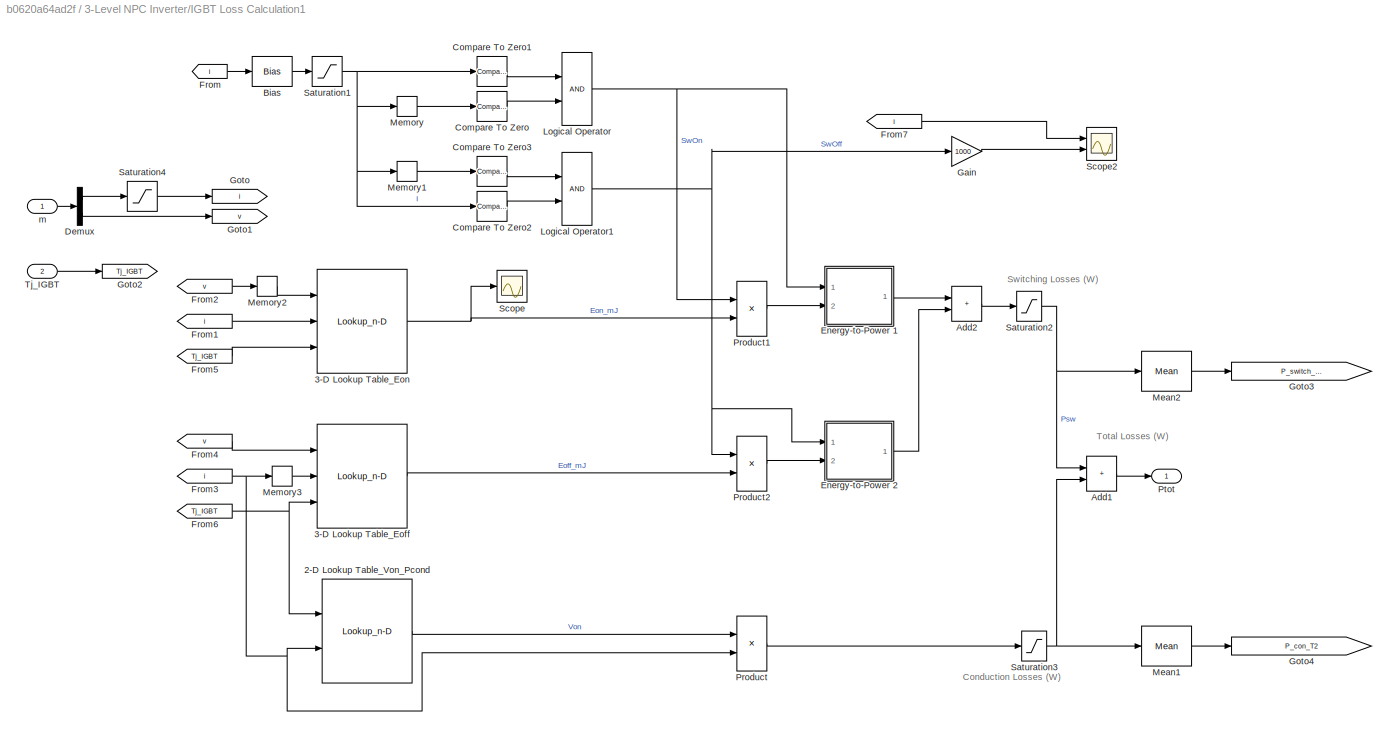
BLOCK [SubSystem] 3-Level NPC Inverter/IGBT Loss Calculation1
  Ports = [2, 1]
  RequestExecContextInheritance = off
BLOCK [Lookup_n-D] 3-Level NPC Inverter/IGBT Loss Calculation1/2-D Lookup Table_Von_Pcond
  BreakpointsForDimension1 = Cond_Loss_IGBT.Tj
  BreakpointsForDimension2 = Cond_Loss_IGBT.Ic
  BreakpointsForDimension3 = Page_Temp_C
  InputPortMap = u0,u1
  Ports = [2, 1]
  RndMeth = Simplest
  Table = Cond_Loss_IGBT.Vce
BLOCK [Lookup_n-D] 3-Level NPC Inverter/IGBT Loss Calculation1/3-D Lookup Table_Eoff
  BreakpointsForDimension1 = TurnoffIGBT.Vcc_Esw_Off
  BreakpointsForDimension2 = TurnoffIGBT.Ic
  BreakpointsForDimension3 = TurnoffIGBT.Tj
  InputPortMap = u0,u1,u2
  NumberOfTableDimensions = 3
  Ports = [3, 1]
  RndMeth = Simplest
  Table = TurnoffIGBT.Esw_Off
BLOCK [Lookup_n-D] 3-Level NPC Inverter/IGBT Loss Calculation1/3-D Lookup Table_Eon
  BreakpointsForDimension1 = TurnonIGBT.Vcc_Esw_On
  BreakpointsForDimension2 = TurnonIGBT.Ic
  BreakpointsForDimension3 = TurnonIGBT.Tj
  InputPortMap = u0,u1,u2
  NumberOfTableDimensions = 3
  Ports = [3, 1]
  RndMeth = Simplest
  Table = TurnonIGBT.Esw_On
BLOCK [Sum] 3-Level NPC Inverter/IGBT Loss Calculation1/Add1
  IconShape = rectangular
  Ports = [2, 1]
BLOCK [Sum] 3-Level NPC Inverter/IGBT Loss Calculation1/Add2
  IconShape = rectangular
  Ports = [2, 1]
BLOCK [Bias] 3-Level NPC Inverter/IGBT Loss Calculation1/Bias
  Bias = -1e-3
  SaturateOnIntegerOverflow = off
BLOCK [Reference] 3-Level NPC Inverter/IGBT Loss Calculation1/Compare To Zero  REF=simulink/Logic and Bit
Operations/Compare
To Zero
  Ports = [1, 1]
  SourceBlock = simulink/Logic and Bit\nOperations/Compare\nTo Zero
  SourceProductBaseCode = SL
  SourceType = Compare To Zero
BLOCK [Reference] 3-Level NPC Inverter/IGBT Loss Calculation1/Compare To Zero1  REF=simulink/Logic and Bit
Operations/Compare
To Zero
  Ports = [1, 1]
  SourceBlock = simulink/Logic and Bit\nOperations/Compare\nTo Zero
  SourceProductBaseCode = SL
  SourceType = Compare To Zero
BLOCK [Reference] 3-Level NPC Inverter/IGBT Loss Calculation1/Compare To Zero2  REF=simulink/Logic and Bit
Operations/Compare
To Zero
  Ports = [1, 1]
  SourceBlock = simulink/Logic and Bit\nOperations/Compare\nTo Zero
  SourceProductBaseCode = SL
  SourceType = Compare To Zero
BLOCK [Reference] 3-Level NPC Inverter/IGBT Loss Calculation1/Compare To Zero3  REF=simulink/Logic and Bit
Operations/Compare
To Zero
  Ports = [1, 1]
  SourceBlock = simulink/Logic and Bit\nOperations/Compare\nTo Zero
  SourceProductBaseCode = SL
  SourceType = Compare To Zero
BLOCK [Demux] 3-Level NPC Inverter/IGBT Loss Calculation1/Demux
  Outputs = 2
  Ports = [1, 2]
BLOCK [SubSystem] 3-Level NPC Inverter/IGBT Loss Calculation1/Energy-to-Power 1
  Ports = [2, 1]
  RequestExecContextInheritance = off
BLOCK [Constant] 3-Level NPC Inverter/IGBT Loss Calculation1/Energy-to-Power 1/Constant2
BLOCK [Constant] 3-Level NPC Inverter/IGBT Loss Calculation1/Energy-to-Power 1/Constant3
  Value = 0
BLOCK [Inport] 3-Level NPC Inverter/IGBT Loss Calculation1/Energy-to-Power 1/E_mJ
  NameLocation = top
  Port = 2
BLOCK [Reference] 3-Level NPC Inverter/IGBT Loss Calculation1/Energy-to-Power 1/Monostable  REF=spsMonostableLib/Monostable
  Ports = [1, 1]
  SourceBlock = spsMonostableLib/Monostable
  SourceProductBaseCode = PS
  SourceType = Monostable
BLOCK [Outport] 3-Level NPC Inverter/IGBT Loss Calculation1/Energy-to-Power 1/P_W
  VectorParamsAs1DForOutWhenUnconnected = off
BLOCK [Product] 3-Level NPC Inverter/IGBT Loss Calculation1/Energy-to-Power 1/Product1
  Ports = [2, 1]
  RndMeth = Zero
BLOCK [Reference] 3-Level NPC Inverter/IGBT Loss Calculation1/Energy-to-Power 1/Sample and Hold  REF=spsSampleandHoldLib/Sample and
Hold
  Ports = [2, 1]
  SourceBlock = spsSampleandHoldLib/Sample and\nHold
  SourceProductBaseCode = PS
  SourceType = Sample and Hold
BLOCK [Switch] 3-Level NPC Inverter/IGBT Loss Calculation1/Energy-to-Power 1/Switch1
  Criteria = u2 ~= 0
  InputSameDT = off
  SaturateOnIntegerOverflow = off
BLOCK [Inport] 3-Level NPC Inverter/IGBT Loss Calculation1/Energy-to-Power 1/Trig
BLOCK [Gain] 3-Level NPC Inverter/IGBT Loss Calculation1/Energy-to-Power 1/gain
  Gain = 1e-3/(ceil(PulseDuration/Ts)*Ts)
BLOCK [SubSystem] 3-Level NPC Inverter/IGBT Loss Calculation1/Energy-to-Power 2
  Ports = [2, 1]
  RequestExecContextInheritance = off
BLOCK [Constant] 3-Level NPC Inverter/IGBT Loss Calculation1/Energy-to-Power 2/Constant2
BLOCK [Constant] 3-Level NPC Inverter/IGBT Loss Calculation1/Energy-to-Power 2/Constant3
  Value = 0
BLOCK [Inport] 3-Level NPC Inverter/IGBT Loss Calculation1/Energy-to-Power 2/E_mJ
  NameLocation = top
  Port = 2
BLOCK [Reference] 3-Level NPC Inverter/IGBT Loss Calculation1/Energy-to-Power 2/Monostable  REF=spsMonostableLib/Monostable
  Ports = [1, 1]
  SourceBlock = spsMonostableLib/Monostable
  SourceProductBaseCode = PS
  SourceType = Monostable
BLOCK [Outport] 3-Level NPC Inverter/IGBT Loss Calculation1/Energy-to-Power 2/P_W
  VectorParamsAs1DForOutWhenUnconnected = off
BLOCK [Product] 3-Level NPC Inverter/IGBT Loss Calculation1/Energy-to-Power 2/Product1
  Ports = [2, 1]
  RndMeth = Zero
BLOCK [Reference] 3-Level NPC Inverter/IGBT Loss Calculation1/Energy-to-Power 2/Sample and Hold  REF=spsSampleandHoldLib/Sample and
Hold
  Ports = [2, 1]
  SourceBlock = spsSampleandHoldLib/Sample and\nHold
  SourceProductBaseCode = PS
  SourceType = Sample and Hold
BLOCK [Switch] 3-Level NPC Inverter/IGBT Loss Calculation1/Energy-to-Power 2/Switch1
  Criteria = u2 ~= 0
  InputSameDT = off
  SaturateOnIntegerOverflow = off
BLOCK [Inport] 3-Level NPC Inverter/IGBT Loss Calculation1/Energy-to-Power 2/Trig
BLOCK [Gain] 3-Level NPC Inverter/IGBT Loss Calculation1/Energy-to-Power 2/gain
  Gain = 1e-3/(ceil(PulseDuration/Ts)*Ts)
BLOCK [From] 3-Level NPC Inverter/IGBT Loss Calculation1/From
  GotoTag = i
BLOCK [From] 3-Level NPC Inverter/IGBT Loss Calculation1/From1
  GotoTag = i
BLOCK [From] 3-Level NPC Inverter/IGBT Loss Calculation1/From2
  GotoTag = v
BLOCK [From] 3-Level NPC Inverter/IGBT Loss Calculation1/From3
  GotoTag = i
BLOCK [From] 3-Level NPC Inverter/IGBT Loss Calculation1/From4
  GotoTag = v
BLOCK [From] 3-Level NPC Inverter/IGBT Loss Calculation1/From5
  GotoTag = Tj_IGBT
BLOCK [From] 3-Level NPC Inverter/IGBT Loss Calculation1/From6
  GotoTag = Tj_IGBT
BLOCK [From] 3-Level NPC Inverter/IGBT Loss Calculation1/From7
  GotoTag = i
BLOCK [Gain] 3-Level NPC Inverter/IGBT Loss Calculation1/Gain
  Gain = 1000
BLOCK [Goto] 3-Level NPC Inverter/IGBT Loss Calculation1/Goto
  GotoTag = i
BLOCK [Goto] 3-Level NPC Inverter/IGBT Loss Calculation1/Goto1
  GotoTag = v
BLOCK [Goto] 3-Level NPC Inverter/IGBT Loss Calculation1/Goto2
  GotoTag = Tj_IGBT
BLOCK [Goto] 3-Level NPC Inverter/IGBT Loss Calculation1/Goto3
  GotoTag = P_switch_T2
  TagVisibility = global
BLOCK [Goto] 3-Level NPC Inverter/IGBT Loss Calculation1/Goto4
  GotoTag = P_con_T2
  TagVisibility = global
BLOCK [Logic] 3-Level NPC Inverter/IGBT Loss Calculation1/Logical Operator
  AllPortsSameDT = off
  OutDataTypeStr = float('double')
  Ports = [2, 1]
BLOCK [Logic] 3-Level NPC Inverter/IGBT Loss Calculation1/Logical Operator1
  AllPortsSameDT = off
  OutDataTypeStr = float('double')
  Ports = [2, 1]
BLOCK [Reference] 3-Level NPC Inverter/IGBT Loss Calculation1/Mean1  REF=spsMeanLib/Mean
  Ports = [1, 1]
  SourceBlock = spsMeanLib/Mean
  SourceProductBaseCode = PS
  SourceType = Mean
BLOCK [Reference] 3-Level NPC Inverter/IGBT Loss Calculation1/Mean2  REF=spsMeanLib/Mean
  Ports = [1, 1]
  SourceBlock = spsMeanLib/Mean
  SourceProductBaseCode = PS
  SourceType = Mean
BLOCK [Memory] 3-Level NPC Inverter/IGBT Loss Calculation1/Memory
BLOCK [Memory] 3-Level NPC Inverter/IGBT Loss Calculation1/Memory1
BLOCK [Memory] 3-Level NPC Inverter/IGBT Loss Calculation1/Memory2
BLOCK [Memory] 3-Level NPC Inverter/IGBT Loss Calculation1/Memory3
BLOCK [Product] 3-Level NPC Inverter/IGBT Loss Calculation1/Product
  Ports = [2, 1]
  RndMeth = Zero
BLOCK [Product] 3-Level NPC Inverter/IGBT Loss Calculation1/Product1
  Ports = [2, 1]
  RndMeth = Zero
BLOCK [Product] 3-Level NPC Inverter/IGBT Loss Calculation1/Product2
  Ports = [2, 1]
  RndMeth = Zero
BLOCK [Outport] 3-Level NPC Inverter/IGBT Loss Calculation1/Ptot
  VectorParamsAs1DForOutWhenUnconnected = off
BLOCK [Saturate] 3-Level NPC Inverter/IGBT Loss Calculation1/Saturation1
  LowerLimit = 0
  UpperLimit = inf
BLOCK [Saturate] 3-Level NPC Inverter/IGBT Loss Calculation1/Saturation2
  LowerLimit = 0
  UpperLimit = inf
BLOCK [Saturate] 3-Level NPC Inverter/IGBT Loss Calculation1/Saturation3
  LowerLimit = 0
  UpperLimit = inf
BLOCK [Saturate] 3-Level NPC Inverter/IGBT Loss Calculation1/Saturation4
  LowerLimit = 0
  UpperLimit = 1e6
BLOCK [Scope] 3-Level NPC Inverter/IGBT Loss Calculation1/Scope
  Floating = off
  NumInputPorts = 1
  Ports = [1]
  ScopeSpecificationString = Simulink.scopes.TimeScopeBlockCfg('CurrentConfiguration', extmgr.ConfigurationSet(extmgr.Configuration('Core','General UI',true),extmgr.Configuration('Core','Source UI',true),extmgr.Configuration('Sources','WiredSimulink',true,'DataLoggingVariableName','ScopeData1'),extmgr.Configuration('Visuals','Time Domain',true,'SerializedDisplays',{struct('MinYLimReal','-0.6872','MaxYLimReal','6.13056','YLabe...<+1392ch>
BLOCK [Scope] 3-Level NPC Inverter/IGBT Loss Calculation1/Scope2
  Floating = off
  NumInputPorts = 2
  Ports = [2]
  ScopeSpecificationString = Simulink.scopes.TimeScopeBlockCfg('CurrentConfiguration', extmgr.ConfigurationSet(extmgr.Configuration('Core','General UI',true),extmgr.Configuration('Core','Source UI',true),extmgr.Configuration('Sources','WiredSimulink',true,'DataLoggingVariableName','ScopeData3'),extmgr.Configuration('Visuals','Time Domain',true,'SerializedDisplays',{struct('MinYLimReal','-23.6435','MaxYLimReal','17.54909','YLa...<+1451ch>
BLOCK [Inport] 3-Level NPC Inverter/IGBT Loss Calculation1/Tj_IGBT
  Port = 2
BLOCK [Inport] 3-Level NPC Inverter/IGBT Loss Calculation1/m
BLOCK [SubSystem] 3-Level NPC Inverter/IGBT Loss Calculation2
  Ports = [2, 1]
  RequestExecContextInheritance = off
BLOCK [Lookup_n-D] 3-Level NPC Inverter/IGBT Loss Calculation2/2-D Lookup Table_Von_Pcond
  BreakpointsForDimension1 = Cond_Loss_IGBT.Tj
  BreakpointsForDimension2 = Cond_Loss_IGBT.Ic
  BreakpointsForDimension3 = Page_Temp_C
  InputPortMap = u0,u1
  Ports = [2, 1]
  RndMeth = Simplest
  Table = Cond_Loss_IGBT.Vce
BLOCK [Lookup_n-D] 3-Level NPC Inverter/IGBT Loss Calculation2/3-D Lookup Table_Eoff
  BreakpointsForDimension1 = TurnoffIGBT.Vcc_Esw_Off
  BreakpointsForDimension2 = TurnoffIGBT.Ic
  BreakpointsForDimension3 = TurnoffIGBT.Tj
  InputPortMap = u0,u1,u2
  NumberOfTableDimensions = 3
  Ports = [3, 1]
  RndMeth = Simplest
  Table = TurnoffIGBT.Esw_Off
BLOCK [Lookup_n-D] 3-Level NPC Inverter/IGBT Loss Calculation2/3-D Lookup Table_Eon
  BreakpointsForDimension1 = TurnonIGBT.Vcc_Esw_On
  BreakpointsForDimension2 = TurnonIGBT.Ic
  BreakpointsForDimension3 = TurnonIGBT.Tj
  InputPortMap = u0,u1,u2
  NumberOfTableDimensions = 3
  Ports = [3, 1]
  RndMeth = Simplest
  Table = TurnonIGBT.Esw_On
BLOCK [Sum] 3-Level NPC Inverter/IGBT Loss Calculation2/Add1
  IconShape = rectangular
  Ports = [2, 1]
BLOCK [Sum] 3-Level NPC Inverter/IGBT Loss Calculation2/Add2
  IconShape = rectangular
  Ports = [2, 1]
BLOCK [Bias] 3-Level NPC Inverter/IGBT Loss Calculation2/Bias
  Bias = -1e-3
  SaturateOnIntegerOverflow = off
BLOCK [Reference] 3-Level NPC Inverter/IGBT Loss Calculation2/Compare To Zero  REF=simulink/Logic and Bit
Operations/Compare
To Zero
  Ports = [1, 1]
  SourceBlock = simulink/Logic and Bit\nOperations/Compare\nTo Zero
  SourceProductBaseCode = SL
  SourceType = Compare To Zero
BLOCK [Reference] 3-Level NPC Inverter/IGBT Loss Calculation2/Compare To Zero1  REF=simulink/Logic and Bit
Operations/Compare
To Zero
  Ports = [1, 1]
  SourceBlock = simulink/Logic and Bit\nOperations/Compare\nTo Zero
  SourceProductBaseCode = SL
  SourceType = Compare To Zero
BLOCK [Reference] 3-Level NPC Inverter/IGBT Loss Calculation2/Compare To Zero2  REF=simulink/Logic and Bit
Operations/Compare
To Zero
  Ports = [1, 1]
  SourceBlock = simulink/Logic and Bit\nOperations/Compare\nTo Zero
  SourceProductBaseCode = SL
  SourceType = Compare To Zero
BLOCK [Reference] 3-Level NPC Inverter/IGBT Loss Calculation2/Compare To Zero3  REF=simulink/Logic and Bit
Operations/Compare
To Zero
  Ports = [1, 1]
  SourceBlock = simulink/Logic and Bit\nOperations/Compare\nTo Zero
  SourceProductBaseCode = SL
  SourceType = Compare To Zero
BLOCK [Demux] 3-Level NPC Inverter/IGBT Loss Calculation2/Demux
  Outputs = 2
  Ports = [1, 2]
BLOCK [SubSystem] 3-Level NPC Inverter/IGBT Loss Calculation2/Energy-to-Power 1
  Ports = [2, 1]
  RequestExecContextInheritance = off
BLOCK [Constant] 3-Level NPC Inverter/IGBT Loss Calculation2/Energy-to-Power 1/Constant2
BLOCK [Constant] 3-Level NPC Inverter/IGBT Loss Calculation2/Energy-to-Power 1/Constant3
  Value = 0
BLOCK [Inport] 3-Level NPC Inverter/IGBT Loss Calculation2/Energy-to-Power 1/E_mJ
  NameLocation = top
  Port = 2
BLOCK [Reference] 3-Level NPC Inverter/IGBT Loss Calculation2/Energy-to-Power 1/Monostable  REF=spsMonostableLib/Monostable
  Ports = [1, 1]
  SourceBlock = spsMonostableLib/Monostable
  SourceProductBaseCode = PS
  SourceType = Monostable
BLOCK [Outport] 3-Level NPC Inverter/IGBT Loss Calculation2/Energy-to-Power 1/P_W
  VectorParamsAs1DForOutWhenUnconnected = off
BLOCK [Product] 3-Level NPC Inverter/IGBT Loss Calculation2/Energy-to-Power 1/Product1
  Ports = [2, 1]
  RndMeth = Zero
BLOCK [Reference] 3-Level NPC Inverter/IGBT Loss Calculation2/Energy-to-Power 1/Sample and Hold  REF=spsSampleandHoldLib/Sample and
Hold
  Ports = [2, 1]
  SourceBlock = spsSampleandHoldLib/Sample and\nHold
  SourceProductBaseCode = PS
  SourceType = Sample and Hold
BLOCK [Switch] 3-Level NPC Inverter/IGBT Loss Calculation2/Energy-to-Power 1/Switch1
  Criteria = u2 ~= 0
  InputSameDT = off
  SaturateOnIntegerOverflow = off
BLOCK [Inport] 3-Level NPC Inverter/IGBT Loss Calculation2/Energy-to-Power 1/Trig
BLOCK [Gain] 3-Level NPC Inverter/IGBT Loss Calculation2/Energy-to-Power 1/gain
  Gain = 1e-3/(ceil(PulseDuration/Ts)*Ts)
BLOCK [SubSystem] 3-Level NPC Inverter/IGBT Loss Calculation2/Energy-to-Power 2
  Ports = [2, 1]
  RequestExecContextInheritance = off
BLOCK [Constant] 3-Level NPC Inverter/IGBT Loss Calculation2/Energy-to-Power 2/Constant2
BLOCK [Constant] 3-Level NPC Inverter/IGBT Loss Calculation2/Energy-to-Power 2/Constant3
  Value = 0
BLOCK [Inport] 3-Level NPC Inverter/IGBT Loss Calculation2/Energy-to-Power 2/E_mJ
  NameLocation = top
  Port = 2
BLOCK [Reference] 3-Level NPC Inverter/IGBT Loss Calculation2/Energy-to-Power 2/Monostable  REF=spsMonostableLib/Monostable
  Ports = [1, 1]
  SourceBlock = spsMonostableLib/Monostable
  SourceProductBaseCode = PS
  SourceType = Monostable
BLOCK [Outport] 3-Level NPC Inverter/IGBT Loss Calculation2/Energy-to-Power 2/P_W
  VectorParamsAs1DForOutWhenUnconnected = off
BLOCK [Product] 3-Level NPC Inverter/IGBT Loss Calculation2/Energy-to-Power 2/Product1
  Ports = [2, 1]
  RndMeth = Zero
BLOCK [Reference] 3-Level NPC Inverter/IGBT Loss Calculation2/Energy-to-Power 2/Sample and Hold  REF=spsSampleandHoldLib/Sample and
Hold
  Ports = [2, 1]
  SourceBlock = spsSampleandHoldLib/Sample and\nHold
  SourceProductBaseCode = PS
  SourceType = Sample and Hold
BLOCK [Switch] 3-Level NPC Inverter/IGBT Loss Calculation2/Energy-to-Power 2/Switch1
  Criteria = u2 ~= 0
  InputSameDT = off
  SaturateOnIntegerOverflow = off
BLOCK [Inport] 3-Level NPC Inverter/IGBT Loss Calculation2/Energy-to-Power 2/Trig
BLOCK [Gain] 3-Level NPC Inverter/IGBT Loss Calculation2/Energy-to-Power 2/gain
  Gain = 1e-3/(ceil(PulseDuration/Ts)*Ts)
BLOCK [From] 3-Level NPC Inverter/IGBT Loss Calculation2/From
  GotoTag = i
BLOCK [From] 3-Level NPC Inverter/IGBT Loss Calculation2/From1
  GotoTag = i
BLOCK [From] 3-Level NPC Inverter/IGBT Loss Calculation2/From2
  GotoTag = v
BLOCK [From] 3-Level NPC Inverter/IGBT Loss Calculation2/From3
  GotoTag = i
BLOCK [From] 3-Level NPC Inverter/IGBT Loss Calculation2/From4
  GotoTag = v
BLOCK [From] 3-Level NPC Inverter/IGBT Loss Calculation2/From5
  GotoTag = Tj_IGBT
BLOCK [From] 3-Level NPC Inverter/IGBT Loss Calculation2/From6
  GotoTag = Tj_IGBT
BLOCK [Goto] 3-Level NPC Inverter/IGBT Loss Calculation2/Goto
  GotoTag = i
BLOCK [Goto] 3-Level NPC Inverter/IGBT Loss Calculation2/Goto1
  GotoTag = v
BLOCK [Goto] 3-Level NPC Inverter/IGBT Loss Calculation2/Goto2
  GotoTag = Tj_IGBT
BLOCK [Goto] 3-Level NPC Inverter/IGBT Loss Calculation2/Goto3
  GotoTag = P_switch_T3
  TagVisibility = global
BLOCK [Goto] 3-Level NPC Inverter/IGBT Loss Calculation2/Goto4
  GotoTag = P_con_T3
  TagVisibility = global
BLOCK [Goto] 3-Level NPC Inverter/IGBT Loss Calculation2/Goto5
  GotoTag = Eon_mj
  TagVisibility = global
BLOCK [Goto] 3-Level NPC Inverter/IGBT Loss Calculation2/Goto6
  GotoTag = Eoff_mj
  TagVisibility = global
BLOCK [Goto] 3-Level NPC Inverter/IGBT Loss Calculation2/Goto7
  GotoTag = Power_off
  TagVisibility = global
BLOCK [Logic] 3-Level NPC Inverter/IGBT Loss Calculation2/Logical Operator
  AllPortsSameDT = off
  OutDataTypeStr = float('double')
  Ports = [2, 1]
BLOCK [Logic] 3-Level NPC Inverter/IGBT Loss Calculation2/Logical Operator1
  AllPortsSameDT = off
  OutDataTypeStr = float('double')
  Ports = [2, 1]
BLOCK [Reference] 3-Level NPC Inverter/IGBT Loss Calculation2/Mean1  REF=spsMeanLib/Mean
  Ports = [1, 1]
  SourceBlock = spsMeanLib/Mean
  SourceProductBaseCode = PS
  SourceType = Mean
BLOCK [Reference] 3-Level NPC Inverter/IGBT Loss Calculation2/Mean2  REF=spsMeanLib/Mean
  Ports = [1, 1]
  SourceBlock = spsMeanLib/Mean
  SourceProductBaseCode = PS
  SourceType = Mean
BLOCK [Memory] 3-Level NPC Inverter/IGBT Loss Calculation2/Memory
BLOCK [Memory] 3-Level NPC Inverter/IGBT Loss Calculation2/Memory1
BLOCK [Memory] 3-Level NPC Inverter/IGBT Loss Calculation2/Memory2
BLOCK [Memory] 3-Level NPC Inverter/IGBT Loss Calculation2/Memory3
BLOCK [Product] 3-Level NPC Inverter/IGBT Loss Calculation2/Product
  Ports = [2, 1]
  RndMeth = Zero
BLOCK [Product] 3-Level NPC Inverter/IGBT Loss Calculation2/Product1
  Ports = [2, 1]
  RndMeth = Zero
BLOCK [Product] 3-Level NPC Inverter/IGBT Loss Calculation2/Product2
  Ports = [2, 1]
  RndMeth = Zero
BLOCK [Outport] 3-Level NPC Inverter/IGBT Loss Calculation2/Ptot
  VectorParamsAs1DForOutWhenUnconnected = off
BLOCK [Saturate] 3-Level NPC Inverter/IGBT Loss Calculation2/Saturation1
  LowerLimit = 0
  UpperLimit = inf
BLOCK [Saturate] 3-Level NPC Inverter/IGBT Loss Calculation2/Saturation2
  LowerLimit = 0
  UpperLimit = inf
BLOCK [Saturate] 3-Level NPC Inverter/IGBT Loss Calculation2/Saturation3
  LowerLimit = 0
  UpperLimit = inf
BLOCK [Saturate] 3-Level NPC Inverter/IGBT Loss Calculation2/Saturation4
  LowerLimit = 0
  UpperLimit = 1e6
BLOCK [Scope] 3-Level NPC Inverter/IGBT Loss Calculation2/Scope
  Floating = off
  NumInputPorts = 2
  Ports = [2]
  ScopeSpecificationString = Simulink.scopes.TimeScopeBlockCfg('CurrentConfiguration', extmgr.ConfigurationSet(extmgr.Configuration('Core','General UI',true),extmgr.Configuration('Core','Source UI',true),extmgr.Configuration('Sources','WiredSimulink',true,'DataLoggingVariableName','ScopeData1'),extmgr.Configuration('Visuals','Time Domain',true,'SerializedDisplays',{struct('MinYLimReal','-899.37549','MaxYLimReal','8094.37838',...<+1511ch>
BLOCK [Inport] 3-Level NPC Inverter/IGBT Loss Calculation2/Tj_IGBT
  Port = 2
BLOCK [Inport] 3-Level NPC Inverter/IGBT Loss Calculation2/m
BLOCK [SubSystem] 3-Level NPC Inverter/IGBT Loss Calculation3
  Ports = [2, 1]
  RequestExecContextInheritance = off
BLOCK [Lookup_n-D] 3-Level NPC Inverter/IGBT Loss Calculation3/2-D Lookup Table_Von_Pcond
  BreakpointsForDimension1 = Cond_Loss_IGBT.Tj
  BreakpointsForDimension2 = Cond_Loss_IGBT.Ic
  BreakpointsForDimension3 = Page_Temp_C
  InputPortMap = u0,u1
  Ports = [2, 1]
  RndMeth = Simplest
  Table = Cond_Loss_IGBT.Vce
BLOCK [Lookup_n-D] 3-Level NPC Inverter/IGBT Loss Calculation3/3-D Lookup Table_Eoff
  BreakpointsForDimension1 = TurnoffIGBT.Vcc_Esw_Off
  BreakpointsForDimension2 = TurnoffIGBT.Ic
  BreakpointsForDimension3 = TurnoffIGBT.Tj
  InputPortMap = u0,u1,u2
  NumberOfTableDimensions = 3
  Ports = [3, 1]
  RndMeth = Simplest
  Table = TurnoffIGBT.Esw_Off
BLOCK [Lookup_n-D] 3-Level NPC Inverter/IGBT Loss Calculation3/3-D Lookup Table_Eon
  BreakpointsForDimension1 = TurnonIGBT.Vcc_Esw_On
  BreakpointsForDimension2 = TurnonIGBT.Ic
  BreakpointsForDimension3 = TurnonIGBT.Tj
  InputPortMap = u0,u1,u2
  NumberOfTableDimensions = 3
  Ports = [3, 1]
  RndMeth = Simplest
  Table = TurnonIGBT.Esw_On
BLOCK [Sum] 3-Level NPC Inverter/IGBT Loss Calculation3/Add1
  IconShape = rectangular
  Ports = [2, 1]
BLOCK [Sum] 3-Level NPC Inverter/IGBT Loss Calculation3/Add2
  IconShape = rectangular
  Ports = [2, 1]
BLOCK [Bias] 3-Level NPC Inverter/IGBT Loss Calculation3/Bias
  Bias = -1e-3
  SaturateOnIntegerOverflow = off
BLOCK [Reference] 3-Level NPC Inverter/IGBT Loss Calculation3/Compare To Zero  REF=simulink/Logic and Bit
Operations/Compare
To Zero
  Ports = [1, 1]
  SourceBlock = simulink/Logic and Bit\nOperations/Compare\nTo Zero
  SourceProductBaseCode = SL
  SourceType = Compare To Zero
BLOCK [Reference] 3-Level NPC Inverter/IGBT Loss Calculation3/Compare To Zero1  REF=simulink/Logic and Bit
Operations/Compare
To Zero
  Ports = [1, 1]
  SourceBlock = simulink/Logic and Bit\nOperations/Compare\nTo Zero
  SourceProductBaseCode = SL
  SourceType = Compare To Zero
BLOCK [Reference] 3-Level NPC Inverter/IGBT Loss Calculation3/Compare To Zero2  REF=simulink/Logic and Bit
Operations/Compare
To Zero
  Ports = [1, 1]
  SourceBlock = simulink/Logic and Bit\nOperations/Compare\nTo Zero
  SourceProductBaseCode = SL
  SourceType = Compare To Zero
BLOCK [Reference] 3-Level NPC Inverter/IGBT Loss Calculation3/Compare To Zero3  REF=simulink/Logic and Bit
Operations/Compare
To Zero
  Ports = [1, 1]
  SourceBlock = simulink/Logic and Bit\nOperations/Compare\nTo Zero
  SourceProductBaseCode = SL
  SourceType = Compare To Zero
BLOCK [Demux] 3-Level NPC Inverter/IGBT Loss Calculation3/Demux
  Outputs = 2
  Ports = [1, 2]
BLOCK [SubSystem] 3-Level NPC Inverter/IGBT Loss Calculation3/Energy-to-Power 1
  Ports = [2, 1]
  RequestExecContextInheritance = off
BLOCK [Constant] 3-Level NPC Inverter/IGBT Loss Calculation3/Energy-to-Power 1/Constant2
BLOCK [Constant] 3-Level NPC Inverter/IGBT Loss Calculation3/Energy-to-Power 1/Constant3
  Value = 0
BLOCK [Inport] 3-Level NPC Inverter/IGBT Loss Calculation3/Energy-to-Power 1/E_mJ
  NameLocation = top
  Port = 2
BLOCK [Reference] 3-Level NPC Inverter/IGBT Loss Calculation3/Energy-to-Power 1/Monostable  REF=spsMonostableLib/Monostable
  Ports = [1, 1]
  SourceBlock = spsMonostableLib/Monostable
  SourceProductBaseCode = PS
  SourceType = Monostable
BLOCK [Outport] 3-Level NPC Inverter/IGBT Loss Calculation3/Energy-to-Power 1/P_W
  VectorParamsAs1DForOutWhenUnconnected = off
BLOCK [Product] 3-Level NPC Inverter/IGBT Loss Calculation3/Energy-to-Power 1/Product1
  Ports = [2, 1]
  RndMeth = Zero
BLOCK [Reference] 3-Level NPC Inverter/IGBT Loss Calculation3/Energy-to-Power 1/Sample and Hold  REF=spsSampleandHoldLib/Sample and
Hold
  Ports = [2, 1]
  SourceBlock = spsSampleandHoldLib/Sample and\nHold
  SourceProductBaseCode = PS
  SourceType = Sample and Hold
BLOCK [Switch] 3-Level NPC Inverter/IGBT Loss Calculation3/Energy-to-Power 1/Switch1
  Criteria = u2 ~= 0
  InputSameDT = off
  SaturateOnIntegerOverflow = off
BLOCK [Inport] 3-Level NPC Inverter/IGBT Loss Calculation3/Energy-to-Power 1/Trig
BLOCK [Gain] 3-Level NPC Inverter/IGBT Loss Calculation3/Energy-to-Power 1/gain
  Gain = 1e-3/(ceil(PulseDuration/Ts)*Ts)
BLOCK [SubSystem] 3-Level NPC Inverter/IGBT Loss Calculation3/Energy-to-Power 2
  Ports = [2, 1]
  RequestExecContextInheritance = off
BLOCK [Constant] 3-Level NPC Inverter/IGBT Loss Calculation3/Energy-to-Power 2/Constant2
BLOCK [Constant] 3-Level NPC Inverter/IGBT Loss Calculation3/Energy-to-Power 2/Constant3
  Value = 0
BLOCK [Inport] 3-Level NPC Inverter/IGBT Loss Calculation3/Energy-to-Power 2/E_mJ
  NameLocation = top
  Port = 2
BLOCK [Reference] 3-Level NPC Inverter/IGBT Loss Calculation3/Energy-to-Power 2/Monostable  REF=spsMonostableLib/Monostable
  Ports = [1, 1]
  SourceBlock = spsMonostableLib/Monostable
  SourceProductBaseCode = PS
  SourceType = Monostable
BLOCK [Outport] 3-Level NPC Inverter/IGBT Loss Calculation3/Energy-to-Power 2/P_W
  VectorParamsAs1DForOutWhenUnconnected = off
BLOCK [Product] 3-Level NPC Inverter/IGBT Loss Calculation3/Energy-to-Power 2/Product1
  Ports = [2, 1]
  RndMeth = Zero
BLOCK [Reference] 3-Level NPC Inverter/IGBT Loss Calculation3/Energy-to-Power 2/Sample and Hold  REF=spsSampleandHoldLib/Sample and
Hold
  Ports = [2, 1]
  SourceBlock = spsSampleandHoldLib/Sample and\nHold
  SourceProductBaseCode = PS
  SourceType = Sample and Hold
BLOCK [Switch] 3-Level NPC Inverter/IGBT Loss Calculation3/Energy-to-Power 2/Switch1
  Criteria = u2 ~= 0
  InputSameDT = off
  SaturateOnIntegerOverflow = off
BLOCK [Inport] 3-Level NPC Inverter/IGBT Loss Calculation3/Energy-to-Power 2/Trig
BLOCK [Gain] 3-Level NPC Inverter/IGBT Loss Calculation3/Energy-to-Power 2/gain
  Gain = 1e-3/(ceil(PulseDuration/Ts)*Ts)
BLOCK [From] 3-Level NPC Inverter/IGBT Loss Calculation3/From
  GotoTag = i
BLOCK [From] 3-Level NPC Inverter/IGBT Loss Calculation3/From1
  GotoTag = i
BLOCK [From] 3-Level NPC Inverter/IGBT Loss Calculation3/From2
  GotoTag = v
BLOCK [From] 3-Level NPC Inverter/IGBT Loss Calculation3/From3
  GotoTag = i
BLOCK [From] 3-Level NPC Inverter/IGBT Loss Calculation3/From4
  GotoTag = v
BLOCK [From] 3-Level NPC Inverter/IGBT Loss Calculation3/From5
  GotoTag = Tj_IGBT
BLOCK [From] 3-Level NPC Inverter/IGBT Loss Calculation3/From6
  GotoTag = Tj_IGBT
BLOCK [From] 3-Level NPC Inverter/IGBT Loss Calculation3/From7
  GotoTag = i
BLOCK [Gain] 3-Level NPC Inverter/IGBT Loss Calculation3/Gain
  Gain = 1000
BLOCK [Goto] 3-Level NPC Inverter/IGBT Loss Calculation3/Goto
  GotoTag = i
BLOCK [Goto] 3-Level NPC Inverter/IGBT Loss Calculation3/Goto1
  GotoTag = v
BLOCK [Goto] 3-Level NPC Inverter/IGBT Loss Calculation3/Goto2
  GotoTag = Tj_IGBT
BLOCK [Goto] 3-Level NPC Inverter/IGBT Loss Calculation3/Goto3
  GotoTag = P_switch_T4
  TagVisibility = global
BLOCK [Goto] 3-Level NPC Inverter/IGBT Loss Calculation3/Goto4
  GotoTag = P_con_T4
  TagVisibility = global
BLOCK [Logic] 3-Level NPC Inverter/IGBT Loss Calculation3/Logical Operator
  AllPortsSameDT = off
  OutDataTypeStr = float('double')
  Ports = [2, 1]
BLOCK [Logic] 3-Level NPC Inverter/IGBT Loss Calculation3/Logical Operator1
  AllPortsSameDT = off
  OutDataTypeStr = float('double')
  Ports = [2, 1]
BLOCK [Reference] 3-Level NPC Inverter/IGBT Loss Calculation3/Mean1  REF=spsMeanLib/Mean
  Ports = [1, 1]
  SourceBlock = spsMeanLib/Mean
  SourceProductBaseCode = PS
  SourceType = Mean
BLOCK [Reference] 3-Level NPC Inverter/IGBT Loss Calculation3/Mean2  REF=spsMeanLib/Mean
  Ports = [1, 1]
  SourceBlock = spsMeanLib/Mean
  SourceProductBaseCode = PS
  SourceType = Mean
BLOCK [Memory] 3-Level NPC Inverter/IGBT Loss Calculation3/Memory
BLOCK [Memory] 3-Level NPC Inverter/IGBT Loss Calculation3/Memory1
BLOCK [Memory] 3-Level NPC Inverter/IGBT Loss Calculation3/Memory2
BLOCK [Memory] 3-Level NPC Inverter/IGBT Loss Calculation3/Memory3
BLOCK [Product] 3-Level NPC Inverter/IGBT Loss Calculation3/Product
  Ports = [2, 1]
  RndMeth = Zero
BLOCK [Product] 3-Level NPC Inverter/IGBT Loss Calculation3/Product1
  Ports = [2, 1]
  RndMeth = Zero
BLOCK [Product] 3-Level NPC Inverter/IGBT Loss Calculation3/Product2
  Ports = [2, 1]
  RndMeth = Zero
BLOCK [Outport] 3-Level NPC Inverter/IGBT Loss Calculation3/Ptot
  VectorParamsAs1DForOutWhenUnconnected = off
BLOCK [Saturate] 3-Level NPC Inverter/IGBT Loss Calculation3/Saturation1
  LowerLimit = 0
  UpperLimit = inf
BLOCK [Saturate] 3-Level NPC Inverter/IGBT Loss Calculation3/Saturation2
  LowerLimit = 0
  UpperLimit = inf
BLOCK [Saturate] 3-Level NPC Inverter/IGBT Loss Calculation3/Saturation3
  LowerLimit = 0
  UpperLimit = inf
BLOCK [Saturate] 3-Level NPC Inverter/IGBT Loss Calculation3/Saturation4
  LowerLimit = 0
  UpperLimit = 1e6
BLOCK [Scope] 3-Level NPC Inverter/IGBT Loss Calculation3/Scope
  Floating = off
  NumInputPorts = 1
  Ports = [1]
  ScopeSpecificationString = Simulink.scopes.TimeScopeBlockCfg('CurrentConfiguration', extmgr.ConfigurationSet(extmgr.Configuration('Core','General UI',true),extmgr.Configuration('Core','Source UI',true),extmgr.Configuration('Sources','WiredSimulink',true,'DataLoggingVariableName','ScopeData1'),extmgr.Configuration('Visuals','Time Domain',true,'SerializedDisplays',{struct('MinYLimReal','-0.6872','MaxYLimReal','6.13056','YLabe...<+1392ch>
BLOCK [Scope] 3-Level NPC Inverter/IGBT Loss Calculation3/Scope2
  Floating = off
  NumInputPorts = 2
  Ports = [2]
  ScopeSpecificationString = Simulink.scopes.TimeScopeBlockCfg('CurrentConfiguration', extmgr.ConfigurationSet(extmgr.Configuration('Core','General UI',true),extmgr.Configuration('Core','Source UI',true),extmgr.Configuration('Sources','WiredSimulink',true,'DataLoggingVariableName','ScopeData3'),extmgr.Configuration('Visuals','Time Domain',true,'SerializedDisplays',{struct('MinYLimReal','-23.6435','MaxYLimReal','17.54909','YLa...<+1451ch>
BLOCK [Inport] 3-Level NPC Inverter/IGBT Loss Calculation3/Tj_IGBT
  Port = 2
BLOCK [Inport] 3-Level NPC Inverter/IGBT Loss Calculation3/m
BLOCK [Reference] 3-Level NPC Inverter/IGBT//Diode  REF=spsIGBTDiodeLib/IGBT//Diode
  NameLocation = left
  Ports = [1, 1, 0, 0, 0, 1, 1]
  SourceBlock = spsIGBTDiodeLib/IGBT//Diode
  SourceProductBaseCode = PS
  SourceType = IGBT/Diode
BLOCK [Reference] 3-Level NPC Inverter/IGBT//Diode1  REF=spsIGBTDiodeLib/IGBT//Diode
  NameLocation = left
  Ports = [1, 1, 0, 0, 0, 1, 1]
  SourceBlock = spsIGBTDiodeLib/IGBT//Diode
  SourceProductBaseCode = PS
  SourceType = IGBT/Diode
BLOCK [Reference] 3-Level NPC Inverter/IGBT//Diode10  REF=spsIGBTDiodeLib/IGBT//Diode
  NameLocation = left
  Ports = [1, 0, 0, 0, 0, 1, 1]
  SourceBlock = spsIGBTDiodeLib/IGBT//Diode
  SourceProductBaseCode = PS
  SourceType = IGBT/Diode
BLOCK [Reference] 3-Level NPC Inverter/IGBT//Diode11  REF=spsIGBTDiodeLib/IGBT//Diode
  NameLocation = left
  Ports = [1, 0, 0, 0, 0, 1, 1]
  SourceBlock = spsIGBTDiodeLib/IGBT//Diode
  SourceProductBaseCode = PS
  SourceType = IGBT/Diode
BLOCK [Reference] 3-Level NPC Inverter/IGBT//Diode2  REF=spsIGBTDiodeLib/IGBT//Diode
  NameLocation = left
  Ports = [1, 1, 0, 0, 0, 1, 1]
  SourceBlock = spsIGBTDiodeLib/IGBT//Diode
  SourceProductBaseCode = PS
  SourceType = IGBT/Diode
BLOCK [Reference] 3-Level NPC Inverter/IGBT//Diode3  REF=spsIGBTDiodeLib/IGBT//Diode
  NameLocation = left
  Ports = [1, 1, 0, 0, 0, 1, 1]
  SourceBlock = spsIGBTDiodeLib/IGBT//Diode
  SourceProductBaseCode = PS
  SourceType = IGBT/Diode
BLOCK [Reference] 3-Level NPC Inverter/IGBT//Diode4  REF=spsIGBTDiodeLib/IGBT//Diode
  NameLocation = left
  Ports = [1, 0, 0, 0, 0, 1, 1]
  SourceBlock = spsIGBTDiodeLib/IGBT//Diode
  SourceProductBaseCode = PS
  SourceType = IGBT/Diode
BLOCK [Reference] 3-Level NPC Inverter/IGBT//Diode5  REF=spsIGBTDiodeLib/IGBT//Diode
  NameLocation = left
  Ports = [1, 0, 0, 0, 0, 1, 1]
  SourceBlock = spsIGBTDiodeLib/IGBT//Diode
  SourceProductBaseCode = PS
  SourceType = IGBT/Diode
BLOCK [Reference] 3-Level NPC Inverter/IGBT//Diode6  REF=spsIGBTDiodeLib/IGBT//Diode
  NameLocation = left
  Ports = [1, 0, 0, 0, 0, 1, 1]
  SourceBlock = spsIGBTDiodeLib/IGBT//Diode
  SourceProductBaseCode = PS
  SourceType = IGBT/Diode
BLOCK [Reference] 3-Level NPC Inverter/IGBT//Diode7  REF=spsIGBTDiodeLib/IGBT//Diode
  NameLocation = left
  Ports = [1, 0, 0, 0, 0, 1, 1]
  SourceBlock = spsIGBTDiodeLib/IGBT//Diode
  SourceProductBaseCode = PS
  SourceType = IGBT/Diode
BLOCK [Reference] 3-Level NPC Inverter/IGBT//Diode8  REF=spsIGBTDiodeLib/IGBT//Diode
  NameLocation = left
  Ports = [1, 0, 0, 0, 0, 1, 1]
  SourceBlock = spsIGBTDiodeLib/IGBT//Diode
  SourceProductBaseCode = PS
  SourceType = IGBT/Diode
BLOCK [Reference] 3-Level NPC Inverter/IGBT//Diode9  REF=spsIGBTDiodeLib/IGBT//Diode
  NameLocation = left
  Ports = [1, 0, 0, 0, 0, 1, 1]
  SourceBlock = spsIGBTDiodeLib/IGBT//Diode
  SourceProductBaseCode = PS
  SourceType = IGBT/Diode
BLOCK [PMIOPort] 3-Level NPC Inverter/Phase A
  Port = 3
  Side = Right
BLOCK [PMIOPort] 3-Level NPC Inverter/Phase B
  Port = 4
  Side = Right
BLOCK [PMIOPort] 3-Level NPC Inverter/Phase C
  Port = 5
  Side = Right
BLOCK [Scope] 3-Level NPC Inverter/Scope
  Floating = off
  NumInputPorts = 1
  Ports = [1]
  ScopeSpecificationString = Simulink.scopes.TimeScopeBlockCfg('CurrentConfiguration', extmgr.ConfigurationSet(extmgr.Configuration('Core','General UI',true),extmgr.Configuration('Core','Source UI',true),extmgr.Configuration('Sources','WiredSimulink',true,'DataLoggingVariableName','ScopeData1'),extmgr.Configuration('Visuals','Time Domain',true,'SerializedDisplays',{struct('MinYLimReal','-185.97083','MaxYLimReal','772.09663','...<+1542ch>
BLOCK [Scope] 3-Level NPC Inverter/Scope1
  Floating = off
  NumInputPorts = 1
  Ports = [1]
  ScopeSpecificationString = Simulink.scopes.TimeScopeBlockCfg('CurrentConfiguration', extmgr.ConfigurationSet(extmgr.Configuration('Core','General UI',true),extmgr.Configuration('Core','Source UI',true),extmgr.Configuration('Sources','WiredSimulink',true,'DataLoggingVariableName','ScopeData2'),extmgr.Configuration('Visuals','Time Domain',true,'SerializedDisplays',{struct('MinYLimReal','-186.06497','MaxYLimReal','772.96852','...<+1542ch>
BLOCK [Scope] 3-Level NPC Inverter/Scope3
  Floating = off
  NumInputPorts = 4
  Ports = [4]
  ScopeSpecificationString = Simulink.scopes.TimeScopeBlockCfg('CurrentConfiguration', extmgr.ConfigurationSet(extmgr.Configuration('Core','General UI',true),extmgr.Configuration('Core','Source UI',true),extmgr.Configuration('Sources','WiredSimulink',true,'DataLoggingVariableName','ScopeData2'),extmgr.Configuration('Visuals','Time Domain',true,'SerializedDisplays',{struct('MinYLimReal','-0.86277','MaxYLimReal','15.93779','YLa...<+1573ch>
BLOCK [Scope] 3-Level NPC Inverter/Scope4
  Floating = off
  NumInputPorts = 1
  Ports = [1]
  ScopeSpecificationString = Simulink.scopes.TimeScopeBlockCfg('CurrentConfiguration', extmgr.ConfigurationSet(extmgr.Configuration('Core','General UI',true),extmgr.Configuration('Core','Source UI',true),extmgr.Configuration('Sources','WiredSimulink',true,'DataLoggingVariableName','ScopeData2'),extmgr.Configuration('Visuals','Time Domain',true,'SerializedDisplays',{struct('MinYLimReal','257.50769','MaxYLimReal','340.52746','Y...<+1541ch>
BLOCK [SubSystem] 3-Level NPC Inverter/Subsystem
  Ports = [0, 1]
  RequestExecContextInheritance = off
BLOCK [Display] 3-Level NPC Inverter/Subsystem/Display1
  Decimation = 1
  Ports = [1]
BLOCK [Display] 3-Level NPC Inverter/Subsystem/Display2
  Decimation = 1
  Ports = [1]
BLOCK [Display] 3-Level NPC Inverter/Subsystem/Display3
  Decimation = 1
  Ports = [1]
BLOCK [Display] 3-Level NPC Inverter/Subsystem/Display5
  Decimation = 1
  Ports = [1]
BLOCK [Display] 3-Level NPC Inverter/Subsystem/Display6
  Decimation = 1
  Ports = [1]
BLOCK [From] 3-Level NPC Inverter/Subsystem/From1
  GotoTag = Ptot_Diode_NPC_2
  TagVisibility = global
BLOCK [From] 3-Level NPC Inverter/Subsystem/From19
  GotoTag = Ptot_Diode_NPC
  TagVisibility = global
BLOCK [From] 3-Level NPC Inverter/Subsystem/From2
  GotoTag = Ptot_IGBT_3
  TagVisibility = global
BLOCK [From] 3-Level NPC Inverter/Subsystem/From20
  GotoTag = Ptot_IGBT_1
  TagVisibility = global
BLOCK [From] 3-Level NPC Inverter/Subsystem/From24
  GotoTag = Ptot_Diode_1
  TagVisibility = global
BLOCK [From] 3-Level NPC Inverter/Subsystem/From25
  GotoTag = Ptot_IGBT_2
  TagVisibility = global
BLOCK [From] 3-Level NPC Inverter/Subsystem/From26
  GotoTag = Ptot_Diode_2
  TagVisibility = global
BLOCK [From] 3-Level NPC Inverter/Subsystem/From3
  GotoTag = Ptot_Diode_3
  TagVisibility = global
BLOCK [From] 3-Level NPC Inverter/Subsystem/From4
  GotoTag = Ptot_IGBT_4
  TagVisibility = global
BLOCK [From] 3-Level NPC Inverter/Subsystem/From5
  GotoTag = Ptot_Diode_4
  TagVisibility = global
BLOCK [Goto] 3-Level NPC Inverter/Subsystem/Goto9
  GotoTag = Total_Loss
  TagVisibility = global
BLOCK [Reference] 3-Level NPC Inverter/Subsystem/Mean  REF=spsMeanLib/Mean
  Ports = [1, 1]
  SourceBlock = spsMeanLib/Mean
  SourceProductBaseCode = PS
  SourceType = Mean
BLOCK [Reference] 3-Level NPC Inverter/Subsystem/Mean1  REF=spsMeanLib/Mean
  Ports = [1, 1]
  SourceBlock = spsMeanLib/Mean
  SourceProductBaseCode = PS
  SourceType = Mean
BLOCK [Reference] 3-Level NPC Inverter/Subsystem/Mean2  REF=spsMeanLib/Mean
  Ports = [1, 1]
  SourceBlock = spsMeanLib/Mean
  SourceProductBaseCode = PS
  SourceType = Mean
BLOCK [Reference] 3-Level NPC Inverter/Subsystem/Mean3  REF=spsMeanLib/Mean
  Ports = [1, 1]
  SourceBlock = spsMeanLib/Mean
  SourceProductBaseCode = PS
  SourceType = Mean
BLOCK [Reference] 3-Level NPC Inverter/Subsystem/Mean4  REF=spsMeanLib/Mean
  Ports = [1, 1]
  SourceBlock = spsMeanLib/Mean
  SourceProductBaseCode = PS
  SourceType = Mean
BLOCK [Outport] 3-Level NPC Inverter/Subsystem/Ptot
  VectorParamsAs1DForOutWhenUnconnected = off
BLOCK [Sum] 3-Level NPC Inverter/Subsystem/Sum1
  IconShape = rectangular
  Ports = [2, 1]
BLOCK [Sum] 3-Level NPC Inverter/Subsystem/Sum2
  IconShape = rectangular
  Ports = [2, 1]
BLOCK [Sum] 3-Level NPC Inverter/Subsystem/Sum3
  IconShape = rectangular
  Inputs = +++
  Ports = [3, 1]
BLOCK [Sum] 3-Level NPC Inverter/Subsystem/Sum4
  IconShape = rectangular
  Ports = [2, 1]
BLOCK [Sum] 3-Level NPC Inverter/Subsystem/Sum5
  IconShape = rectangular
  Ports = [2, 1]
BLOCK [Sum] 3-Level NPC Inverter/Subsystem/Sum6
  IconShape = rectangular
  Inputs = +++
  Ports = [3, 1]
BLOCK [Sum] 3-Level NPC Inverter/Subsystem/Sum7
  IconShape = rectangular
  Ports = [2, 1]
BLOCK [SubSystem] 3-Level SVPWM
  Commented = on
  Ports = [5, 12]
  RequestExecContextInheritance = off
BLOCK [Gain] 3-Level SVPWM/Gain
  Gain = 1/Ts
BLOCK [Gain] 3-Level SVPWM/Gain1
  Gain = 1/Ts
BLOCK [Gain] 3-Level SVPWM/Gain2
  Gain = 1/Ts
BLOCK [Gain] 3-Level SVPWM/Gain3
  Gain = 1/Ts
BLOCK [Gain] 3-Level SVPWM/Gain4
  Gain = 1/Ts
BLOCK [Gain] 3-Level SVPWM/Gain5
  Gain = 1/Ts
BLOCK [Gain] 3-Level SVPWM/Gain6
  Gain = 0.5
BLOCK [Mux] 3-Level SVPWM/Mux
  DisplayOption = bar
  Inputs = 2
  Ports = [2, 1]
BLOCK [Logic] 3-Level SVPWM/NOT
  AllPortsSameDT = off
  IconShape = distinctive
  Operator = NOT
  OutDataTypeStr = boolean
  Ports = [1, 1]
BLOCK [Logic] 3-Level SVPWM/NOT1
  AllPortsSameDT = off
  IconShape = distinctive
  Operator = NOT
  OutDataTypeStr = boolean
  Ports = [1, 1]
BLOCK [Logic] 3-Level SVPWM/NOT2
  AllPortsSameDT = off
  IconShape = distinctive
  Operator = NOT
  OutDataTypeStr = boolean
  Ports = [1, 1]
BLOCK [Logic] 3-Level SVPWM/NOT3
  AllPortsSameDT = off
  IconShape = distinctive
  Operator = NOT
  OutDataTypeStr = boolean
  Ports = [1, 1]
BLOCK [Logic] 3-Level SVPWM/NOT4
  AllPortsSameDT = off
  IconShape = distinctive
  Operator = NOT
  OutDataTypeStr = boolean
  Ports = [1, 1]
BLOCK [Logic] 3-Level SVPWM/NOT5
  AllPortsSameDT = off
  IconShape = distinctive
  Operator = NOT
  OutDataTypeStr = boolean
  Ports = [1, 1]
BLOCK [SubSystem] 3-Level SVPWM/Region Selection
  ErrorFcn = Stateflow.Translate.translate
  PermitHierarchicalResolution = ExplicitOnly
  Ports = [3, 1]
  RequestExecContextInheritance = off
  SFBlockType = MATLAB Function
  TreatAsAtomicUnit = on
BLOCK [Demux] 3-Level SVPWM/Region Selection/ Demux 
  Outputs = 1
  Ports = [1, 1]
BLOCK [S-Function] 3-Level SVPWM/Region Selection/ SFunction 
  EnableBusSupport = on
  FunctionName = sf_sfun
  PortCounts = [3 2]
  Ports = [3, 2]
  SFcnIsStateOwnerBlock = off
  SFunctionDeploymentMode = off
  Tag = Stateflow S-Function 2
BLOCK [Terminator] 3-Level SVPWM/Region Selection/ Terminator 
BLOCK [Inport] 3-Level SVPWM/Region Selection/Vdc
  Port = 3
BLOCK [Inport] 3-Level SVPWM/Region Selection/Vref
BLOCK [Inport] 3-Level SVPWM/Region Selection/phi
  Port = 2
BLOCK [Outport] 3-Level SVPWM/Region Selection/region
BLOCK [SubSystem] 3-Level SVPWM/Region Switching
  ErrorFcn = Stateflow.Translate.translate
  PermitHierarchicalResolution = ExplicitOnly
  Ports = [5, 6]
  RequestExecContextInheritance = off
  SFBlockType = MATLAB Function
  TreatAsAtomicUnit = on
BLOCK [Demux] 3-Level SVPWM/Region Switching/ Demux 
  Outputs = 1
  Ports = [1, 1]
BLOCK [S-Function] 3-Level SVPWM/Region Switching/ SFunction 
  EnableBusSupport = on
  FunctionName = sf_sfun
  PortCounts = [5 7]
  Ports = [5, 7]
  SFcnIsStateOwnerBlock = off
  SFunctionDeploymentMode = off
  Tag = Stateflow S-Function 4
BLOCK [Terminator] 3-Level SVPWM/Region Switching/ Terminator 
BLOCK [Outport] 3-Level SVPWM/Region Switching/S1A
BLOCK [Outport] 3-Level SVPWM/Region Switching/S1B
  Port = 3
BLOCK [Outport] 3-Level SVPWM/Region Switching/S1C
  Port = 5
BLOCK [Outport] 3-Level SVPWM/Region Switching/S2A
  Port = 2
BLOCK [Outport] 3-Level SVPWM/Region Switching/S2B
  Port = 4
BLOCK [Outport] 3-Level SVPWM/Region Switching/S2C
  Port = 6
BLOCK [Inport] 3-Level SVPWM/Region Switching/Ta
  Port = 2
BLOCK [Inport] 3-Level SVPWM/Region Switching/Tb
  Port = 3
BLOCK [Inport] 3-Level SVPWM/Region Switching/Tc
  Port = 4
BLOCK [Inport] 3-Level SVPWM/Region Switching/Ts
  Port = 5
BLOCK [Inport] 3-Level SVPWM/Region Switching/region
BLOCK [RelationalOperator] 3-Level SVPWM/Relational Operator
  InputSameDT = off
  Operator = <
  OutDataTypeStr = boolean
  Ports = [2, 1]
BLOCK [RelationalOperator] 3-Level SVPWM/Relational Operator1
  InputSameDT = off
  Operator = <=
  OutDataTypeStr = boolean
  Ports = [2, 1]
BLOCK [RelationalOperator] 3-Level SVPWM/Relational Operator2
  InputSameDT = off
  Operator = <
  OutDataTypeStr = boolean
  Ports = [2, 1]
BLOCK [RelationalOperator] 3-Level SVPWM/Relational Operator3
  InputSameDT = off
  Operator = <=
  OutDataTypeStr = boolean
  Ports = [2, 1]
BLOCK [RelationalOperator] 3-Level SVPWM/Relational Operator4
  InputSameDT = off
  Operator = <
  OutDataTypeStr = boolean
  Ports = [2, 1]
BLOCK [RelationalOperator] 3-Level SVPWM/Relational Operator5
  InputSameDT = off
  Operator = <=
  OutDataTypeStr = boolean
  Ports = [2, 1]
BLOCK [Saturate] 3-Level SVPWM/Saturation
  LowerLimit = 0
  UpperLimit = 1
BLOCK [Scope] 3-Level SVPWM/Scope
  Floating = off
  NumInputPorts = 4
  Ports = [4]
  ScopeSpecificationString = Simulink.scopes.TimeScopeBlockCfg('CurrentConfiguration', extmgr.ConfigurationSet(extmgr.Configuration('Core','General UI',true),extmgr.Configuration('Core','Source UI',true),extmgr.Configuration('Sources','WiredSimulink',true,'DataLoggingVariableName','ScopeData1'),extmgr.Configuration('Visuals','Time Domain',true,'SerializedDisplays',{struct('MinYLimReal','-0.0625','MaxYLimReal','0.5625','YLabel...<+1454ch>
BLOCK [SubSystem] 3-Level SVPWM/Sector Angle
  ErrorFcn = Stateflow.Translate.translate
  PermitHierarchicalResolution = ExplicitOnly
  Ports = [2, 1]
  RequestExecContextInheritance = off
  SFBlockType = MATLAB Function
  TreatAsAtomicUnit = on
BLOCK [Demux] 3-Level SVPWM/Sector Angle/ Demux 
  Outputs = 1
  Ports = [1, 1]
BLOCK [S-Function] 3-Level SVPWM/Sector Angle/ SFunction 
  EnableBusSupport = on
  FunctionName = sf_sfun
  PortCounts = [2 2]
  Ports = [2, 2]
  SFcnIsStateOwnerBlock = off
  SFunctionDeploymentMode = off
  Tag = Stateflow S-Function 1
BLOCK [Terminator] 3-Level SVPWM/Sector Angle/ Terminator 
BLOCK [Outport] 3-Level SVPWM/Sector Angle/phi
BLOCK [Inport] 3-Level SVPWM/Sector Angle/sector
  Port = 2
BLOCK [Inport] 3-Level SVPWM/Sector Angle/theta
BLOCK [SubSystem] 3-Level SVPWM/Sector Selection
  ErrorFcn = Stateflow.Translate.translate
  PermitHierarchicalResolution = ExplicitOnly
  Ports = [1, 1]
  RequestExecContextInheritance = off
  SFBlockType = MATLAB Function
  TreatAsAtomicUnit = on
BLOCK [Demux] 3-Level SVPWM/Sector Selection/ Demux 
  Outputs = 1
  Ports = [1, 1]
BLOCK [S-Function] 3-Level SVPWM/Sector Selection/ SFunction 
  EnableBusSupport = on
  FunctionName = sf_sfun
  PortCounts = [1 2]
  Ports = [1, 2]
  SFcnIsStateOwnerBlock = off
  SFunctionDeploymentMode = off
  Tag = Stateflow S-Function 7
BLOCK [Terminator] 3-Level SVPWM/Sector Selection/ Terminator 
BLOCK [Outport] 3-Level SVPWM/Sector Selection/sector
BLOCK [Inport] 3-Level SVPWM/Sector Selection/theta
BLOCK [SubSystem] 3-Level SVPWM/Sector Switching
  ErrorFcn = Stateflow.Translate.translate
  PermitHierarchicalResolution = ExplicitOnly
  Ports = [8, 6]
  RequestExecContextInheritance = off
  SFBlockType = MATLAB Function
  TreatAsAtomicUnit = on
BLOCK [Demux] 3-Level SVPWM/Sector Switching/ Demux 
  Outputs = 1
  Ports = [1, 1]
BLOCK [S-Function] 3-Level SVPWM/Sector Switching/ SFunction 
  EnableBusSupport = on
  FunctionName = sf_sfun
  PortCounts = [8 7]
  Ports = [8, 7]
  SFcnIsStateOwnerBlock = off
  SFunctionDeploymentMode = off
  Tag = Stateflow S-Function 5
BLOCK [Terminator] 3-Level SVPWM/Sector Switching/ Terminator 
BLOCK [Inport] 3-Level SVPWM/Sector Switching/S1A
  Port = 2
BLOCK [Inport] 3-Level SVPWM/Sector Switching/S1B
  Port = 4
BLOCK [Inport] 3-Level SVPWM/Sector Switching/S1C
  Port = 6
BLOCK [Inport] 3-Level SVPWM/Sector Switching/S2A
  Port = 3
BLOCK [Inport] 3-Level SVPWM/Sector Switching/S2B
  Port = 5
BLOCK [Inport] 3-Level SVPWM/Sector Switching/S2C
  Port = 7
BLOCK [Inport] 3-Level SVPWM/Sector Switching/Ts
  Port = 8
BLOCK [Outport] 3-Level SVPWM/Sector Switching/g1a
BLOCK [Outport] 3-Level SVPWM/Sector Switching/g1b
  Port = 3
BLOCK [Outport] 3-Level SVPWM/Sector Switching/g1c
  Port = 5
BLOCK [Outport] 3-Level SVPWM/Sector Switching/g2a
  Port = 2
BLOCK [Outport] 3-Level SVPWM/Sector Switching/g2b
  Port = 4
BLOCK [Outport] 3-Level SVPWM/Sector Switching/g2c
  Port = 6
BLOCK [Inport] 3-Level SVPWM/Sector Switching/sector
BLOCK [Inport] 3-Level SVPWM/Ts
  Port = 5
BLOCK [Inport] 3-Level SVPWM/Valpha
BLOCK [Inport] 3-Level SVPWM/Vbeta
  Port = 2
BLOCK [Inport] 3-Level SVPWM/Vdc
  Port = 4
BLOCK [SubSystem] 3-Level SVPWM/Vector Switching
  ErrorFcn = Stateflow.Translate.translate
  PermitHierarchicalResolution = ExplicitOnly
  Ports = [5, 3]
  RequestExecContextInheritance = off
  SFBlockType = MATLAB Function
  TreatAsAtomicUnit = on
BLOCK [Demux] 3-Level SVPWM/Vector Switching/ Demux 
  Outputs = 1
  Ports = [1, 1]
BLOCK [S-Function] 3-Level SVPWM/Vector Switching/ SFunction 
  EnableBusSupport = on
  FunctionName = sf_sfun
  PortCounts = [5 4]
  Ports = [5, 4]
  SFcnIsStateOwnerBlock = off
  SFunctionDeploymentMode = off
  Tag = Stateflow S-Function 3
BLOCK [Terminator] 3-Level SVPWM/Vector Switching/ Terminator 
BLOCK [Outport] 3-Level SVPWM/Vector Switching/Ta
BLOCK [Outport] 3-Level SVPWM/Vector Switching/Tb
  Port = 2
BLOCK [Outport] 3-Level SVPWM/Vector Switching/Tc
  Port = 3
BLOCK [Inport] 3-Level SVPWM/Vector Switching/Ts
  Port = 5
BLOCK [Inport] 3-Level SVPWM/Vector Switching/Vdc
  Port = 4
BLOCK [Inport] 3-Level SVPWM/Vector Switching/Vref
BLOCK [Inport] 3-Level SVPWM/Vector Switching/phi
  Port = 3
BLOCK [Inport] 3-Level SVPWM/Vector Switching/region
  Port = 2
BLOCK [Fcn] 3-Level SVPWM/Vref
  Expr = sqrt(u(1)^2+u(2)^2)
BLOCK [Outport] 3-Level SVPWM/g1a
BLOCK [Outport] 3-Level SVPWM/g1b
  Port = 5
BLOCK [Outport] 3-Level SVPWM/g1c
  Port = 9
BLOCK [Outport] 3-Level SVPWM/g2a
  Port = 2
BLOCK [Outport] 3-Level SVPWM/g2b
  Port = 6
BLOCK [Outport] 3-Level SVPWM/g2c
  Port = 10
BLOCK [Outport] 3-Level SVPWM/g3a
  Port = 3
BLOCK [Outport] 3-Level SVPWM/g3b
  Port = 7
BLOCK [Outport] 3-Level SVPWM/g3c
  Port = 11
BLOCK [Outport] 3-Level SVPWM/g4a
  Port = 4
BLOCK [Outport] 3-Level SVPWM/g4b
  Port = 8
BLOCK [Outport] 3-Level SVPWM/g4c
  Port = 12
BLOCK [Inport] 3-Level SVPWM/theta
  Port = 3
BLOCK [SubSystem] 3-Level SVPWM/triangular gen
  Ports = [0, 1]
  RequestExecContextInheritance = off
BLOCK [Constant] 3-Level SVPWM/triangular gen/Constant
BLOCK [Gain] 3-Level SVPWM/triangular gen/Gain
  Gain = 2
BLOCK [Gain] 3-Level SVPWM/triangular gen/Gain1
  Gain = 2/(Ts)
BLOCK [Integrator] 3-Level SVPWM/triangular gen/Integrator
  Ports = [1, 1]
BLOCK [DiscretePulseGenerator] 3-Level SVPWM/triangular gen/Pulse Generator
  Period = Ts
  Ports = [0, 1]
  PulseType = Time based
  PulseWidth = 50
BLOCK [Scope] 3-Level SVPWM/triangular gen/Scope
  Floating = off
  NumInputPorts = 1
  Ports = [1]
  ScopeSpecificationString = Simulink.scopes.TimeScopeBlockCfg('CurrentConfiguration', extmgr.ConfigurationSet(extmgr.Configuration('Core','General UI',true),extmgr.Configuration('Core','Source UI',true),extmgr.Configuration('Sources','WiredSimulink',true,'DataLoggingVariableName','ScopeData1','DataLoggingSaveFormat','StructureWithTime','DataLoggingLimitDataPoints',true,'DataLoggingDecimation','1','DataLoggingDecimateData',tr...<+1720ch>
BLOCK [Sum] 3-Level SVPWM/triangular gen/Sum
  Inputs = |+-
  Ports = [2, 1]
BLOCK [Outport] 3-Level SVPWM/triangular gen/XTG
BLOCK [Reference] Alpha-Beta-Zero to abc  REF=spsAlphaBetaZerotoabcLib/Alpha-Beta-Zero
to abc
  Ports = [1, 1]
  SourceBlock = spsAlphaBetaZerotoabcLib/Alpha-Beta-Zero\nto abc
  SourceProductBaseCode = PS
  SourceType = Alpha-Beta-Zero to abc Transformation
BLOCK [BusCreator] Bus Creator
  DisplayOption = bar
  InheritFromInputs = on
  Inputs = 3
  Ports = [3, 1]
BLOCK [BusSelector] Bus Selector
  OutputSignals = Stator current is_a (A),Stator current is_b (A),Stator current is_c (A),Rotor speed wm (rad/s),Electromagnetic torque Te (N*m),Rotor angle thetam (rad),Stator current is_q (A),Stator current is_d (A)
  Ports = [1, 8]
BLOCK [SubSystem] Clarke Transformation
  Ports = [3, 3]
  RequestExecContextInheritance = off
BLOCK [Outport] Clarke Transformation/Alpha
BLOCK [Sum] Clarke Transformation/AlphaTransformation
  IconShape = rectangular
  Inputs = |+--
  Ports = [3, 1]
BLOCK [Gain] Clarke Transformation/Alpha_Gain
  Gain = 2/3
BLOCK [Outport] Clarke Transformation/Beta
  Port = 2
BLOCK [Sum] Clarke Transformation/Beta Transformation
  IconShape = rectangular
  Inputs = |+-
  Ports = [2, 1]
BLOCK [Gain] Clarke Transformation/Beta_Gain
  Gain = 2/3
BLOCK [Gain] Clarke Transformation/Gain1
  Gain = 0.5
BLOCK [Gain] Clarke Transformation/Gain2
  Gain = 0.5
BLOCK [Gain] Clarke Transformation/Gain3
  Gain = sqrt(3)/2
BLOCK [Gain] Clarke Transformation/Gain4
  Gain = sqrt(3)/2
BLOCK [Trigonometry] Clarke Transformation/Trigonometric Function
  Operator = atan2
  Ports = [2, 1]
BLOCK [Inport] Clarke Transformation/a
BLOCK [Inport] Clarke Transformation/b
  Port = 2
BLOCK [Inport] Clarke Transformation/c
  Port = 3
BLOCK [Outport] Clarke Transformation/theta
  Port = 3
BLOCK [Constant] Constant
  Value = 535.71/2
BLOCK [Constant] Constant1
  Commented = on
  Value = Ts
BLOCK [Constant] Constant2
  Commented = on
  Value = VDC
BLOCK [Constant] Constant3
  Value = -62.617
BLOCK [Constant] Constant4
  Value = 128.91
BLOCK [Constant] Constant5
  Value = 0
BLOCK [Constant] Constant6
  Value = VDC
BLOCK [Constant] Constant7
  Value = 0
BLOCK [Reference] Current Measurement  REF=spsCurrentMeasurementLib/Current Measurement
  NameLocation = right
  Ports = [0, 1, 0, 0, 0, 1, 1]
  SourceBlock = spsCurrentMeasurementLib/Current Measurement
  SourceProductBaseCode = PS
  SourceType = Current Measurement
  UserDataPersistent = on
BLOCK [Reference] Current Measurement1  REF=spsCurrentMeasurementLib/Current Measurement
  NameLocation = right
  Ports = [0, 1, 0, 0, 0, 1, 1]
  SourceBlock = spsCurrentMeasurementLib/Current Measurement
  SourceProductBaseCode = PS
  SourceType = Current Measurement
  UserDataPersistent = on
BLOCK [Reference] Current Measurement2  REF=spsCurrentMeasurementLib/Current Measurement
  Ports = [0, 1, 0, 0, 0, 1, 1]
  SourceBlock = spsCurrentMeasurementLib/Current Measurement
  SourceProductBaseCode = PS
  SourceType = Current Measurement
  UserDataPersistent = on
BLOCK [Reference] Current Measurement3  REF=spsCurrentMeasurementLib/Current Measurement
  NameLocation = left
  Ports = [0, 1, 0, 0, 0, 1, 1]
  SourceBlock = spsCurrentMeasurementLib/Current Measurement
  SourceProductBaseCode = PS
  SourceType = Current Measurement
  UserDataPersistent = on
BLOCK [Reference] DC Voltage Source2  REF=spsDCVoltageSourceLib/DC Voltage Source
  NameLocation = right
  Ports = [0, 0, 0, 0, 0, 1, 1]
  SourceBlock = spsDCVoltageSourceLib/DC Voltage Source
  SourceProductBaseCode = PS
  SourceType = DC Voltage Source
BLOCK [Demux] Demux
  Outputs = 12
  Ports = [1, 12]
BLOCK [Demux] Demux1
  Outputs = 3
  Ports = [1, 3]
BLOCK [Demux] Demux2
  Outputs = 3
  Ports = [1, 3]
BLOCK [Display] Display
  Decimation = 1
  NameLocation = top
  Ports = [1]
BLOCK [Display] Display1
  Decimation = 1
  Ports = [1]
BLOCK [Display] Display10
  Decimation = 1
  Ports = [1]
BLOCK [Display] Display11
  Decimation = 1
  Ports = [1]
BLOCK [Display] Display12
  Decimation = 1
  Ports = [1]
BLOCK [Display] Display8
  Decimation = 1
  Ports = [1]
BLOCK [Display] Display9
  Decimation = 1
  Ports = [1]
BLOCK [Reference] First-Order Filter2  REF=spsFirstOrderFilterLib/First-Order
Filter
  Ports = [1, 1]
  SourceBlock = spsFirstOrderFilterLib/First-Order\nFilter
  SourceProductBaseCode = PS
  SourceType = First-Order Filter
BLOCK [Reference] First-Order Filter3  REF=spsFirstOrderFilterLib/First-Order
Filter
  Ports = [1, 1]
  SourceBlock = spsFirstOrderFilterLib/First-Order\nFilter
  SourceProductBaseCode = PS
  SourceType = First-Order Filter
BLOCK [Reference] First-Order Filter4  REF=spsFirstOrderFilterLib/First-Order
Filter
  Ports = [1, 1]
  SourceBlock = spsFirstOrderFilterLib/First-Order\nFilter
  SourceProductBaseCode = PS
  SourceType = First-Order Filter
BLOCK [From] From
  GotoTag = Theta
BLOCK [From] From1
  GotoTag = Theta
BLOCK [From] From12
  GotoTag = Vabc
  TagVisibility = global
BLOCK [From] From13
  GotoTag = Iabc
  TagVisibility = global
BLOCK [From] From14
  GotoTag = Vabc
  TagVisibility = global
BLOCK [From] From15
  GotoTag = Iabc
  TagVisibility = global
BLOCK [From] From2
  GotoTag = xyz
BLOCK [From] From8
  GotoTag = Total_Loss
  IconDisplay = Signal name
  TagVisibility = global
BLOCK [Goto] Goto
  GotoTag = g1a
  TagVisibility = global
BLOCK [Goto] Goto1
  GotoTag = g2a
  TagVisibility = global
BLOCK [Goto] Goto10
  GotoTag = g3c
  TagVisibility = global
BLOCK [Goto] Goto11
  GotoTag = g4c
  TagVisibility = global
BLOCK [Goto] Goto12
  Commented = on
  GotoTag = g1a
  TagVisibility = global
BLOCK [Goto] Goto13
  Commented = on
  GotoTag = g2a
  TagVisibility = global
BLOCK [Goto] Goto14
  Commented = on
  GotoTag = g3c
  TagVisibility = global
BLOCK [Goto] Goto15
  Commented = on
  GotoTag = g4c
  TagVisibility = global
BLOCK [Goto] Goto16
  Commented = on
  GotoTag = g3a
  TagVisibility = global
BLOCK [Goto] Goto17
  Commented = on
  GotoTag = g4a
  TagVisibility = global
BLOCK [Goto] Goto18
  Commented = on
  GotoTag = g1b
  TagVisibility = global
BLOCK [Goto] Goto19
  Commented = on
  GotoTag = g2b
  TagVisibility = global
BLOCK [Goto] Goto2
  GotoTag = g3a
  TagVisibility = global
BLOCK [Goto] Goto20
  Commented = on
  GotoTag = g3b
  TagVisibility = global
BLOCK [Goto] Goto21
  Commented = on
  GotoTag = g4b
  TagVisibility = global
BLOCK [Goto] Goto22
  Commented = on
  GotoTag = g1c
  TagVisibility = global
BLOCK [Goto] Goto23
  Commented = on
  GotoTag = g2c
  TagVisibility = global
BLOCK [Goto] Goto24
  GotoTag = Theta
BLOCK [Goto] Goto25
  GotoTag = xyz
BLOCK [Goto] Goto3
  GotoTag = g4a
  TagVisibility = global
BLOCK [Goto] Goto4
  GotoTag = g1b
  TagVisibility = global
BLOCK [Goto] Goto5
  GotoTag = g2b
  TagVisibility = global
BLOCK [Goto] Goto6
  GotoTag = g3b
  TagVisibility = global
BLOCK [Goto] Goto7
  GotoTag = g4b
  TagVisibility = global
BLOCK [Goto] Goto8
  GotoTag = g1c
  TagVisibility = global
BLOCK [Goto] Goto9
  GotoTag = g2c
  TagVisibility = global
BLOCK [SubSystem] Inverse Park Transformation
  Ports = [3, 3]
  RequestExecContextInheritance = off
BLOCK [Product] Inverse Park Transformation/Product
  Ports = [2, 1]
BLOCK [Product] Inverse Park Transformation/Product1
  Ports = [2, 1]
BLOCK [Product] Inverse Park Transformation/Product2
  Ports = [2, 1]
BLOCK [Product] Inverse Park Transformation/Product3
  Ports = [2, 1]
BLOCK [Sum] Inverse Park Transformation/Sum
  IconShape = rectangular
  Inputs = |+-
  Ports = [2, 1]
BLOCK [Sum] Inverse Park Transformation/Sum1
  IconShape = rectangular
  Inputs = |++
  Ports = [2, 1]
BLOCK [Trigonometry] Inverse Park Transformation/Trigonometric Function
  Ports = [1, 1]
BLOCK [Trigonometry] Inverse Park Transformation/Trigonometric Function1
  Operator = cos
  Ports = [1, 1]
BLOCK [Trigonometry] Inverse Park Transformation/Trigonometric Function2
  Operator = atan2
  Ports = [2, 1]
BLOCK [Outport] Inverse Park Transformation/alpha
BLOCK [Outport] Inverse Park Transformation/beta
  Port = 2
BLOCK [Inport] Inverse Park Transformation/d
BLOCK [Inport] Inverse Park Transformation/q
  Port = 2
BLOCK [Inport] Inverse Park Transformation/theta
  Port = 3
BLOCK [Outport] Inverse Park Transformation/theta1
  Port = 3
BLOCK [SubSystem] Losses
  Ports = []
  RequestExecContextInheritance = off
BLOCK [Display] Losses/Display
  Decimation = 1
  Ports = [1]
BLOCK [Display] Losses/Display1
  Decimation = 1
  Ports = [1]
BLOCK [Display] Losses/Display10
  Decimation = 1
  Ports = [1]
BLOCK [Display] Losses/Display11
  Decimation = 1
  Ports = [1]
BLOCK [Display] Losses/Display12
  Decimation = 1
  Ports = [1]
BLOCK [Display] Losses/Display13
  Decimation = 1
  Ports = [1]
BLOCK [Display] Losses/Display14
  Decimation = 1
  Ports = [1]
BLOCK [Display] Losses/Display15
  Decimation = 1
  Ports = [1]
BLOCK [Display] Losses/Display2
  Decimation = 1
  Ports = [1]
BLOCK [Display] Losses/Display3
  Decimation = 1
  Ports = [1]
BLOCK [Display] Losses/Display4
  Decimation = 1
  Ports = [1]
BLOCK [Display] Losses/Display5
  Decimation = 1
  Ports = [1]
BLOCK [Display] Losses/Display6
  Decimation = 1
  Ports = [1]
BLOCK [Display] Losses/Display7
  Decimation = 1
  Ports = [1]
BLOCK [Display] Losses/Display8
  Decimation = 1
  Ports = [1]
BLOCK [Display] Losses/Display9
  Decimation = 1
  Ports = [1]
BLOCK [From] Losses/From
  GotoTag = P_con_NPC
  TagVisibility = global
BLOCK [From] Losses/From1
  GotoTag = Ptot_Diode_1
  TagVisibility = global
BLOCK [From] Losses/From10
  GotoTag = P_con_T4
  TagVisibility = global
BLOCK [From] Losses/From11
  GotoTag = P_con_T3
  TagVisibility = global
BLOCK [From] Losses/From12
  GotoTag = P_switch_NPC_2
  TagVisibility = global
BLOCK [From] Losses/From13
  GotoTag = Ptot_Diode_4
  TagVisibility = global
BLOCK [From] Losses/From14
  GotoTag = P_switch_T4
  TagVisibility = global
BLOCK [From] Losses/From15
  GotoTag = P_switch_T3
  TagVisibility = global
BLOCK [From] Losses/From2
  GotoTag = P_con_T2
  TagVisibility = global
BLOCK [From] Losses/From3
  GotoTag = P_con_T1
  TagVisibility = global
BLOCK [From] Losses/From4
  GotoTag = P_switch_NPC
  TagVisibility = global
BLOCK [From] Losses/From5
  GotoTag = Ptot_Diode_2
  TagVisibility = global
BLOCK [From] Losses/From6
  GotoTag = P_switch_T2
  TagVisibility = global
BLOCK [From] Losses/From7
  GotoTag = P_switch_T1
  TagVisibility = global
BLOCK [From] Losses/From8
  GotoTag = P_con_NPC_2
  TagVisibility = global
BLOCK [From] Losses/From9
  GotoTag = Ptot_Diode_3
  TagVisibility = global
BLOCK [Reference] Losses/Mean1  REF=spsMeanLib/Mean
  Ports = [1, 1]
  SourceBlock = spsMeanLib/Mean
  SourceProductBaseCode = PS
  SourceType = Mean
BLOCK [Reference] Losses/Mean2  REF=spsMeanLib/Mean
  Ports = [1, 1]
  SourceBlock = spsMeanLib/Mean
  SourceProductBaseCode = PS
  SourceType = Mean
BLOCK [Reference] Losses/Mean3  REF=spsMeanLib/Mean
  Ports = [1, 1]
  SourceBlock = spsMeanLib/Mean
  SourceProductBaseCode = PS
  SourceType = Mean
BLOCK [Reference] Losses/Mean4  REF=spsMeanLib/Mean
  Ports = [1, 1]
  SourceBlock = spsMeanLib/Mean
  SourceProductBaseCode = PS
  SourceType = Mean
BLOCK [Reference] Mean  REF=spsMeanLib/Mean
  Ports = [1, 1]
  SourceBlock = spsMeanLib/Mean
  SourceProductBaseCode = PS
  SourceType = Mean
BLOCK [Reference] Mean1  REF=spsMeanLib/Mean
  Ports = [1, 1]
  SourceBlock = spsMeanLib/Mean
  SourceProductBaseCode = PS
  SourceType = Mean
BLOCK [Reference] Mean2  REF=spsMeanLib/Mean
  Ports = [1, 1]
  SourceBlock = spsMeanLib/Mean
  SourceProductBaseCode = PS
  SourceType = Mean
BLOCK [Reference] Mean3  REF=spsMeanLib/Mean
  Ports = [1, 1]
  SourceBlock = spsMeanLib/Mean
  SourceProductBaseCode = PS
  SourceType = Mean
BLOCK [Reference] Mean4  REF=spsMeanLib/Mean
  Ports = [1, 1]
  SourceBlock = spsMeanLib/Mean
  SourceProductBaseCode = PS
  SourceType = Mean
BLOCK [Reference] Mean5  REF=spsMeanLib/Mean
  Ports = [1, 1]
  SourceBlock = spsMeanLib/Mean
  SourceProductBaseCode = PS
  SourceType = Mean
BLOCK [Gain] Multiply
  Gain = 4
BLOCK [Gain] Multiply1
  Gain = 4
BLOCK [Reference] PWM Generator (Three-phase, Three-level)  REF=eePwmGeneratorThreeLevel/PWM Generator
(Three-phase, Three-level)
  Ports = [3, 2]
  SourceBlock = eePwmGeneratorThreeLevel/PWM Generator\n(Three-phase, Three-level)
  SourceProductBaseCode = PS
  SourceType = PWM Generator (three-phase, three-level)
BLOCK [SubSystem] Park Transformation
  Ports = [3, 2]
  RequestExecContextInheritance = off
BLOCK [Inport] Park Transformation/Alpha
BLOCK [Inport] Park Transformation/Beta
  Port = 2
BLOCK [Product] Park Transformation/Product
  Ports = [2, 1]
BLOCK [Product] Park Transformation/Product1
  Ports = [2, 1]
BLOCK [Product] Park Transformation/Product2
  Ports = [2, 1]
BLOCK [Product] Park Transformation/Product3
  Ports = [2, 1]
BLOCK [Trigonometry] Park Transformation/Trigonometric Function1
  Ports = [1, 1]
BLOCK [Trigonometry] Park Transformation/Trigonometric Function2
  Operator = cos
  Ports = [1, 1]
BLOCK [Outport] Park Transformation/d
BLOCK [Sum] Park Transformation/d_sum
  IconShape = rectangular
  Inputs = |++
  Ports = [2, 1]
BLOCK [Outport] Park Transformation/q
  Port = 2
BLOCK [Sum] Park Transformation/q_sum
  IconShape = rectangular
  Inputs = |-+
  Ports = [2, 1]
BLOCK [Inport] Park Transformation/theta
  Port = 3
BLOCK [Reference] Permanent Magnet Synchronous Machine  REF=spsPermanentMagnetSynchronousMachineLib/Permanent Magnet
Synchronous Machine
  Ports = [1, 1, 0, 0, 0, 3]
  SourceBlock = spsPermanentMagnetSynchronousMachineLib/Permanent Magnet\nSynchronous Machine
  SourceProductBaseCode = PS
  SourceType = Permanent Magnet Synchronous Machine
BLOCK [Reference] Power (3ph, Instantaneous)  REF=spsPower3phInstantaneousLib/Power
(3ph, Instantaneous)
  Ports = [2, 2]
  SourceBlock = spsPower3phInstantaneousLib/Power\n(3ph, Instantaneous)
  SourceProductBaseCode = PS
  SourceType = Power (3ph, Instantaneous)
BLOCK [Reference] Power Measurement  REF=eePowerMeasurement/Power
Measurement
  Ports = [2, 2]
  SourceBlock = eePowerMeasurement/Power\nMeasurement
  SourceProductBaseCode = PS
  SourceType = Power Measurement
BLOCK [Scope] Scope
  Floating = off
  NumInputPorts = 1
  Ports = [1]
  ScopeSpecificationString = Simulink.scopes.TimeScopeBlockCfg('CurrentConfiguration', extmgr.ConfigurationSet(extmgr.Configuration('Core','General UI',true),extmgr.Configuration('Core','Source UI',true),extmgr.Configuration('Sources','WiredSimulink',true,'DataLoggingVariableName','ScopeData1'),extmgr.Configuration('Visuals','Time Domain',true,'SerializedDisplays',{struct('MinYLimReal','332.70121','MaxYLimReal','520.4168','YL...<+1482ch>
BLOCK [Scope] Scope1
  Floating = off
  NumInputPorts = 1
  Ports = [1]
  ScopeSpecificationString = Simulink.scopes.TimeScopeBlockCfg('CurrentConfiguration', extmgr.ConfigurationSet(extmgr.Configuration('Core','General UI',true),extmgr.Configuration('Core','Source UI',true),extmgr.Configuration('Sources','WiredSimulink',true,'DataLoggingVariableName','ScopeData2'),extmgr.Configuration('Visuals','Time Domain',true,'SerializedDisplays',{struct('MinYLimReal','-49.8539','MaxYLimReal','453.47213','YL...<+1729ch>
BLOCK [Scope] Scope10
  Floating = off
  NumInputPorts = 1
  Ports = [1]
  ScopeSpecificationString = Simulink.scopes.TimeScopeBlockCfg('CurrentConfiguration', extmgr.ConfigurationSet(extmgr.Configuration('Core','General UI',true),extmgr.Configuration('Core','Source UI',true),extmgr.Configuration('Sources','WiredSimulink',true,'DataLoggingVariableName','ScopeData1'),extmgr.Configuration('Visuals','Time Domain',true,'SerializedDisplays',{struct('MinYLimReal','-225.35857','MaxYLimReal','207.13729','...<+1464ch>
BLOCK [Scope] Scope11
  Floating = off
  NumInputPorts = 1
  Ports = [1]
  ScopeSpecificationString = Simulink.scopes.TimeScopeBlockCfg('CurrentConfiguration', extmgr.ConfigurationSet(extmgr.Configuration('Core','General UI',true),extmgr.Configuration('Core','Source UI',true),extmgr.Configuration('Sources','WiredSimulink',true,'DataLoggingVariableName','ScopeData3'),extmgr.Configuration('Visuals','Time Domain',true,'SerializedDisplays',{struct('MinYLimReal','-29782.15886','MaxYLimReal','268039.429...<+1494ch>
BLOCK [Scope] Scope12
  Floating = off
  NumInputPorts = 1
  Ports = [1]
  ScopeSpecificationString = Simulink.scopes.TimeScopeBlockCfg('CurrentConfiguration', extmgr.ConfigurationSet(extmgr.Configuration('Core','General UI',true),extmgr.Configuration('Core','Source UI',true),extmgr.Configuration('Sources','WiredSimulink',true,'DataLoggingVariableName','ScopeData4'),extmgr.Configuration('Visuals','Time Domain',true,'SerializedDisplays',{struct('MinYLimReal','-119097.73121','MaxYLimReal','1071879.5...<+1453ch>
BLOCK [Scope] Scope13
  Floating = off
  NumInputPorts = 1
  Ports = [1]
  ScopeSpecificationString = Simulink.scopes.TimeScopeBlockCfg('CurrentConfiguration', extmgr.ConfigurationSet(extmgr.Configuration('Core','General UI',true),extmgr.Configuration('Core','Source UI',true),extmgr.Configuration('Sources','WiredSimulink',true,'DataLoggingVariableName','ScopeData2'),extmgr.Configuration('Visuals','Time Domain',true,'SerializedDisplays',{struct('MinYLimReal','529.02104','MaxYLimReal','561.35103','Y...<+1503ch>
BLOCK [Scope] Scope14
  Floating = off
  NumInputPorts = 1
  Ports = [1]
  ScopeSpecificationString = Simulink.scopes.TimeScopeBlockCfg('CurrentConfiguration', extmgr.ConfigurationSet(extmgr.Configuration('Core','General UI',true),extmgr.Configuration('Core','Source UI',true),extmgr.Configuration('Sources','WiredSimulink',true,'DataLoggingVariableName','ScopeData3'),extmgr.Configuration('Visuals','Time Domain',true,'SerializedDisplays',{struct('MinYLimReal','103.06687','MaxYLimReal','173.11143','Y...<+1512ch>
BLOCK [Scope] Scope15
  Floating = off
  NumInputPorts = 2
  Ports = [2]
  ScopeSpecificationString = Simulink.scopes.TimeScopeBlockCfg('CurrentConfiguration', extmgr.ConfigurationSet(extmgr.Configuration('Core','General UI',true),extmgr.Configuration('Core','Source UI',true),extmgr.Configuration('Sources','WiredSimulink',true,'DataLoggingVariableName','ScopeData1'),extmgr.Configuration('Visuals','Time Domain',true,'SerializedDisplays',{struct('MinYLimReal','-347.61846','MaxYLimReal','241.95378','...<+1495ch>
BLOCK [Scope] Scope16
  Floating = off
  NumInputPorts = 2
  Ports = [2]
  ScopeSpecificationString = Simulink.scopes.TimeScopeBlockCfg('CurrentConfiguration', extmgr.ConfigurationSet(extmgr.Configuration('Core','General UI',true),extmgr.Configuration('Core','Source UI',true),extmgr.Configuration('Sources','WiredSimulink',true,'DataLoggingVariableName','ScopeData3'),extmgr.Configuration('Visuals','Time Domain',true,'SerializedDisplays',{struct('MinYLimReal','-233.15825','MaxYLimReal','179.84429','...<+1487ch>
BLOCK [Scope] Scope17
  Floating = off
  NumInputPorts = 2
  Ports = [2]
  ScopeSpecificationString = Simulink.scopes.TimeScopeBlockCfg('CurrentConfiguration', extmgr.ConfigurationSet(extmgr.Configuration('Core','General UI',true),extmgr.Configuration('Core','Source UI',true),extmgr.Configuration('Sources','WiredSimulink',true,'DataLoggingVariableName','ScopeData5'),extmgr.Configuration('Visuals','Time Domain',true,'SerializedDisplays',{struct('MinYLimReal','3035.82664','MaxYLimReal','5089.98285',...<+1489ch>
BLOCK [Scope] Scope18
  Floating = off
  NumInputPorts = 2
  Ports = [2]
  ScopeSpecificationString = Simulink.scopes.TimeScopeBlockCfg('CurrentConfiguration', extmgr.ConfigurationSet(extmgr.Configuration('Core','General UI',true),extmgr.Configuration('Core','Source UI',true),extmgr.Configuration('Sources','WiredSimulink',true,'DataLoggingVariableName','ScopeData3'),extmgr.Configuration('Visuals','Time Domain',true,'SerializedDisplays',{struct('MinYLimReal','-222.49716','MaxYLimReal','201.86286','...<+1509ch>
BLOCK [Scope] Scope19
  Floating = off
  NumInputPorts = 2
  Ports = [2]
  ScopeSpecificationString = Simulink.scopes.TimeScopeBlockCfg('CurrentConfiguration', extmgr.ConfigurationSet(extmgr.Configuration('Core','General UI',true),extmgr.Configuration('Core','Source UI',true),extmgr.Configuration('Sources','WiredSimulink',true,'DataLoggingVariableName','ScopeData2'),extmgr.Configuration('Visuals','Time Domain',true,'SerializedDisplays',{struct('MinYLimReal','-213.5864','MaxYLimReal','167.6786','YL...<+1485ch>
BLOCK [Scope] Scope2
  Floating = off
  NumInputPorts = 3
  Ports = [3]
  ScopeSpecificationString = Simulink.scopes.TimeScopeBlockCfg('CurrentConfiguration', extmgr.ConfigurationSet(extmgr.Configuration('Core','General UI',true),extmgr.Configuration('Core','Source UI',true),extmgr.Configuration('Sources','WiredSimulink',true,'DataLoggingVariableName','ScopeData5'),extmgr.Configuration('Visuals','Time Domain',true,'SerializedDisplays',{struct('MinYLimReal','-173.58219','MaxYLimReal','175.89547','...<+1675ch>
BLOCK [Scope] Scope20
  Floating = off
  NumInputPorts = 1
  Ports = [1]
  ScopeSpecificationString = Simulink.scopes.TimeScopeBlockCfg('CurrentConfiguration', extmgr.ConfigurationSet(extmgr.Configuration('Core','General UI',true),extmgr.Configuration('Core','Source UI',true),extmgr.Configuration('Sources','WiredSimulink',true,'DataLoggingVariableName','ScopeData1'),extmgr.Configuration('Visuals','Time Domain',true,'SerializedDisplays',{struct('MinYLimReal','14.8334','MaxYLimReal','466.23853','YLa...<+1392ch>
BLOCK [Scope] Scope21
  Floating = off
  NumInputPorts = 1
  Ports = [1]
  ScopeSpecificationString = Simulink.scopes.TimeScopeBlockCfg('CurrentConfiguration', extmgr.ConfigurationSet(extmgr.Configuration('Core','General UI',true),extmgr.Configuration('Core','Source UI',true),extmgr.Configuration('Sources','WiredSimulink',true,'DataLoggingVariableName','linetoline','DataLogging',true,'DataLoggingSaveFormat','Array'),extmgr.Configuration('Visuals','Time Domain',true,'SerializedDisplays',{struct('Mi...<+1538ch>
BLOCK [Scope] Scope3
  Floating = off
  NumInputPorts = 2
  Ports = [2]
  ScopeSpecificationString = Simulink.scopes.TimeScopeBlockCfg('CurrentConfiguration', extmgr.ConfigurationSet(extmgr.Configuration('Core','General UI',true),extmgr.Configuration('Core','Source UI',true),extmgr.Configuration('Sources','WiredSimulink',true,'DataLoggingVariableName','ScopeData1'),extmgr.Configuration('Visuals','Time Domain',true,'SerializedDisplays',{struct('MinYLimReal','-618.32238','MaxYLimReal','708.49132','...<+1472ch>
BLOCK [Scope] Scope4
  Floating = off
  NumInputPorts = 1
  Ports = [1]
  ScopeSpecificationString = Simulink.scopes.TimeScopeBlockCfg('CurrentConfiguration', extmgr.ConfigurationSet(extmgr.Configuration('Core','General UI',true),extmgr.Configuration('Core','Source UI',true),extmgr.Configuration('Sources','WiredSimulink',true,'DataLoggingVariableName','ScopeData1','DataLoggingSaveFormat','Array','DataLoggingLimitDataPoints',true,'DataLoggingDecimation','1'),extmgr.Configuration('Visuals','Time Do...<+1707ch>
BLOCK [Scope] Scope5
  Floating = off
  NumInputPorts = 1
  Ports = [1]
  ScopeSpecificationString = Simulink.scopes.TimeScopeBlockCfg('CurrentConfiguration', extmgr.ConfigurationSet(extmgr.Configuration('Core','General UI',true),extmgr.Configuration('Core','Source UI',true),extmgr.Configuration('Sources','WiredSimulink',true,'DataLoggingVariableName','ScopeData2','DataLoggingSaveFormat','Array','DataLoggingLimitDataPoints',true,'DataLoggingDecimation','1'),extmgr.Configuration('Visuals','Time Do...<+1699ch>
BLOCK [Scope] Scope6
  Floating = off
  NumInputPorts = 1
  Ports = [1]
  ScopeSpecificationString = Simulink.scopes.TimeScopeBlockCfg('CurrentConfiguration', extmgr.ConfigurationSet(extmgr.Configuration('Core','General UI',true),extmgr.Configuration('Core','Source UI',true),extmgr.Configuration('Sources','WiredSimulink',true,'DataLoggingVariableName','ScopeData3','DataLoggingSaveFormat','Array','DataLoggingLimitDataPoints',true,'DataLoggingDecimation','1'),extmgr.Configuration('Visuals','Time Do...<+1707ch>
BLOCK [Scope] Scope7
  Floating = off
  NumInputPorts = 1
  Ports = [1]
  ScopeSpecificationString = Simulink.scopes.TimeScopeBlockCfg('CurrentConfiguration', extmgr.ConfigurationSet(extmgr.Configuration('Core','General UI',true),extmgr.Configuration('Core','Source UI',true),extmgr.Configuration('Sources','WiredSimulink',true,'DataLoggingVariableName','PhaseAcurrent','DataLogging',true,'DataLoggingSaveFormat','StructureWithTime'),extmgr.Configuration('Visuals','Time Domain',true,'SerializedDispla...<+1559ch>
BLOCK [Scope] Scope8
  Floating = off
  NumInputPorts = 3
  Ports = [3]
  ScopeSpecificationString = Simulink.scopes.TimeScopeBlockCfg('CurrentConfiguration', extmgr.ConfigurationSet(extmgr.Configuration('Core','General UI',true),extmgr.Configuration('Core','Source UI',true),extmgr.Configuration('Sources','WiredSimulink',true,'DataLoggingVariableName','ScopeData8'),extmgr.Configuration('Visuals','Time Domain',true,'SerializedDisplays',{struct('MinYLimReal','-996.33929','MaxYLimReal','997.54882','...<+1578ch>
BLOCK [Scope] Scope9
  Floating = off
  NumInputPorts = 3
  Ports = [3]
  ScopeSpecificationString = Simulink.scopes.TimeScopeBlockCfg('CurrentConfiguration', extmgr.ConfigurationSet(extmgr.Configuration('Core','General UI',true),extmgr.Configuration('Core','Source UI',true),extmgr.Configuration('Sources','WiredSimulink',true,'DataLoggingVariableName','ScopeData9'),extmgr.Configuration('Visuals','Time Domain',true,'SerializedDisplays',{struct('MinYLimReal','-300.99816','MaxYLimReal','359.72801','...<+1629ch>
BLOCK [Reference] Series RLC Branch  REF=spsSeriesRLCBranchLib/Series RLC Branch
  NameLocation = left
  Ports = [0, 0, 0, 0, 0, 1, 1]
  SourceBlock = spsSeriesRLCBranchLib/Series RLC Branch
  SourceProductBaseCode = PS
  SourceType = Series RLC Branch
BLOCK [Reference] Series RLC Branch1  REF=spsSeriesRLCBranchLib/Series RLC Branch
  NameLocation = left
  Ports = [0, 0, 0, 0, 0, 1, 1]
  SourceBlock = spsSeriesRLCBranchLib/Series RLC Branch
  SourceProductBaseCode = PS
  SourceType = Series RLC Branch
BLOCK [Reference] Series RLC Branch2  REF=spsSeriesRLCBranchLib/Series RLC Branch
  Ports = [0, 0, 0, 0, 0, 1, 1]
  SourceBlock = spsSeriesRLCBranchLib/Series RLC Branch
  SourceProductBaseCode = PS
  SourceType = Series RLC Branch
BLOCK [SubSystem] Subsystem
  Ports = [5, 2]
  RequestExecContextInheritance = off
BLOCK [Constant] Subsystem/Constant1
  Value = Fpm
BLOCK [Derivative] Subsystem/Derivative
BLOCK [Derivative] Subsystem/Derivative1
BLOCK [Product] Subsystem/Divide
  Inputs = **
  Ports = [2, 1]
BLOCK [Product] Subsystem/Divide1
  Inputs = **
  Ports = [2, 1]
BLOCK [Inport] Subsystem/Id
BLOCK [Inport] Subsystem/Id*
  Port = 4
BLOCK [Inport] Subsystem/Iq
  Port = 2
BLOCK [Inport] Subsystem/Iq*
  Port = 5
BLOCK [Gain] Subsystem/Multiply
  Gain = Ld
BLOCK [Gain] Subsystem/Multiply1
  Gain = -Lq
BLOCK [Gain] Subsystem/Multiply2
BLOCK [Gain] Subsystem/Multiply3
  Gain = Ld
BLOCK [Gain] Subsystem/Multiply4
  Gain = Lq
BLOCK [Gain] Subsystem/Multiply5
  Gain = Rs
BLOCK [Gain] Subsystem/Multiply6
  Gain = Rs
BLOCK [Reference] Subsystem/PID Controller  REF=pid_lib/PID Controller
  Ports = [1, 1]
  SourceBlock = pid_lib/PID Controller
  SourceProductBaseCode = SL
  SourceType = PID 1dof
BLOCK [Reference] Subsystem/PID Controller1  REF=pid_lib/PID Controller
  Ports = [1, 1]
  SourceBlock = pid_lib/PID Controller
  SourceProductBaseCode = SL
  SourceType = PID 1dof
BLOCK [Scope] Subsystem/Scope
  Floating = off
  NumInputPorts = 2
  Ports = [2]
  ScopeSpecificationString = Simulink.scopes.TimeScopeBlockCfg('CurrentConfiguration', extmgr.ConfigurationSet(extmgr.Configuration('Core','General UI',true),extmgr.Configuration('Core','Source UI',true),extmgr.Configuration('Sources','WiredSimulink',true,'DataLoggingVariableName','ScopeData2'),extmgr.Configuration('Visuals','Time Domain',true,'SerializedDisplays',{struct('MinYLimReal','-28.15152','MaxYLimReal','20.18885','YL...<+1444ch>
BLOCK [Scope] Subsystem/Scope1
  Floating = off
  NumInputPorts = 1
  Ports = [1]
  ScopeSpecificationString = Simulink.scopes.TimeScopeBlockCfg('CurrentConfiguration', extmgr.ConfigurationSet(extmgr.Configuration('Core','General UI',true),extmgr.Configuration('Core','Source UI',true),extmgr.Configuration('Sources','WiredSimulink',true,'DataLoggingVariableName','ScopeData4'),extmgr.Configuration('Visuals','Time Domain',true,'SerializedDisplays',{struct('MinYLimReal','-778.29817','MaxYLimReal','-695.79341',...<+1479ch>
BLOCK [Sum] Subsystem/Sum
  Inputs = |+-
  Ports = [2, 1]
BLOCK [Sum] Subsystem/Sum1
  Inputs = |++
  Ports = [2, 1]
BLOCK [Sum] Subsystem/Sum2
  IconShape = rectangular
  Inputs = |+++
  Ports = [3, 1]
BLOCK [Sum] Subsystem/Sum3
  Inputs = |-+
  Ports = [2, 1]
BLOCK [Sum] Subsystem/Sum4
  IconShape = rectangular
  Inputs = |+++
  Ports = [3, 1]
BLOCK [Sum] Subsystem/Sum5
  IconShape = rectangular
  Inputs = |++
  Ports = [2, 1]
BLOCK [Sum] Subsystem/Sum6
  Inputs = |++
  Ports = [2, 1]
BLOCK [Outport] Subsystem/Vd
BLOCK [Outport] Subsystem/Vq
  Port = 2
BLOCK [Inport] Subsystem/We
  Port = 3
BLOCK [Reference] Three-Phase Series RLC Load  REF=spsThreePhaseSeriesRLCLoadLib/Three-Phase
Series RLC Load
  AttributesFormatString = \n
  Commented = on
  NameLocation = right
  Ports = [0, 0, 0, 0, 0, 3]
  SourceBlock = spsThreePhaseSeriesRLCLoadLib/Three-Phase\nSeries RLC Load
  SourceProductBaseCode = PS
  SourceType = Three-Phase Series RLC Load
BLOCK [Reference] Three-Phase V-I Measurement  REF=spsThreePhaseVIMeasurementLib/Three-Phase
V-I Measurement
  Ports = [0, 0, 0, 0, 0, 3, 3]
  SourceBlock = spsThreePhaseVIMeasurementLib/Three-Phase\nV-I Measurement
  SourceProductBaseCode = PS
  SourceType = Three-Phase VI Measurement
BLOCK [Reference] Voltage Measurement  REF=spsVoltageMeasurementLib/Voltage Measurement
  Ports = [0, 1, 0, 0, 0, 2]
  SourceBlock = spsVoltageMeasurementLib/Voltage Measurement
  SourceProductBaseCode = PS
  SourceType = Voltage Measurement
  UserDataPersistent = on
BLOCK [Reference] Voltage Measurement1  REF=spsVoltageMeasurementLib/Voltage Measurement
  Ports = [0, 1, 0, 0, 0, 2]
  SourceBlock = spsVoltageMeasurementLib/Voltage Measurement
  SourceProductBaseCode = PS
  SourceType = Voltage Measurement
  UserDataPersistent = on
BLOCK [Reference] Voltage Measurement2  REF=spsVoltageMeasurementLib/Voltage Measurement
  Ports = [0, 1, 0, 0, 0, 2]
  SourceBlock = spsVoltageMeasurementLib/Voltage Measurement
  SourceProductBaseCode = PS
  SourceType = Voltage Measurement
  UserDataPersistent = on
BLOCK [Reference] powergui  REF=spspowerguiLib/powergui
  Ports = []
  Priority = 1
  SourceBlock = spspowerguiLib/powergui
  SourceProductBaseCode = PS
  SourceType = PSB option menu block
ANNOTATION 3-Level NPC Inverter/Diode Loss Calculation: Conduction Losses (W)
ANNOTATION 3-Level NPC Inverter/Diode Loss Calculation: Reverse Recovery Losses (W)
ANNOTATION 3-Level NPC Inverter/Diode Loss Calculation: Total Losses (W)
ANNOTATION 3-Level NPC Inverter/Diode Loss Calculation1: Conduction Losses (W)
ANNOTATION 3-Level NPC Inverter/Diode Loss Calculation1: Reverse Recovery Losses (W)
ANNOTATION 3-Level NPC Inverter/Diode Loss Calculation1: Total Losses (W)
ANNOTATION 3-Level NPC Inverter/Diode Loss Calculation2: Conduction Losses (W)
ANNOTATION 3-Level NPC Inverter/Diode Loss Calculation2: Reverse Recovery Losses (W)
ANNOTATION 3-Level NPC Inverter/Diode Loss Calculation2: Total Losses (W)
ANNOTATION 3-Level NPC Inverter/Diode Loss Calculation3: Conduction Losses (W)
ANNOTATION 3-Level NPC Inverter/Diode Loss Calculation3: Reverse Recovery Losses (W)
ANNOTATION 3-Level NPC Inverter/Diode Loss Calculation3: Total Losses (W)
ANNOTATION 3-Level NPC Inverter/Diode Loss Calculation4: Conduction Losses (W)
ANNOTATION 3-Level NPC Inverter/Diode Loss Calculation4: Reverse Recovery Losses (W)
ANNOTATION 3-Level NPC Inverter/Diode Loss Calculation4: Total Losses (W)
ANNOTATION 3-Level NPC Inverter/Diode Loss Calculation5: Conduction Losses (W)
ANNOTATION 3-Level NPC Inverter/Diode Loss Calculation5: Reverse Recovery Losses (W)
ANNOTATION 3-Level NPC Inverter/Diode Loss Calculation5: Total Losses (W)
ANNOTATION 3-Level NPC Inverter/IGBT Loss Calculation: Conduction Losses (W)
ANNOTATION 3-Level NPC Inverter/IGBT Loss Calculation: Switching Losses (W)
ANNOTATION 3-Level NPC Inverter/IGBT Loss Calculation: Total Losses (W)
ANNOTATION 3-Level NPC Inverter/IGBT Loss Calculation1: Conduction Losses (W)
ANNOTATION 3-Level NPC Inverter/IGBT Loss Calculation1: Switching Losses (W)
ANNOTATION 3-Level NPC Inverter/IGBT Loss Calculation1: Total Losses (W)
ANNOTATION 3-Level NPC Inverter/IGBT Loss Calculation2: Conduction Losses (W)
ANNOTATION 3-Level NPC Inverter/IGBT Loss Calculation2: Switching Losses (W)
ANNOTATION 3-Level NPC Inverter/IGBT Loss Calculation2: Total Losses (W)
ANNOTATION 3-Level NPC Inverter/IGBT Loss Calculation3: Conduction Losses (W)
ANNOTATION 3-Level NPC Inverter/IGBT Loss Calculation3: Switching Losses (W)
ANNOTATION 3-Level NPC Inverter/IGBT Loss Calculation3: Total Losses (W)
LINE 3-Level NPC Inverter/Constant1:1 -> 3-Level NPC Inverter/Goto:1
LINE 3-Level NPC Inverter/Diode Loss Calculation/2-D Lookup Table_Vf_on_Diode_Pcond:1 -> 3-Level NPC Inverter/Diode Loss Calculation/Product3:1
LINE 3-Level NPC Inverter/Diode Loss Calculation/3-D Lookup Table_Erec_Diode:1 -> 3-Level NPC Inverter/Diode Loss Calculation/Product4:2
LINE 3-Level NPC Inverter/Diode Loss Calculation/Add6:1 -> 3-Level NPC Inverter/Diode Loss Calculation/Ptot:1
NET 3-Level NPC Inverter/Diode Loss Calculation/Bias:1 -> 3-Level NPC Inverter/Diode Loss Calculation/Saturation6:1, 3-Level NPC Inverter/Diode Loss Calculation/Scope:1
LINE 3-Level NPC Inverter/Diode Loss Calculation/Compare To Zero4:1 -> 3-Level NPC Inverter/Diode Loss Calculation/Logical Operator2:2
LINE 3-Level NPC Inverter/Diode Loss Calculation/Compare To Zero5:1 -> 3-Level NPC Inverter/Diode Loss Calculation/Logical Operator2:1
LINE 3-Level NPC Inverter/Diode Loss Calculation/Demux2:1 -> 3-Level NPC Inverter/Diode Loss Calculation/Bias:1
LINE 3-Level NPC Inverter/Diode Loss Calculation/Demux2:2 -> 3-Level NPC Inverter/Diode Loss Calculation/3-D Lookup Table_Erec_Diode:1
LINE 3-Level NPC Inverter/Diode Loss Calculation/Energy-to-Power 3/Constant2:1 -> 3-Level NPC Inverter/Diode Loss Calculation/Energy-to-Power 3/Switch1:1
LINE 3-Level NPC Inverter/Diode Loss Calculation/Energy-to-Power 3/Constant3:1 -> 3-Level NPC Inverter/Diode Loss Calculation/Energy-to-Power 3/Switch1:3
LINE 3-Level NPC Inverter/Diode Loss Calculation/Energy-to-Power 3/E_mJ:1 -> 3-Level NPC Inverter/Diode Loss Calculation/Energy-to-Power 3/gain:1
LINE 3-Level NPC Inverter/Diode Loss Calculation/Energy-to-Power 3/Monostable:1 -> 3-Level NPC Inverter/Diode Loss Calculation/Energy-to-Power 3/Switch1:2
LINE 3-Level NPC Inverter/Diode Loss Calculation/Energy-to-Power 3/Product1:1 -> 3-Level NPC Inverter/Diode Loss Calculation/Energy-to-Power 3/P_W:1
LINE 3-Level NPC Inverter/Diode Loss Calculation/Energy-to-Power 3/Sample and Hold:1 -> 3-Level NPC Inverter/Diode Loss Calculation/Energy-to-Power 3/Product1:1
LINE 3-Level NPC Inverter/Diode Loss Calculation/Energy-to-Power 3/Switch1:1 -> 3-Level NPC Inverter/Diode Loss Calculation/Energy-to-Power 3/Product1:2
NET 3-Level NPC Inverter/Diode Loss Calculation/Energy-to-Power 3/Trig:1 -> 3-Level NPC Inverter/Diode Loss Calculation/Energy-to-Power 3/Monostable:1, 3-Level NPC Inverter/Diode Loss Calculation/Energy-to-Power 3/Sample and Hold:2
LINE 3-Level NPC Inverter/Diode Loss Calculation/Energy-to-Power 3/gain:1 -> 3-Level NPC Inverter/Diode Loss Calculation/Energy-to-Power 3/Sample and Hold:1
LINE 3-Level NPC Inverter/Diode Loss Calculation/Energy-to-Power 3:1 -> 3-Level NPC Inverter/Diode Loss Calculation/Saturation5:1
NET 3-Level NPC Inverter/Diode Loss Calculation/From:1 -> 3-Level NPC Inverter/Diode Loss Calculation/2-D Lookup Table_Vf_on_Diode_Pcond:1, 3-Level NPC Inverter/Diode Loss Calculation/3-D Lookup Table_Erec_Diode:3
NET 3-Level NPC Inverter/Diode Loss Calculation/Gain1:1 -> 3-Level NPC Inverter/Diode Loss Calculation/2-D Lookup Table_Vf_on_Diode_Pcond:2, 3-Level NPC Inverter/Diode Loss Calculation/Compare To Zero4:1, 3-Level NPC Inverter/Diode Loss Calculation/Memory4:1, 3-Level NPC Inverter/Diode Loss Calculation/Product3:2
LINE 3-Level NPC Inverter/Diode Loss Calculation/Gain:1 -> 3-Level NPC Inverter/Diode Loss Calculation/Scope:2
NET 3-Level NPC Inverter/Diode Loss Calculation/Logical Operator2:1 -> 3-Level NPC Inverter/Diode Loss Calculation/Energy-to-Power 3:1, 3-Level NPC Inverter/Diode Loss Calculation/Gain:1, 3-Level NPC Inverter/Diode Loss Calculation/Product4:1
LINE 3-Level NPC Inverter/Diode Loss Calculation/Mean1:1 -> 3-Level NPC Inverter/Diode Loss Calculation/Goto1:1
LINE 3-Level NPC Inverter/Diode Loss Calculation/Mean2:1 -> 3-Level NPC Inverter/Diode Loss Calculation/Goto3:1
NET 3-Level NPC Inverter/Diode Loss Calculation/Memory4:1 -> 3-Level NPC Inverter/Diode Loss Calculation/3-D Lookup Table_Erec_Diode:2, 3-Level NPC Inverter/Diode Loss Calculation/Compare To Zero5:1
LINE 3-Level NPC Inverter/Diode Loss Calculation/Product3:1 -> 3-Level NPC Inverter/Diode Loss Calculation/Saturation4:1
NET 3-Level NPC Inverter/Diode Loss Calculation/Product4:1 -> 3-Level NPC Inverter/Diode Loss Calculation/Energy-to-Power 3:2, 3-Level NPC Inverter/Diode Loss Calculation/Scope1:1
NET 3-Level NPC Inverter/Diode Loss Calculation/Saturation4:1 -> 3-Level NPC Inverter/Diode Loss Calculation/Add6:2, 3-Level NPC Inverter/Diode Loss Calculation/Mean1:1
NET 3-Level NPC Inverter/Diode Loss Calculation/Saturation5:1 -> 3-Level NPC Inverter/Diode Loss Calculation/Add6:1, 3-Level NPC Inverter/Diode Loss Calculation/Mean2:1
LINE 3-Level NPC Inverter/Diode Loss Calculation/Saturation6:1 -> 3-Level NPC Inverter/Diode Loss Calculation/Gain1:1
LINE 3-Level NPC Inverter/Diode Loss Calculation/Tj_Diode:1 -> 3-Level NPC Inverter/Diode Loss Calculation/Goto:1
LINE 3-Level NPC Inverter/Diode Loss Calculation/m:1 -> 3-Level NPC Inverter/Diode Loss Calculation/Demux2:1
NET 3-Level NPC Inverter/Diode Loss Calculation1/2-D Lookup Table_Vf_on_Diode_Pcond:1 -> 3-Level NPC Inverter/Diode Loss Calculation1/Product3:1, 3-Level NPC Inverter/Diode Loss Calculation1/Scope:1
LINE 3-Level NPC Inverter/Diode Loss Calculation1/3-D Lookup Table_Erec_Diode:1 -> 3-Level NPC Inverter/Diode Loss Calculation1/Product4:2
LINE 3-Level NPC Inverter/Diode Loss Calculation1/Add6:1 -> 3-Level NPC Inverter/Diode Loss Calculation1/Ptot:1
LINE 3-Level NPC Inverter/Diode Loss Calculation1/Bias:1 -> 3-Level NPC Inverter/Diode Loss Calculation1/Saturation6:1
LINE 3-Level NPC Inverter/Diode Loss Calculation1/Compare To Zero4:1 -> 3-Level NPC Inverter/Diode Loss Calculation1/Logical Operator2:2
LINE 3-Level NPC Inverter/Diode Loss Calculation1/Compare To Zero5:1 -> 3-Level NPC Inverter/Diode Loss Calculation1/Logical Operator2:1
LINE 3-Level NPC Inverter/Diode Loss Calculation1/Demux2:1 -> 3-Level NPC Inverter/Diode Loss Calculation1/Bias:1
LINE 3-Level NPC Inverter/Diode Loss Calculation1/Demux2:2 -> 3-Level NPC Inverter/Diode Loss Calculation1/3-D Lookup Table_Erec_Diode:1
LINE 3-Level NPC Inverter/Diode Loss Calculation1/Energy-to-Power 3/Constant2:1 -> 3-Level NPC Inverter/Diode Loss Calculation1/Energy-to-Power 3/Switch1:1
LINE 3-Level NPC Inverter/Diode Loss Calculation1/Energy-to-Power 3/Constant3:1 -> 3-Level NPC Inverter/Diode Loss Calculation1/Energy-to-Power 3/Switch1:3
LINE 3-Level NPC Inverter/Diode Loss Calculation1/Energy-to-Power 3/E_mJ:1 -> 3-Level NPC Inverter/Diode Loss Calculation1/Energy-to-Power 3/gain:1
LINE 3-Level NPC Inverter/Diode Loss Calculation1/Energy-to-Power 3/Monostable:1 -> 3-Level NPC Inverter/Diode Loss Calculation1/Energy-to-Power 3/Switch1:2
LINE 3-Level NPC Inverter/Diode Loss Calculation1/Energy-to-Power 3/Product1:1 -> 3-Level NPC Inverter/Diode Loss Calculation1/Energy-to-Power 3/P_W:1
LINE 3-Level NPC Inverter/Diode Loss Calculation1/Energy-to-Power 3/Sample and Hold:1 -> 3-Level NPC Inverter/Diode Loss Calculation1/Energy-to-Power 3/Product1:1
LINE 3-Level NPC Inverter/Diode Loss Calculation1/Energy-to-Power 3/Switch1:1 -> 3-Level NPC Inverter/Diode Loss Calculation1/Energy-to-Power 3/Product1:2
NET 3-Level NPC Inverter/Diode Loss Calculation1/Energy-to-Power 3/Trig:1 -> 3-Level NPC Inverter/Diode Loss Calculation1/Energy-to-Power 3/Monostable:1, 3-Level NPC Inverter/Diode Loss Calculation1/Energy-to-Power 3/Sample and Hold:2
LINE 3-Level NPC Inverter/Diode Loss Calculation1/Energy-to-Power 3/gain:1 -> 3-Level NPC Inverter/Diode Loss Calculation1/Energy-to-Power 3/Sample and Hold:1
LINE 3-Level NPC Inverter/Diode Loss Calculation1/Energy-to-Power 3:1 -> 3-Level NPC Inverter/Diode Loss Calculation1/Saturation5:1
NET 3-Level NPC Inverter/Diode Loss Calculation1/From:1 -> 3-Level NPC Inverter/Diode Loss Calculation1/2-D Lookup Table_Vf_on_Diode_Pcond:1, 3-Level NPC Inverter/Diode Loss Calculation1/3-D Lookup Table_Erec_Diode:3
NET 3-Level NPC Inverter/Diode Loss Calculation1/Gain1:1 -> 3-Level NPC Inverter/Diode Loss Calculation1/2-D Lookup Table_Vf_on_Diode_Pcond:2, 3-Level NPC Inverter/Diode Loss Calculation1/Compare To Zero4:1, 3-Level NPC Inverter/Diode Loss Calculation1/Memory4:1, 3-Level NPC Inverter/Diode Loss Calculation1/Product3:2
NET 3-Level NPC Inverter/Diode Loss Calculation1/Logical Operator2:1 -> 3-Level NPC Inverter/Diode Loss Calculation1/Energy-to-Power 3:1, 3-Level NPC Inverter/Diode Loss Calculation1/Product4:1
LINE 3-Level NPC Inverter/Diode Loss Calculation1/Mean1:1 -> 3-Level NPC Inverter/Diode Loss Calculation1/Terminator1:1
LINE 3-Level NPC Inverter/Diode Loss Calculation1/Mean2:1 -> 3-Level NPC Inverter/Diode Loss Calculation1/Terminator:1
NET 3-Level NPC Inverter/Diode Loss Calculation1/Memory4:1 -> 3-Level NPC Inverter/Diode Loss Calculation1/3-D Lookup Table_Erec_Diode:2, 3-Level NPC Inverter/Diode Loss Calculation1/Compare To Zero5:1
LINE 3-Level NPC Inverter/Diode Loss Calculation1/Product3:1 -> 3-Level NPC Inverter/Diode Loss Calculation1/Saturation4:1
LINE 3-Level NPC Inverter/Diode Loss Calculation1/Product4:1 -> 3-Level NPC Inverter/Diode Loss Calculation1/Energy-to-Power 3:2
NET 3-Level NPC Inverter/Diode Loss Calculation1/Saturation4:1 -> 3-Level NPC Inverter/Diode Loss Calculation1/Add6:2, 3-Level NPC Inverter/Diode Loss Calculation1/Mean1:1
NET 3-Level NPC Inverter/Diode Loss Calculation1/Saturation5:1 -> 3-Level NPC Inverter/Diode Loss Calculation1/Add6:1, 3-Level NPC Inverter/Diode Loss Calculation1/Mean2:1
LINE 3-Level NPC Inverter/Diode Loss Calculation1/Saturation6:1 -> 3-Level NPC Inverter/Diode Loss Calculation1/Gain1:1
LINE 3-Level NPC Inverter/Diode Loss Calculation1/Tj_Diode:1 -> 3-Level NPC Inverter/Diode Loss Calculation1/Goto:1
LINE 3-Level NPC Inverter/Diode Loss Calculation1/m:1 -> 3-Level NPC Inverter/Diode Loss Calculation1/Demux2:1
LINE 3-Level NPC Inverter/Diode Loss Calculation1:1 -> 3-Level NPC Inverter/Goto6:1
LINE 3-Level NPC Inverter/Diode Loss Calculation2/2-D Lookup Table_Vf_on_Diode_Pcond:1 -> 3-Level NPC Inverter/Diode Loss Calculation2/Product3:1
LINE 3-Level NPC Inverter/Diode Loss Calculation2/3-D Lookup Table_Erec_Diode:1 -> 3-Level NPC Inverter/Diode Loss Calculation2/Product4:2
LINE 3-Level NPC Inverter/Diode Loss Calculation2/Add6:1 -> 3-Level NPC Inverter/Diode Loss Calculation2/Ptot:1
NET 3-Level NPC Inverter/Diode Loss Calculation2/Bias:1 -> 3-Level NPC Inverter/Diode Loss Calculation2/Saturation6:1, 3-Level NPC Inverter/Diode Loss Calculation2/Scope:1
LINE 3-Level NPC Inverter/Diode Loss Calculation2/Compare To Zero4:1 -> 3-Level NPC Inverter/Diode Loss Calculation2/Logical Operator2:2
LINE 3-Level NPC Inverter/Diode Loss Calculation2/Compare To Zero5:1 -> 3-Level NPC Inverter/Diode Loss Calculation2/Logical Operator2:1
LINE 3-Level NPC Inverter/Diode Loss Calculation2/Demux2:1 -> 3-Level NPC Inverter/Diode Loss Calculation2/Bias:1
LINE 3-Level NPC Inverter/Diode Loss Calculation2/Demux2:2 -> 3-Level NPC Inverter/Diode Loss Calculation2/3-D Lookup Table_Erec_Diode:1
LINE 3-Level NPC Inverter/Diode Loss Calculation2/Energy-to-Power 3/Constant2:1 -> 3-Level NPC Inverter/Diode Loss Calculation2/Energy-to-Power 3/Switch1:1
LINE 3-Level NPC Inverter/Diode Loss Calculation2/Energy-to-Power 3/Constant3:1 -> 3-Level NPC Inverter/Diode Loss Calculation2/Energy-to-Power 3/Switch1:3
LINE 3-Level NPC Inverter/Diode Loss Calculation2/Energy-to-Power 3/E_mJ:1 -> 3-Level NPC Inverter/Diode Loss Calculation2/Energy-to-Power 3/gain:1
LINE 3-Level NPC Inverter/Diode Loss Calculation2/Energy-to-Power 3/Monostable:1 -> 3-Level NPC Inverter/Diode Loss Calculation2/Energy-to-Power 3/Switch1:2
LINE 3-Level NPC Inverter/Diode Loss Calculation2/Energy-to-Power 3/Product1:1 -> 3-Level NPC Inverter/Diode Loss Calculation2/Energy-to-Power 3/P_W:1
LINE 3-Level NPC Inverter/Diode Loss Calculation2/Energy-to-Power 3/Sample and Hold:1 -> 3-Level NPC Inverter/Diode Loss Calculation2/Energy-to-Power 3/Product1:1
LINE 3-Level NPC Inverter/Diode Loss Calculation2/Energy-to-Power 3/Switch1:1 -> 3-Level NPC Inverter/Diode Loss Calculation2/Energy-to-Power 3/Product1:2
NET 3-Level NPC Inverter/Diode Loss Calculation2/Energy-to-Power 3/Trig:1 -> 3-Level NPC Inverter/Diode Loss Calculation2/Energy-to-Power 3/Monostable:1, 3-Level NPC Inverter/Diode Loss Calculation2/Energy-to-Power 3/Sample and Hold:2
LINE 3-Level NPC Inverter/Diode Loss Calculation2/Energy-to-Power 3/gain:1 -> 3-Level NPC Inverter/Diode Loss Calculation2/Energy-to-Power 3/Sample and Hold:1
LINE 3-Level NPC Inverter/Diode Loss Calculation2/Energy-to-Power 3:1 -> 3-Level NPC Inverter/Diode Loss Calculation2/Saturation5:1
NET 3-Level NPC Inverter/Diode Loss Calculation2/From:1 -> 3-Level NPC Inverter/Diode Loss Calculation2/2-D Lookup Table_Vf_on_Diode_Pcond:1, 3-Level NPC Inverter/Diode Loss Calculation2/3-D Lookup Table_Erec_Diode:3
NET 3-Level NPC Inverter/Diode Loss Calculation2/Gain1:1 -> 3-Level NPC Inverter/Diode Loss Calculation2/2-D Lookup Table_Vf_on_Diode_Pcond:2, 3-Level NPC Inverter/Diode Loss Calculation2/Compare To Zero4:1, 3-Level NPC Inverter/Diode Loss Calculation2/Memory4:1, 3-Level NPC Inverter/Diode Loss Calculation2/Product3:2
LINE 3-Level NPC Inverter/Diode Loss Calculation2/Gain:1 -> 3-Level NPC Inverter/Diode Loss Calculation2/Scope:2
NET 3-Level NPC Inverter/Diode Loss Calculation2/Logical Operator2:1 -> 3-Level NPC Inverter/Diode Loss Calculation2/Energy-to-Power 3:1, 3-Level NPC Inverter/Diode Loss Calculation2/Gain:1, 3-Level NPC Inverter/Diode Loss Calculation2/Product4:1
LINE 3-Level NPC Inverter/Diode Loss Calculation2/Mean1:1 -> 3-Level NPC Inverter/Diode Loss Calculation2/Goto1:1
LINE 3-Level NPC Inverter/Diode Loss Calculation2/Mean2:1 -> 3-Level NPC Inverter/Diode Loss Calculation2/Goto3:1
NET 3-Level NPC Inverter/Diode Loss Calculation2/Memory4:1 -> 3-Level NPC Inverter/Diode Loss Calculation2/3-D Lookup Table_Erec_Diode:2, 3-Level NPC Inverter/Diode Loss Calculation2/Compare To Zero5:1
LINE 3-Level NPC Inverter/Diode Loss Calculation2/Product3:1 -> 3-Level NPC Inverter/Diode Loss Calculation2/Saturation4:1
NET 3-Level NPC Inverter/Diode Loss Calculation2/Product4:1 -> 3-Level NPC Inverter/Diode Loss Calculation2/Energy-to-Power 3:2, 3-Level NPC Inverter/Diode Loss Calculation2/Scope1:1
NET 3-Level NPC Inverter/Diode Loss Calculation2/Saturation4:1 -> 3-Level NPC Inverter/Diode Loss Calculation2/Add6:2, 3-Level NPC Inverter/Diode Loss Calculation2/Mean1:1
NET 3-Level NPC Inverter/Diode Loss Calculation2/Saturation5:1 -> 3-Level NPC Inverter/Diode Loss Calculation2/Add6:1, 3-Level NPC Inverter/Diode Loss Calculation2/Mean2:1
LINE 3-Level NPC Inverter/Diode Loss Calculation2/Saturation6:1 -> 3-Level NPC Inverter/Diode Loss Calculation2/Gain1:1
LINE 3-Level NPC Inverter/Diode Loss Calculation2/Tj_Diode:1 -> 3-Level NPC Inverter/Diode Loss Calculation2/Goto:1
LINE 3-Level NPC Inverter/Diode Loss Calculation2/m:1 -> 3-Level NPC Inverter/Diode Loss Calculation2/Demux2:1
LINE 3-Level NPC Inverter/Diode Loss Calculation2:1 -> 3-Level NPC Inverter/Goto11:1
NET 3-Level NPC Inverter/Diode Loss Calculation3/2-D Lookup Table_Vf_on_Diode_Pcond:1 -> 3-Level NPC Inverter/Diode Loss Calculation3/Product3:1, 3-Level NPC Inverter/Diode Loss Calculation3/Scope:1
LINE 3-Level NPC Inverter/Diode Loss Calculation3/3-D Lookup Table_Erec_Diode:1 -> 3-Level NPC Inverter/Diode Loss Calculation3/Product4:2
LINE 3-Level NPC Inverter/Diode Loss Calculation3/Add6:1 -> 3-Level NPC Inverter/Diode Loss Calculation3/Ptot:1
LINE 3-Level NPC Inverter/Diode Loss Calculation3/Bias:1 -> 3-Level NPC Inverter/Diode Loss Calculation3/Saturation6:1
LINE 3-Level NPC Inverter/Diode Loss Calculation3/Compare To Zero4:1 -> 3-Level NPC Inverter/Diode Loss Calculation3/Logical Operator2:2
LINE 3-Level NPC Inverter/Diode Loss Calculation3/Compare To Zero5:1 -> 3-Level NPC Inverter/Diode Loss Calculation3/Logical Operator2:1
LINE 3-Level NPC Inverter/Diode Loss Calculation3/Demux2:1 -> 3-Level NPC Inverter/Diode Loss Calculation3/Bias:1
LINE 3-Level NPC Inverter/Diode Loss Calculation3/Demux2:2 -> 3-Level NPC Inverter/Diode Loss Calculation3/3-D Lookup Table_Erec_Diode:1
LINE 3-Level NPC Inverter/Diode Loss Calculation3/Energy-to-Power 3/Constant2:1 -> 3-Level NPC Inverter/Diode Loss Calculation3/Energy-to-Power 3/Switch1:1
LINE 3-Level NPC Inverter/Diode Loss Calculation3/Energy-to-Power 3/Constant3:1 -> 3-Level NPC Inverter/Diode Loss Calculation3/Energy-to-Power 3/Switch1:3
LINE 3-Level NPC Inverter/Diode Loss Calculation3/Energy-to-Power 3/E_mJ:1 -> 3-Level NPC Inverter/Diode Loss Calculation3/Energy-to-Power 3/gain:1
LINE 3-Level NPC Inverter/Diode Loss Calculation3/Energy-to-Power 3/Monostable:1 -> 3-Level NPC Inverter/Diode Loss Calculation3/Energy-to-Power 3/Switch1:2
LINE 3-Level NPC Inverter/Diode Loss Calculation3/Energy-to-Power 3/Product1:1 -> 3-Level NPC Inverter/Diode Loss Calculation3/Energy-to-Power 3/P_W:1
LINE 3-Level NPC Inverter/Diode Loss Calculation3/Energy-to-Power 3/Sample and Hold:1 -> 3-Level NPC Inverter/Diode Loss Calculation3/Energy-to-Power 3/Product1:1
LINE 3-Level NPC Inverter/Diode Loss Calculation3/Energy-to-Power 3/Switch1:1 -> 3-Level NPC Inverter/Diode Loss Calculation3/Energy-to-Power 3/Product1:2
NET 3-Level NPC Inverter/Diode Loss Calculation3/Energy-to-Power 3/Trig:1 -> 3-Level NPC Inverter/Diode Loss Calculation3/Energy-to-Power 3/Monostable:1, 3-Level NPC Inverter/Diode Loss Calculation3/Energy-to-Power 3/Sample and Hold:2
LINE 3-Level NPC Inverter/Diode Loss Calculation3/Energy-to-Power 3/gain:1 -> 3-Level NPC Inverter/Diode Loss Calculation3/Energy-to-Power 3/Sample and Hold:1
LINE 3-Level NPC Inverter/Diode Loss Calculation3/Energy-to-Power 3:1 -> 3-Level NPC Inverter/Diode Loss Calculation3/Saturation5:1
NET 3-Level NPC Inverter/Diode Loss Calculation3/From:1 -> 3-Level NPC Inverter/Diode Loss Calculation3/2-D Lookup Table_Vf_on_Diode_Pcond:1, 3-Level NPC Inverter/Diode Loss Calculation3/3-D Lookup Table_Erec_Diode:3
NET 3-Level NPC Inverter/Diode Loss Calculation3/Gain1:1 -> 3-Level NPC Inverter/Diode Loss Calculation3/2-D Lookup Table_Vf_on_Diode_Pcond:2, 3-Level NPC Inverter/Diode Loss Calculation3/Compare To Zero4:1, 3-Level NPC Inverter/Diode Loss Calculation3/Memory4:1, 3-Level NPC Inverter/Diode Loss Calculation3/Product3:2
NET 3-Level NPC Inverter/Diode Loss Calculation3/Logical Operator2:1 -> 3-Level NPC Inverter/Diode Loss Calculation3/Energy-to-Power 3:1, 3-Level NPC Inverter/Diode Loss Calculation3/Product4:1
LINE 3-Level NPC Inverter/Diode Loss Calculation3/Mean1:1 -> 3-Level NPC Inverter/Diode Loss Calculation3/Terminator1:1
LINE 3-Level NPC Inverter/Diode Loss Calculation3/Mean2:1 -> 3-Level NPC Inverter/Diode Loss Calculation3/Terminator:1
NET 3-Level NPC Inverter/Diode Loss Calculation3/Memory4:1 -> 3-Level NPC Inverter/Diode Loss Calculation3/3-D Lookup Table_Erec_Diode:2, 3-Level NPC Inverter/Diode Loss Calculation3/Compare To Zero5:1
LINE 3-Level NPC Inverter/Diode Loss Calculation3/Product3:1 -> 3-Level NPC Inverter/Diode Loss Calculation3/Saturation4:1
LINE 3-Level NPC Inverter/Diode Loss Calculation3/Product4:1 -> 3-Level NPC Inverter/Diode Loss Calculation3/Energy-to-Power 3:2
NET 3-Level NPC Inverter/Diode Loss Calculation3/Saturation4:1 -> 3-Level NPC Inverter/Diode Loss Calculation3/Add6:2, 3-Level NPC Inverter/Diode Loss Calculation3/Mean1:1
NET 3-Level NPC Inverter/Diode Loss Calculation3/Saturation5:1 -> 3-Level NPC Inverter/Diode Loss Calculation3/Add6:1, 3-Level NPC Inverter/Diode Loss Calculation3/Mean2:1
LINE 3-Level NPC Inverter/Diode Loss Calculation3/Saturation6:1 -> 3-Level NPC Inverter/Diode Loss Calculation3/Gain1:1
LINE 3-Level NPC Inverter/Diode Loss Calculation3/Tj_Diode:1 -> 3-Level NPC Inverter/Diode Loss Calculation3/Goto:1
LINE 3-Level NPC Inverter/Diode Loss Calculation3/m:1 -> 3-Level NPC Inverter/Diode Loss Calculation3/Demux2:1
LINE 3-Level NPC Inverter/Diode Loss Calculation3:1 -> 3-Level NPC Inverter/Goto14:1
LINE 3-Level NPC Inverter/Diode Loss Calculation4/2-D Lookup Table_Vf_on_Diode_Pcond:1 -> 3-Level NPC Inverter/Diode Loss Calculation4/Product3:1
NET 3-Level NPC Inverter/Diode Loss Calculation4/3-D Lookup Table_Erec_Diode:1 -> 3-Level NPC Inverter/Diode Loss Calculation4/Display6:1, 3-Level NPC Inverter/Diode Loss Calculation4/Product4:2, 3-Level NPC Inverter/Diode Loss Calculation4/Scope2:1
LINE 3-Level NPC Inverter/Diode Loss Calculation4/Add6:1 -> 3-Level NPC Inverter/Diode Loss Calculation4/Ptot:1
LINE 3-Level NPC Inverter/Diode Loss Calculation4/Bias:1 -> 3-Level NPC Inverter/Diode Loss Calculation4/Saturation6:1
LINE 3-Level NPC Inverter/Diode Loss Calculation4/Compare To Zero4:1 -> 3-Level NPC Inverter/Diode Loss Calculation4/Logical Operator2:2
LINE 3-Level NPC Inverter/Diode Loss Calculation4/Compare To Zero5:1 -> 3-Level NPC Inverter/Diode Loss Calculation4/Logical Operator2:1
LINE 3-Level NPC Inverter/Diode Loss Calculation4/Demux2:1 -> 3-Level NPC Inverter/Diode Loss Calculation4/Bias:1
NET 3-Level NPC Inverter/Diode Loss Calculation4/Demux2:2 -> 3-Level NPC Inverter/Diode Loss Calculation4/3-D Lookup Table_Erec_Diode:1, 3-Level NPC Inverter/Diode Loss Calculation4/Display3:1
LINE 3-Level NPC Inverter/Diode Loss Calculation4/Energy-to-Power 3/Constant2:1 -> 3-Level NPC Inverter/Diode Loss Calculation4/Energy-to-Power 3/Switch1:1
LINE 3-Level NPC Inverter/Diode Loss Calculation4/Energy-to-Power 3/Constant3:1 -> 3-Level NPC Inverter/Diode Loss Calculation4/Energy-to-Power 3/Switch1:3
LINE 3-Level NPC Inverter/Diode Loss Calculation4/Energy-to-Power 3/E_mJ:1 -> 3-Level NPC Inverter/Diode Loss Calculation4/Energy-to-Power 3/gain:1
LINE 3-Level NPC Inverter/Diode Loss Calculation4/Energy-to-Power 3/Monostable:1 -> 3-Level NPC Inverter/Diode Loss Calculation4/Energy-to-Power 3/Switch1:2
LINE 3-Level NPC Inverter/Diode Loss Calculation4/Energy-to-Power 3/Product1:1 -> 3-Level NPC Inverter/Diode Loss Calculation4/Energy-to-Power 3/P_W:1
LINE 3-Level NPC Inverter/Diode Loss Calculation4/Energy-to-Power 3/Sample and Hold:1 -> 3-Level NPC Inverter/Diode Loss Calculation4/Energy-to-Power 3/Product1:1
LINE 3-Level NPC Inverter/Diode Loss Calculation4/Energy-to-Power 3/Switch1:1 -> 3-Level NPC Inverter/Diode Loss Calculation4/Energy-to-Power 3/Product1:2
NET 3-Level NPC Inverter/Diode Loss Calculation4/Energy-to-Power 3/Trig:1 -> 3-Level NPC Inverter/Diode Loss Calculation4/Energy-to-Power 3/Monostable:1, 3-Level NPC Inverter/Diode Loss Calculation4/Energy-to-Power 3/Sample and Hold:2
LINE 3-Level NPC Inverter/Diode Loss Calculation4/Energy-to-Power 3/gain:1 -> 3-Level NPC Inverter/Diode Loss Calculation4/Energy-to-Power 3/Sample and Hold:1
LINE 3-Level NPC Inverter/Diode Loss Calculation4/Energy-to-Power 3:1 -> 3-Level NPC Inverter/Diode Loss Calculation4/Saturation5:1
NET 3-Level NPC Inverter/Diode Loss Calculation4/From:1 -> 3-Level NPC Inverter/Diode Loss Calculation4/2-D Lookup Table_Vf_on_Diode_Pcond:1, 3-Level NPC Inverter/Diode Loss Calculation4/3-D Lookup Table_Erec_Diode:3, 3-Level NPC Inverter/Diode Loss Calculation4/Display5:1
NET 3-Level NPC Inverter/Diode Loss Calculation4/Gain1:1 -> 3-Level NPC Inverter/Diode Loss Calculation4/2-D Lookup Table_Vf_on_Diode_Pcond:2, 3-Level NPC Inverter/Diode Loss Calculation4/Compare To Zero4:1, 3-Level NPC Inverter/Diode Loss Calculation4/Memory4:1, 3-Level NPC Inverter/Diode Loss Calculation4/Product3:2
NET 3-Level NPC Inverter/Diode Loss Calculation4/Gain:1 -> 3-Level NPC Inverter/Diode Loss Calculation4/Demux2:1, 3-Level NPC Inverter/Diode Loss Calculation4/Scope:1
NET 3-Level NPC Inverter/Diode Loss Calculation4/Logical Operator2:1 -> 3-Level NPC Inverter/Diode Loss Calculation4/Energy-to-Power 3:1, 3-Level NPC Inverter/Diode Loss Calculation4/Product4:1
LINE 3-Level NPC Inverter/Diode Loss Calculation4/Mean1:1 -> 3-Level NPC Inverter/Diode Loss Calculation4/Goto1:1
LINE 3-Level NPC Inverter/Diode Loss Calculation4/Mean2:1 -> 3-Level NPC Inverter/Diode Loss Calculation4/Goto3:1
NET 3-Level NPC Inverter/Diode Loss Calculation4/Memory4:1 -> 3-Level NPC Inverter/Diode Loss Calculation4/3-D Lookup Table_Erec_Diode:2, 3-Level NPC Inverter/Diode Loss Calculation4/Compare To Zero5:1, 3-Level NPC Inverter/Diode Loss Calculation4/Display4:1, 3-Level NPC Inverter/Diode Loss Calculation4/Scope7:1
LINE 3-Level NPC Inverter/Diode Loss Calculation4/Product3:1 -> 3-Level NPC Inverter/Diode Loss Calculation4/Saturation4:1
NET 3-Level NPC Inverter/Diode Loss Calculation4/Product4:1 -> 3-Level NPC Inverter/Diode Loss Calculation4/Energy-to-Power 3:2, 3-Level NPC Inverter/Diode Loss Calculation4/Scope3:1
NET 3-Level NPC Inverter/Diode Loss Calculation4/Saturation4:1 -> 3-Level NPC Inverter/Diode Loss Calculation4/Add6:2, 3-Level NPC Inverter/Diode Loss Calculation4/Mean1:1
NET 3-Level NPC Inverter/Diode Loss Calculation4/Saturation5:1 -> 3-Level NPC Inverter/Diode Loss Calculation4/Add6:1, 3-Level NPC Inverter/Diode Loss Calculation4/Mean2:1
LINE 3-Level NPC Inverter/Diode Loss Calculation4/Saturation6:1 -> 3-Level NPC Inverter/Diode Loss Calculation4/Gain1:1
LINE 3-Level NPC Inverter/Diode Loss Calculation4/Tj_Diode:1 -> 3-Level NPC Inverter/Diode Loss Calculation4/Goto:1
LINE 3-Level NPC Inverter/Diode Loss Calculation4/m:1 -> 3-Level NPC Inverter/Diode Loss Calculation4/Gain:1
LINE 3-Level NPC Inverter/Diode Loss Calculation4:1 -> 3-Level NPC Inverter/Goto4:1
LINE 3-Level NPC Inverter/Diode Loss Calculation5/2-D Lookup Table_Vf_on_Diode_Pcond:1 -> 3-Level NPC Inverter/Diode Loss Calculation5/Product3:1
NET 3-Level NPC Inverter/Diode Loss Calculation5/3-D Lookup Table_Erec_Diode:1 -> 3-Level NPC Inverter/Diode Loss Calculation5/Display6:1, 3-Level NPC Inverter/Diode Loss Calculation5/Product4:2, 3-Level NPC Inverter/Diode Loss Calculation5/Scope2:1
LINE 3-Level NPC Inverter/Diode Loss Calculation5/Add6:1 -> 3-Level NPC Inverter/Diode Loss Calculation5/Ptot:1
LINE 3-Level NPC Inverter/Diode Loss Calculation5/Bias:1 -> 3-Level NPC Inverter/Diode Loss Calculation5/Saturation6:1
LINE 3-Level NPC Inverter/Diode Loss Calculation5/Compare To Zero4:1 -> 3-Level NPC Inverter/Diode Loss Calculation5/Logical Operator2:2
LINE 3-Level NPC Inverter/Diode Loss Calculation5/Compare To Zero5:1 -> 3-Level NPC Inverter/Diode Loss Calculation5/Logical Operator2:1
LINE 3-Level NPC Inverter/Diode Loss Calculation5/Demux2:1 -> 3-Level NPC Inverter/Diode Loss Calculation5/Bias:1
NET 3-Level NPC Inverter/Diode Loss Calculation5/Demux2:2 -> 3-Level NPC Inverter/Diode Loss Calculation5/3-D Lookup Table_Erec_Diode:1, 3-Level NPC Inverter/Diode Loss Calculation5/Display3:1
LINE 3-Level NPC Inverter/Diode Loss Calculation5/Energy-to-Power 3/Constant2:1 -> 3-Level NPC Inverter/Diode Loss Calculation5/Energy-to-Power 3/Switch1:1
LINE 3-Level NPC Inverter/Diode Loss Calculation5/Energy-to-Power 3/Constant3:1 -> 3-Level NPC Inverter/Diode Loss Calculation5/Energy-to-Power 3/Switch1:3
LINE 3-Level NPC Inverter/Diode Loss Calculation5/Energy-to-Power 3/E_mJ:1 -> 3-Level NPC Inverter/Diode Loss Calculation5/Energy-to-Power 3/gain:1
LINE 3-Level NPC Inverter/Diode Loss Calculation5/Energy-to-Power 3/Monostable:1 -> 3-Level NPC Inverter/Diode Loss Calculation5/Energy-to-Power 3/Switch1:2
LINE 3-Level NPC Inverter/Diode Loss Calculation5/Energy-to-Power 3/Product1:1 -> 3-Level NPC Inverter/Diode Loss Calculation5/Energy-to-Power 3/P_W:1
LINE 3-Level NPC Inverter/Diode Loss Calculation5/Energy-to-Power 3/Sample and Hold:1 -> 3-Level NPC Inverter/Diode Loss Calculation5/Energy-to-Power 3/Product1:1
LINE 3-Level NPC Inverter/Diode Loss Calculation5/Energy-to-Power 3/Switch1:1 -> 3-Level NPC Inverter/Diode Loss Calculation5/Energy-to-Power 3/Product1:2
NET 3-Level NPC Inverter/Diode Loss Calculation5/Energy-to-Power 3/Trig:1 -> 3-Level NPC Inverter/Diode Loss Calculation5/Energy-to-Power 3/Monostable:1, 3-Level NPC Inverter/Diode Loss Calculation5/Energy-to-Power 3/Sample and Hold:2
LINE 3-Level NPC Inverter/Diode Loss Calculation5/Energy-to-Power 3/gain:1 -> 3-Level NPC Inverter/Diode Loss Calculation5/Energy-to-Power 3/Sample and Hold:1
LINE 3-Level NPC Inverter/Diode Loss Calculation5/Energy-to-Power 3:1 -> 3-Level NPC Inverter/Diode Loss Calculation5/Saturation5:1
NET 3-Level NPC Inverter/Diode Loss Calculation5/From:1 -> 3-Level NPC Inverter/Diode Loss Calculation5/2-D Lookup Table_Vf_on_Diode_Pcond:1, 3-Level NPC Inverter/Diode Loss Calculation5/3-D Lookup Table_Erec_Diode:3, 3-Level NPC Inverter/Diode Loss Calculation5/Display5:1
NET 3-Level NPC Inverter/Diode Loss Calculation5/Gain1:1 -> 3-Level NPC Inverter/Diode Loss Calculation5/2-D Lookup Table_Vf_on_Diode_Pcond:2, 3-Level NPC Inverter/Diode Loss Calculation5/Compare To Zero4:1, 3-Level NPC Inverter/Diode Loss Calculation5/Memory4:1, 3-Level NPC Inverter/Diode Loss Calculation5/Product3:2
NET 3-Level NPC Inverter/Diode Loss Calculation5/Gain:1 -> 3-Level NPC Inverter/Diode Loss Calculation5/Demux2:1, 3-Level NPC Inverter/Diode Loss Calculation5/Scope:1
NET 3-Level NPC Inverter/Diode Loss Calculation5/Logical Operator2:1 -> 3-Level NPC Inverter/Diode Loss Calculation5/Energy-to-Power 3:1, 3-Level NPC Inverter/Diode Loss Calculation5/Product4:1
LINE 3-Level NPC Inverter/Diode Loss Calculation5/Mean1:1 -> 3-Level NPC Inverter/Diode Loss Calculation5/Goto1:1
LINE 3-Level NPC Inverter/Diode Loss Calculation5/Mean2:1 -> 3-Level NPC Inverter/Diode Loss Calculation5/Goto3:1
NET 3-Level NPC Inverter/Diode Loss Calculation5/Memory4:1 -> 3-Level NPC Inverter/Diode Loss Calculation5/3-D Lookup Table_Erec_Diode:2, 3-Level NPC Inverter/Diode Loss Calculation5/Compare To Zero5:1, 3-Level NPC Inverter/Diode Loss Calculation5/Display4:1, 3-Level NPC Inverter/Diode Loss Calculation5/Scope7:1
LINE 3-Level NPC Inverter/Diode Loss Calculation5/Product3:1 -> 3-Level NPC Inverter/Diode Loss Calculation5/Saturation4:1
NET 3-Level NPC Inverter/Diode Loss Calculation5/Product4:1 -> 3-Level NPC Inverter/Diode Loss Calculation5/Energy-to-Power 3:2, 3-Level NPC Inverter/Diode Loss Calculation5/Scope3:1
NET 3-Level NPC Inverter/Diode Loss Calculation5/Saturation4:1 -> 3-Level NPC Inverter/Diode Loss Calculation5/Add6:2, 3-Level NPC Inverter/Diode Loss Calculation5/Mean1:1
NET 3-Level NPC Inverter/Diode Loss Calculation5/Saturation5:1 -> 3-Level NPC Inverter/Diode Loss Calculation5/Add6:1, 3-Level NPC Inverter/Diode Loss Calculation5/Mean2:1
LINE 3-Level NPC Inverter/Diode Loss Calculation5/Saturation6:1 -> 3-Level NPC Inverter/Diode Loss Calculation5/Gain1:1
LINE 3-Level NPC Inverter/Diode Loss Calculation5/Tj_Diode:1 -> 3-Level NPC Inverter/Diode Loss Calculation5/Goto:1
LINE 3-Level NPC Inverter/Diode Loss Calculation5/m:1 -> 3-Level NPC Inverter/Diode Loss Calculation5/Gain:1
LINE 3-Level NPC Inverter/Diode Loss Calculation5:1 -> 3-Level NPC Inverter/Goto12:1
LINE 3-Level NPC Inverter/Diode Loss Calculation:1 -> 3-Level NPC Inverter/Goto2:1
LINE 3-Level NPC Inverter/Diode1:1 -> 3-Level NPC Inverter/Goto15:1
LINE 3-Level NPC Inverter/Diode:1 -> 3-Level NPC Inverter/Goto3:1
LINE 3-Level NPC Inverter/From10:1 -> 3-Level NPC Inverter/IGBT//Diode10:1
LINE 3-Level NPC Inverter/From11:1 -> 3-Level NPC Inverter/IGBT//Diode11:1
LINE 3-Level NPC Inverter/From12:1 -> 3-Level NPC Inverter/Diode Loss Calculation4:1
LINE 3-Level NPC Inverter/From13:1 -> 3-Level NPC Inverter/IGBT Loss Calculation:1
LINE 3-Level NPC Inverter/From14:1 -> 3-Level NPC Inverter/IGBT Loss Calculation:2
LINE 3-Level NPC Inverter/From15:1 -> 3-Level NPC Inverter/Diode Loss Calculation:1
LINE 3-Level NPC Inverter/From16:1 -> 3-Level NPC Inverter/Scope:1
LINE 3-Level NPC Inverter/From17:1 -> 3-Level NPC Inverter/Diode Loss Calculation:2
LINE 3-Level NPC Inverter/From18:1 -> 3-Level NPC Inverter/Scope1:1
LINE 3-Level NPC Inverter/From1:1 -> 3-Level NPC Inverter/IGBT//Diode1:1
LINE 3-Level NPC Inverter/From21:1 -> 3-Level NPC Inverter/IGBT Loss Calculation1:2
LINE 3-Level NPC Inverter/From22:1 -> 3-Level NPC Inverter/IGBT Loss Calculation1:1
LINE 3-Level NPC Inverter/From23:1 -> 3-Level NPC Inverter/Diode Loss Calculation1:1
LINE 3-Level NPC Inverter/From27:1 -> 3-Level NPC Inverter/Diode Loss Calculation1:2
LINE 3-Level NPC Inverter/From28:1 -> 3-Level NPC Inverter/Diode Loss Calculation4:2
LINE 3-Level NPC Inverter/From29:1 -> 3-Level NPC Inverter/Scope3:2
LINE 3-Level NPC Inverter/From2:1 -> 3-Level NPC Inverter/IGBT//Diode2:1
LINE 3-Level NPC Inverter/From30:1 -> 3-Level NPC Inverter/Scope3:3
LINE 3-Level NPC Inverter/From31:1 -> 3-Level NPC Inverter/Scope3:4
LINE 3-Level NPC Inverter/From32:1 -> 3-Level NPC Inverter/Diode Loss Calculation5:1
LINE 3-Level NPC Inverter/From33:1 -> 3-Level NPC Inverter/IGBT Loss Calculation2:1
LINE 3-Level NPC Inverter/From34:1 -> 3-Level NPC Inverter/IGBT Loss Calculation2:2
LINE 3-Level NPC Inverter/From35:1 -> 3-Level NPC Inverter/Diode Loss Calculation2:1
LINE 3-Level NPC Inverter/From36:1 -> 3-Level NPC Inverter/Diode Loss Calculation2:2
LINE 3-Level NPC Inverter/From37:1 -> 3-Level NPC Inverter/IGBT Loss Calculation3:2
LINE 3-Level NPC Inverter/From38:1 -> 3-Level NPC Inverter/IGBT Loss Calculation3:1
LINE 3-Level NPC Inverter/From39:1 -> 3-Level NPC Inverter/Diode Loss Calculation3:1
LINE 3-Level NPC Inverter/From3:1 -> 3-Level NPC Inverter/IGBT//Diode3:1
LINE 3-Level NPC Inverter/From40:1 -> 3-Level NPC Inverter/Diode Loss Calculation3:2
LINE 3-Level NPC Inverter/From41:1 -> 3-Level NPC Inverter/Diode Loss Calculation5:2
LINE 3-Level NPC Inverter/From4:1 -> 3-Level NPC Inverter/IGBT//Diode4:1
LINE 3-Level NPC Inverter/From5:1 -> 3-Level NPC Inverter/IGBT//Diode5:1
LINE 3-Level NPC Inverter/From6:1 -> 3-Level NPC Inverter/IGBT//Diode6:1
LINE 3-Level NPC Inverter/From7:1 -> 3-Level NPC Inverter/IGBT//Diode7:1
LINE 3-Level NPC Inverter/From8:1 -> 3-Level NPC Inverter/IGBT//Diode8:1
LINE 3-Level NPC Inverter/From9:1 -> 3-Level NPC Inverter/IGBT//Diode9:1
NET 3-Level NPC Inverter/From:1 -> 3-Level NPC Inverter/IGBT//Diode:1, 3-Level NPC Inverter/Scope3:1
LINE 3-Level NPC Inverter/IGBT Loss Calculation/2-D Lookup Table_Von_Pcond:1 -> 3-Level NPC Inverter/IGBT Loss Calculation/Product:1
LINE 3-Level NPC Inverter/IGBT Loss Calculation/3-D Lookup Table_Eoff:1 -> 3-Level NPC Inverter/IGBT Loss Calculation/Product2:2
LINE 3-Level NPC Inverter/IGBT Loss Calculation/3-D Lookup Table_Eon:1 -> 3-Level NPC Inverter/IGBT Loss Calculation/Product1:2
LINE 3-Level NPC Inverter/IGBT Loss Calculation/Add1:1 -> 3-Level NPC Inverter/IGBT Loss Calculation/Ptot:1
LINE 3-Level NPC Inverter/IGBT Loss Calculation/Add2:1 -> 3-Level NPC Inverter/IGBT Loss Calculation/Saturation2:1
LINE 3-Level NPC Inverter/IGBT Loss Calculation/Bias:1 -> 3-Level NPC Inverter/IGBT Loss Calculation/Saturation1:1
LINE 3-Level NPC Inverter/IGBT Loss Calculation/Compare To Zero1:1 -> 3-Level NPC Inverter/IGBT Loss Calculation/Logical Operator:1
LINE 3-Level NPC Inverter/IGBT Loss Calculation/Compare To Zero2:1 -> 3-Level NPC Inverter/IGBT Loss Calculation/Logical Operator1:2
LINE 3-Level NPC Inverter/IGBT Loss Calculation/Compare To Zero3:1 -> 3-Level NPC Inverter/IGBT Loss Calculation/Logical Operator1:1
LINE 3-Level NPC Inverter/IGBT Loss Calculation/Compare To Zero:1 -> 3-Level NPC Inverter/IGBT Loss Calculation/Logical Operator:2
LINE 3-Level NPC Inverter/IGBT Loss Calculation/Demux:1 -> 3-Level NPC Inverter/IGBT Loss Calculation/Saturation4:1
LINE 3-Level NPC Inverter/IGBT Loss Calculation/Demux:2 -> 3-Level NPC Inverter/IGBT Loss Calculation/Goto1:1
LINE 3-Level NPC Inverter/IGBT Loss Calculation/Energy-to-Power 1/Constant2:1 -> 3-Level NPC Inverter/IGBT Loss Calculation/Energy-to-Power 1/Switch1:1
LINE 3-Level NPC Inverter/IGBT Loss Calculation/Energy-to-Power 1/Constant3:1 -> 3-Level NPC Inverter/IGBT Loss Calculation/Energy-to-Power 1/Switch1:3
LINE 3-Level NPC Inverter/IGBT Loss Calculation/Energy-to-Power 1/E_mJ:1 -> 3-Level NPC Inverter/IGBT Loss Calculation/Energy-to-Power 1/gain:1
LINE 3-Level NPC Inverter/IGBT Loss Calculation/Energy-to-Power 1/Monostable:1 -> 3-Level NPC Inverter/IGBT Loss Calculation/Energy-to-Power 1/Switch1:2
LINE 3-Level NPC Inverter/IGBT Loss Calculation/Energy-to-Power 1/Product1:1 -> 3-Level NPC Inverter/IGBT Loss Calculation/Energy-to-Power 1/P_W:1
LINE 3-Level NPC Inverter/IGBT Loss Calculation/Energy-to-Power 1/Sample and Hold:1 -> 3-Level NPC Inverter/IGBT Loss Calculation/Energy-to-Power 1/Product1:1
LINE 3-Level NPC Inverter/IGBT Loss Calculation/Energy-to-Power 1/Switch1:1 -> 3-Level NPC Inverter/IGBT Loss Calculation/Energy-to-Power 1/Product1:2
NET 3-Level NPC Inverter/IGBT Loss Calculation/Energy-to-Power 1/Trig:1 -> 3-Level NPC Inverter/IGBT Loss Calculation/Energy-to-Power 1/Monostable:1, 3-Level NPC Inverter/IGBT Loss Calculation/Energy-to-Power 1/Sample and Hold:2
LINE 3-Level NPC Inverter/IGBT Loss Calculation/Energy-to-Power 1/gain:1 -> 3-Level NPC Inverter/IGBT Loss Calculation/Energy-to-Power 1/Sample and Hold:1
NET 3-Level NPC Inverter/IGBT Loss Calculation/Energy-to-Power 1:1 -> 3-Level NPC Inverter/IGBT Loss Calculation/Add2:1, 3-Level NPC Inverter/IGBT Loss Calculation/Scope:1
LINE 3-Level NPC Inverter/IGBT Loss Calculation/Energy-to-Power 2/Constant2:1 -> 3-Level NPC Inverter/IGBT Loss Calculation/Energy-to-Power 2/Switch1:1
LINE 3-Level NPC Inverter/IGBT Loss Calculation/Energy-to-Power 2/Constant3:1 -> 3-Level NPC Inverter/IGBT Loss Calculation/Energy-to-Power 2/Switch1:3
LINE 3-Level NPC Inverter/IGBT Loss Calculation/Energy-to-Power 2/E_mJ:1 -> 3-Level NPC Inverter/IGBT Loss Calculation/Energy-to-Power 2/gain:1
LINE 3-Level NPC Inverter/IGBT Loss Calculation/Energy-to-Power 2/Monostable:1 -> 3-Level NPC Inverter/IGBT Loss Calculation/Energy-to-Power 2/Switch1:2
LINE 3-Level NPC Inverter/IGBT Loss Calculation/Energy-to-Power 2/Product1:1 -> 3-Level NPC Inverter/IGBT Loss Calculation/Energy-to-Power 2/P_W:1
LINE 3-Level NPC Inverter/IGBT Loss Calculation/Energy-to-Power 2/Sample and Hold:1 -> 3-Level NPC Inverter/IGBT Loss Calculation/Energy-to-Power 2/Product1:1
LINE 3-Level NPC Inverter/IGBT Loss Calculation/Energy-to-Power 2/Switch1:1 -> 3-Level NPC Inverter/IGBT Loss Calculation/Energy-to-Power 2/Product1:2
NET 3-Level NPC Inverter/IGBT Loss Calculation/Energy-to-Power 2/Trig:1 -> 3-Level NPC Inverter/IGBT Loss Calculation/Energy-to-Power 2/Monostable:1, 3-Level NPC Inverter/IGBT Loss Calculation/Energy-to-Power 2/Sample and Hold:2
LINE 3-Level NPC Inverter/IGBT Loss Calculation/Energy-to-Power 2/gain:1 -> 3-Level NPC Inverter/IGBT Loss Calculation/Energy-to-Power 2/Sample and Hold:1
NET 3-Level NPC Inverter/IGBT Loss Calculation/Energy-to-Power 2:1 -> 3-Level NPC Inverter/IGBT Loss Calculation/Add2:2, 3-Level NPC Inverter/IGBT Loss Calculation/Scope:2
LINE 3-Level NPC Inverter/IGBT Loss Calculation/From1:1 -> 3-Level NPC Inverter/IGBT Loss Calculation/3-D Lookup Table_Eon:2
LINE 3-Level NPC Inverter/IGBT Loss Calculation/From2:1 -> 3-Level NPC Inverter/IGBT Loss Calculation/Memory2:1
NET 3-Level NPC Inverter/IGBT Loss Calculation/From3:1 -> 3-Level NPC Inverter/IGBT Loss Calculation/2-D Lookup Table_Von_Pcond:2, 3-Level NPC Inverter/IGBT Loss Calculation/Memory3:1, 3-Level NPC Inverter/IGBT Loss Calculation/Product:2
LINE 3-Level NPC Inverter/IGBT Loss Calculation/From4:1 -> 3-Level NPC Inverter/IGBT Loss Calculation/3-D Lookup Table_Eoff:1
LINE 3-Level NPC Inverter/IGBT Loss Calculation/From5:1 -> 3-Level NPC Inverter/IGBT Loss Calculation/3-D Lookup Table_Eon:3
NET 3-Level NPC Inverter/IGBT Loss Calculation/From6:1 -> 3-Level NPC Inverter/IGBT Loss Calculation/2-D Lookup Table_Von_Pcond:1, 3-Level NPC Inverter/IGBT Loss Calculation/3-D Lookup Table_Eoff:3
LINE 3-Level NPC Inverter/IGBT Loss Calculation/From:1 -> 3-Level NPC Inverter/IGBT Loss Calculation/Bias:1
NET 3-Level NPC Inverter/IGBT Loss Calculation/Logical Operator1:1 -> 3-Level NPC Inverter/IGBT Loss Calculation/Energy-to-Power 2:1, 3-Level NPC Inverter/IGBT Loss Calculation/Product2:1
NET 3-Level NPC Inverter/IGBT Loss Calculation/Logical Operator:1 -> 3-Level NPC Inverter/IGBT Loss Calculation/Energy-to-Power 1:1, 3-Level NPC Inverter/IGBT Loss Calculation/Product1:1
LINE 3-Level NPC Inverter/IGBT Loss Calculation/Mean1:1 -> 3-Level NPC Inverter/IGBT Loss Calculation/Goto4:1
LINE 3-Level NPC Inverter/IGBT Loss Calculation/Mean2:1 -> 3-Level NPC Inverter/IGBT Loss Calculation/Goto3:1
LINE 3-Level NPC Inverter/IGBT Loss Calculation/Memory1:1 -> 3-Level NPC Inverter/IGBT Loss Calculation/Compare To Zero3:1
LINE 3-Level NPC Inverter/IGBT Loss Calculation/Memory2:1 -> 3-Level NPC Inverter/IGBT Loss Calculation/3-D Lookup Table_Eon:1
LINE 3-Level NPC Inverter/IGBT Loss Calculation/Memory3:1 -> 3-Level NPC Inverter/IGBT Loss Calculation/3-D Lookup Table_Eoff:2
LINE 3-Level NPC Inverter/IGBT Loss Calculation/Memory:1 -> 3-Level NPC Inverter/IGBT Loss Calculation/Compare To Zero:1
LINE 3-Level NPC Inverter/IGBT Loss Calculation/Product1:1 -> 3-Level NPC Inverter/IGBT Loss Calculation/Energy-to-Power 1:2
LINE 3-Level NPC Inverter/IGBT Loss Calculation/Product2:1 -> 3-Level NPC Inverter/IGBT Loss Calculation/Energy-to-Power 2:2
LINE 3-Level NPC Inverter/IGBT Loss Calculation/Product:1 -> 3-Level NPC Inverter/IGBT Loss Calculation/Saturation3:1
NET 3-Level NPC Inverter/IGBT Loss Calculation/Saturation1:1 -> 3-Level NPC Inverter/IGBT Loss Calculation/Compare To Zero1:1, 3-Level NPC Inverter/IGBT Loss Calculation/Compare To Zero2:1, 3-Level NPC Inverter/IGBT Loss Calculation/Memory1:1, 3-Level NPC Inverter/IGBT Loss Calculation/Memory:1
NET 3-Level NPC Inverter/IGBT Loss Calculation/Saturation2:1 -> 3-Level NPC Inverter/IGBT Loss Calculation/Add1:1, 3-Level NPC Inverter/IGBT Loss Calculation/Mean2:1
NET 3-Level NPC Inverter/IGBT Loss Calculation/Saturation3:1 -> 3-Level NPC Inverter/IGBT Loss Calculation/Add1:2, 3-Level NPC Inverter/IGBT Loss Calculation/Mean1:1
LINE 3-Level NPC Inverter/IGBT Loss Calculation/Saturation4:1 -> 3-Level NPC Inverter/IGBT Loss Calculation/Goto:1
LINE 3-Level NPC Inverter/IGBT Loss Calculation/Tj_IGBT:1 -> 3-Level NPC Inverter/IGBT Loss Calculation/Goto2:1
LINE 3-Level NPC Inverter/IGBT Loss Calculation/m:1 -> 3-Level NPC Inverter/IGBT Loss Calculation/Demux:1
LINE 3-Level NPC Inverter/IGBT Loss Calculation1/2-D Lookup Table_Von_Pcond:1 -> 3-Level NPC Inverter/IGBT Loss Calculation1/Product:1
LINE 3-Level NPC Inverter/IGBT Loss Calculation1/3-D Lookup Table_Eoff:1 -> 3-Level NPC Inverter/IGBT Loss Calculation1/Product2:2
NET 3-Level NPC Inverter/IGBT Loss Calculation1/3-D Lookup Table_Eon:1 -> 3-Level NPC Inverter/IGBT Loss Calculation1/Product1:2, 3-Level NPC Inverter/IGBT Loss Calculation1/Scope:1
LINE 3-Level NPC Inverter/IGBT Loss Calculation1/Add1:1 -> 3-Level NPC Inverter/IGBT Loss Calculation1/Ptot:1
LINE 3-Level NPC Inverter/IGBT Loss Calculation1/Add2:1 -> 3-Level NPC Inverter/IGBT Loss Calculation1/Saturation2:1
LINE 3-Level NPC Inverter/IGBT Loss Calculation1/Bias:1 -> 3-Level NPC Inverter/IGBT Loss Calculation1/Saturation1:1
LINE 3-Level NPC Inverter/IGBT Loss Calculation1/Compare To Zero1:1 -> 3-Level NPC Inverter/IGBT Loss Calculation1/Logical Operator:1
LINE 3-Level NPC Inverter/IGBT Loss Calculation1/Compare To Zero2:1 -> 3-Level NPC Inverter/IGBT Loss Calculation1/Logical Operator1:2
LINE 3-Level NPC Inverter/IGBT Loss Calculation1/Compare To Zero3:1 -> 3-Level NPC Inverter/IGBT Loss Calculation1/Logical Operator1:1
LINE 3-Level NPC Inverter/IGBT Loss Calculation1/Compare To Zero:1 -> 3-Level NPC Inverter/IGBT Loss Calculation1/Logical Operator:2
LINE 3-Level NPC Inverter/IGBT Loss Calculation1/Demux:1 -> 3-Level NPC Inverter/IGBT Loss Calculation1/Saturation4:1
LINE 3-Level NPC Inverter/IGBT Loss Calculation1/Demux:2 -> 3-Level NPC Inverter/IGBT Loss Calculation1/Goto1:1
LINE 3-Level NPC Inverter/IGBT Loss Calculation1/Energy-to-Power 1/Constant2:1 -> 3-Level NPC Inverter/IGBT Loss Calculation1/Energy-to-Power 1/Switch1:1
LINE 3-Level NPC Inverter/IGBT Loss Calculation1/Energy-to-Power 1/Constant3:1 -> 3-Level NPC Inverter/IGBT Loss Calculation1/Energy-to-Power 1/Switch1:3
LINE 3-Level NPC Inverter/IGBT Loss Calculation1/Energy-to-Power 1/E_mJ:1 -> 3-Level NPC Inverter/IGBT Loss Calculation1/Energy-to-Power 1/gain:1
LINE 3-Level NPC Inverter/IGBT Loss Calculation1/Energy-to-Power 1/Monostable:1 -> 3-Level NPC Inverter/IGBT Loss Calculation1/Energy-to-Power 1/Switch1:2
LINE 3-Level NPC Inverter/IGBT Loss Calculation1/Energy-to-Power 1/Product1:1 -> 3-Level NPC Inverter/IGBT Loss Calculation1/Energy-to-Power 1/P_W:1
LINE 3-Level NPC Inverter/IGBT Loss Calculation1/Energy-to-Power 1/Sample and Hold:1 -> 3-Level NPC Inverter/IGBT Loss Calculation1/Energy-to-Power 1/Product1:1
LINE 3-Level NPC Inverter/IGBT Loss Calculation1/Energy-to-Power 1/Switch1:1 -> 3-Level NPC Inverter/IGBT Loss Calculation1/Energy-to-Power 1/Product1:2
NET 3-Level NPC Inverter/IGBT Loss Calculation1/Energy-to-Power 1/Trig:1 -> 3-Level NPC Inverter/IGBT Loss Calculation1/Energy-to-Power 1/Monostable:1, 3-Level NPC Inverter/IGBT Loss Calculation1/Energy-to-Power 1/Sample and Hold:2
LINE 3-Level NPC Inverter/IGBT Loss Calculation1/Energy-to-Power 1/gain:1 -> 3-Level NPC Inverter/IGBT Loss Calculation1/Energy-to-Power 1/Sample and Hold:1
LINE 3-Level NPC Inverter/IGBT Loss Calculation1/Energy-to-Power 1:1 -> 3-Level NPC Inverter/IGBT Loss Calculation1/Add2:1
LINE 3-Level NPC Inverter/IGBT Loss Calculation1/Energy-to-Power 2/Constant2:1 -> 3-Level NPC Inverter/IGBT Loss Calculation1/Energy-to-Power 2/Switch1:1
LINE 3-Level NPC Inverter/IGBT Loss Calculation1/Energy-to-Power 2/Constant3:1 -> 3-Level NPC Inverter/IGBT Loss Calculation1/Energy-to-Power 2/Switch1:3
LINE 3-Level NPC Inverter/IGBT Loss Calculation1/Energy-to-Power 2/E_mJ:1 -> 3-Level NPC Inverter/IGBT Loss Calculation1/Energy-to-Power 2/gain:1
LINE 3-Level NPC Inverter/IGBT Loss Calculation1/Energy-to-Power 2/Monostable:1 -> 3-Level NPC Inverter/IGBT Loss Calculation1/Energy-to-Power 2/Switch1:2
LINE 3-Level NPC Inverter/IGBT Loss Calculation1/Energy-to-Power 2/Product1:1 -> 3-Level NPC Inverter/IGBT Loss Calculation1/Energy-to-Power 2/P_W:1
LINE 3-Level NPC Inverter/IGBT Loss Calculation1/Energy-to-Power 2/Sample and Hold:1 -> 3-Level NPC Inverter/IGBT Loss Calculation1/Energy-to-Power 2/Product1:1
LINE 3-Level NPC Inverter/IGBT Loss Calculation1/Energy-to-Power 2/Switch1:1 -> 3-Level NPC Inverter/IGBT Loss Calculation1/Energy-to-Power 2/Product1:2
NET 3-Level NPC Inverter/IGBT Loss Calculation1/Energy-to-Power 2/Trig:1 -> 3-Level NPC Inverter/IGBT Loss Calculation1/Energy-to-Power 2/Monostable:1, 3-Level NPC Inverter/IGBT Loss Calculation1/Energy-to-Power 2/Sample and Hold:2
LINE 3-Level NPC Inverter/IGBT Loss Calculation1/Energy-to-Power 2/gain:1 -> 3-Level NPC Inverter/IGBT Loss Calculation1/Energy-to-Power 2/Sample and Hold:1
LINE 3-Level NPC Inverter/IGBT Loss Calculation1/Energy-to-Power 2:1 -> 3-Level NPC Inverter/IGBT Loss Calculation1/Add2:2
LINE 3-Level NPC Inverter/IGBT Loss Calculation1/From1:1 -> 3-Level NPC Inverter/IGBT Loss Calculation1/3-D Lookup Table_Eon:2
LINE 3-Level NPC Inverter/IGBT Loss Calculation1/From2:1 -> 3-Level NPC Inverter/IGBT Loss Calculation1/Memory2:1
NET 3-Level NPC Inverter/IGBT Loss Calculation1/From3:1 -> 3-Level NPC Inverter/IGBT Loss Calculation1/2-D Lookup Table_Von_Pcond:2, 3-Level NPC Inverter/IGBT Loss Calculation1/Memory3:1, 3-Level NPC Inverter/IGBT Loss Calculation1/Product:2
LINE 3-Level NPC Inverter/IGBT Loss Calculation1/From4:1 -> 3-Level NPC Inverter/IGBT Loss Calculation1/3-D Lookup Table_Eoff:1
LINE 3-Level NPC Inverter/IGBT Loss Calculation1/From5:1 -> 3-Level NPC Inverter/IGBT Loss Calculation1/3-D Lookup Table_Eon:3
NET 3-Level NPC Inverter/IGBT Loss Calculation1/From6:1 -> 3-Level NPC Inverter/IGBT Loss Calculation1/2-D Lookup Table_Von_Pcond:1, 3-Level NPC Inverter/IGBT Loss Calculation1/3-D Lookup Table_Eoff:3
LINE 3-Level NPC Inverter/IGBT Loss Calculation1/From7:1 -> 3-Level NPC Inverter/IGBT Loss Calculation1/Scope2:1
LINE 3-Level NPC Inverter/IGBT Loss Calculation1/From:1 -> 3-Level NPC Inverter/IGBT Loss Calculation1/Bias:1
LINE 3-Level NPC Inverter/IGBT Loss Calculation1/Gain:1 -> 3-Level NPC Inverter/IGBT Loss Calculation1/Scope2:2
NET 3-Level NPC Inverter/IGBT Loss Calculation1/Logical Operator1:1 -> 3-Level NPC Inverter/IGBT Loss Calculation1/Energy-to-Power 2:1, 3-Level NPC Inverter/IGBT Loss Calculation1/Gain:1, 3-Level NPC Inverter/IGBT Loss Calculation1/Product2:1
NET 3-Level NPC Inverter/IGBT Loss Calculation1/Logical Operator:1 -> 3-Level NPC Inverter/IGBT Loss Calculation1/Energy-to-Power 1:1, 3-Level NPC Inverter/IGBT Loss Calculation1/Product1:1
LINE 3-Level NPC Inverter/IGBT Loss Calculation1/Mean1:1 -> 3-Level NPC Inverter/IGBT Loss Calculation1/Goto4:1
LINE 3-Level NPC Inverter/IGBT Loss Calculation1/Mean2:1 -> 3-Level NPC Inverter/IGBT Loss Calculation1/Goto3:1
LINE 3-Level NPC Inverter/IGBT Loss Calculation1/Memory1:1 -> 3-Level NPC Inverter/IGBT Loss Calculation1/Compare To Zero3:1
LINE 3-Level NPC Inverter/IGBT Loss Calculation1/Memory2:1 -> 3-Level NPC Inverter/IGBT Loss Calculation1/3-D Lookup Table_Eon:1
LINE 3-Level NPC Inverter/IGBT Loss Calculation1/Memory3:1 -> 3-Level NPC Inverter/IGBT Loss Calculation1/3-D Lookup Table_Eoff:2
LINE 3-Level NPC Inverter/IGBT Loss Calculation1/Memory:1 -> 3-Level NPC Inverter/IGBT Loss Calculation1/Compare To Zero:1
LINE 3-Level NPC Inverter/IGBT Loss Calculation1/Product1:1 -> 3-Level NPC Inverter/IGBT Loss Calculation1/Energy-to-Power 1:2
LINE 3-Level NPC Inverter/IGBT Loss Calculation1/Product2:1 -> 3-Level NPC Inverter/IGBT Loss Calculation1/Energy-to-Power 2:2
LINE 3-Level NPC Inverter/IGBT Loss Calculation1/Product:1 -> 3-Level NPC Inverter/IGBT Loss Calculation1/Saturation3:1
NET 3-Level NPC Inverter/IGBT Loss Calculation1/Saturation1:1 -> 3-Level NPC Inverter/IGBT Loss Calculation1/Compare To Zero1:1, 3-Level NPC Inverter/IGBT Loss Calculation1/Compare To Zero2:1, 3-Level NPC Inverter/IGBT Loss Calculation1/Memory1:1, 3-Level NPC Inverter/IGBT Loss Calculation1/Memory:1
NET 3-Level NPC Inverter/IGBT Loss Calculation1/Saturation2:1 -> 3-Level NPC Inverter/IGBT Loss Calculation1/Add1:1, 3-Level NPC Inverter/IGBT Loss Calculation1/Mean2:1
NET 3-Level NPC Inverter/IGBT Loss Calculation1/Saturation3:1 -> 3-Level NPC Inverter/IGBT Loss Calculation1/Add1:2, 3-Level NPC Inverter/IGBT Loss Calculation1/Mean1:1
LINE 3-Level NPC Inverter/IGBT Loss Calculation1/Saturation4:1 -> 3-Level NPC Inverter/IGBT Loss Calculation1/Goto:1
LINE 3-Level NPC Inverter/IGBT Loss Calculation1/Tj_IGBT:1 -> 3-Level NPC Inverter/IGBT Loss Calculation1/Goto2:1
LINE 3-Level NPC Inverter/IGBT Loss Calculation1/m:1 -> 3-Level NPC Inverter/IGBT Loss Calculation1/Demux:1
LINE 3-Level NPC Inverter/IGBT Loss Calculation1:1 -> 3-Level NPC Inverter/Goto5:1
LINE 3-Level NPC Inverter/IGBT Loss Calculation2/2-D Lookup Table_Von_Pcond:1 -> 3-Level NPC Inverter/IGBT Loss Calculation2/Product:1
NET 3-Level NPC Inverter/IGBT Loss Calculation2/3-D Lookup Table_Eoff:1 -> 3-Level NPC Inverter/IGBT Loss Calculation2/Goto6:1, 3-Level NPC Inverter/IGBT Loss Calculation2/Product2:2
NET 3-Level NPC Inverter/IGBT Loss Calculation2/3-D Lookup Table_Eon:1 -> 3-Level NPC Inverter/IGBT Loss Calculation2/Goto5:1, 3-Level NPC Inverter/IGBT Loss Calculation2/Product1:2
LINE 3-Level NPC Inverter/IGBT Loss Calculation2/Add1:1 -> 3-Level NPC Inverter/IGBT Loss Calculation2/Ptot:1
LINE 3-Level NPC Inverter/IGBT Loss Calculation2/Add2:1 -> 3-Level NPC Inverter/IGBT Loss Calculation2/Saturation2:1
LINE 3-Level NPC Inverter/IGBT Loss Calculation2/Bias:1 -> 3-Level NPC Inverter/IGBT Loss Calculation2/Saturation1:1
LINE 3-Level NPC Inverter/IGBT Loss Calculation2/Compare To Zero1:1 -> 3-Level NPC Inverter/IGBT Loss Calculation2/Logical Operator:1
LINE 3-Level NPC Inverter/IGBT Loss Calculation2/Compare To Zero2:1 -> 3-Level NPC Inverter/IGBT Loss Calculation2/Logical Operator1:2
LINE 3-Level NPC Inverter/IGBT Loss Calculation2/Compare To Zero3:1 -> 3-Level NPC Inverter/IGBT Loss Calculation2/Logical Operator1:1
LINE 3-Level NPC Inverter/IGBT Loss Calculation2/Compare To Zero:1 -> 3-Level NPC Inverter/IGBT Loss Calculation2/Logical Operator:2
LINE 3-Level NPC Inverter/IGBT Loss Calculation2/Demux:1 -> 3-Level NPC Inverter/IGBT Loss Calculation2/Saturation4:1
LINE 3-Level NPC Inverter/IGBT Loss Calculation2/Demux:2 -> 3-Level NPC Inverter/IGBT Loss Calculation2/Goto1:1
LINE 3-Level NPC Inverter/IGBT Loss Calculation2/Energy-to-Power 1/Constant2:1 -> 3-Level NPC Inverter/IGBT Loss Calculation2/Energy-to-Power 1/Switch1:1
LINE 3-Level NPC Inverter/IGBT Loss Calculation2/Energy-to-Power 1/Constant3:1 -> 3-Level NPC Inverter/IGBT Loss Calculation2/Energy-to-Power 1/Switch1:3
LINE 3-Level NPC Inverter/IGBT Loss Calculation2/Energy-to-Power 1/E_mJ:1 -> 3-Level NPC Inverter/IGBT Loss Calculation2/Energy-to-Power 1/gain:1
LINE 3-Level NPC Inverter/IGBT Loss Calculation2/Energy-to-Power 1/Monostable:1 -> 3-Level NPC Inverter/IGBT Loss Calculation2/Energy-to-Power 1/Switch1:2
LINE 3-Level NPC Inverter/IGBT Loss Calculation2/Energy-to-Power 1/Product1:1 -> 3-Level NPC Inverter/IGBT Loss Calculation2/Energy-to-Power 1/P_W:1
LINE 3-Level NPC Inverter/IGBT Loss Calculation2/Energy-to-Power 1/Sample and Hold:1 -> 3-Level NPC Inverter/IGBT Loss Calculation2/Energy-to-Power 1/Product1:1
LINE 3-Level NPC Inverter/IGBT Loss Calculation2/Energy-to-Power 1/Switch1:1 -> 3-Level NPC Inverter/IGBT Loss Calculation2/Energy-to-Power 1/Product1:2
NET 3-Level NPC Inverter/IGBT Loss Calculation2/Energy-to-Power 1/Trig:1 -> 3-Level NPC Inverter/IGBT Loss Calculation2/Energy-to-Power 1/Monostable:1, 3-Level NPC Inverter/IGBT Loss Calculation2/Energy-to-Power 1/Sample and Hold:2
LINE 3-Level NPC Inverter/IGBT Loss Calculation2/Energy-to-Power 1/gain:1 -> 3-Level NPC Inverter/IGBT Loss Calculation2/Energy-to-Power 1/Sample and Hold:1
NET 3-Level NPC Inverter/IGBT Loss Calculation2/Energy-to-Power 1:1 -> 3-Level NPC Inverter/IGBT Loss Calculation2/Add2:1, 3-Level NPC Inverter/IGBT Loss Calculation2/Scope:1
LINE 3-Level NPC Inverter/IGBT Loss Calculation2/Energy-to-Power 2/Constant2:1 -> 3-Level NPC Inverter/IGBT Loss Calculation2/Energy-to-Power 2/Switch1:1
LINE 3-Level NPC Inverter/IGBT Loss Calculation2/Energy-to-Power 2/Constant3:1 -> 3-Level NPC Inverter/IGBT Loss Calculation2/Energy-to-Power 2/Switch1:3
LINE 3-Level NPC Inverter/IGBT Loss Calculation2/Energy-to-Power 2/E_mJ:1 -> 3-Level NPC Inverter/IGBT Loss Calculation2/Energy-to-Power 2/gain:1
LINE 3-Level NPC Inverter/IGBT Loss Calculation2/Energy-to-Power 2/Monostable:1 -> 3-Level NPC Inverter/IGBT Loss Calculation2/Energy-to-Power 2/Switch1:2
LINE 3-Level NPC Inverter/IGBT Loss Calculation2/Energy-to-Power 2/Product1:1 -> 3-Level NPC Inverter/IGBT Loss Calculation2/Energy-to-Power 2/P_W:1
LINE 3-Level NPC Inverter/IGBT Loss Calculation2/Energy-to-Power 2/Sample and Hold:1 -> 3-Level NPC Inverter/IGBT Loss Calculation2/Energy-to-Power 2/Product1:1
LINE 3-Level NPC Inverter/IGBT Loss Calculation2/Energy-to-Power 2/Switch1:1 -> 3-Level NPC Inverter/IGBT Loss Calculation2/Energy-to-Power 2/Product1:2
NET 3-Level NPC Inverter/IGBT Loss Calculation2/Energy-to-Power 2/Trig:1 -> 3-Level NPC Inverter/IGBT Loss Calculation2/Energy-to-Power 2/Monostable:1, 3-Level NPC Inverter/IGBT Loss Calculation2/Energy-to-Power 2/Sample and Hold:2
LINE 3-Level NPC Inverter/IGBT Loss Calculation2/Energy-to-Power 2/gain:1 -> 3-Level NPC Inverter/IGBT Loss Calculation2/Energy-to-Power 2/Sample and Hold:1
NET 3-Level NPC Inverter/IGBT Loss Calculation2/Energy-to-Power 2:1 -> 3-Level NPC Inverter/IGBT Loss Calculation2/Add2:2, 3-Level NPC Inverter/IGBT Loss Calculation2/Goto7:1, 3-Level NPC Inverter/IGBT Loss Calculation2/Scope:2
LINE 3-Level NPC Inverter/IGBT Loss Calculation2/From1:1 -> 3-Level NPC Inverter/IGBT Loss Calculation2/3-D Lookup Table_Eon:2
LINE 3-Level NPC Inverter/IGBT Loss Calculation2/From2:1 -> 3-Level NPC Inverter/IGBT Loss Calculation2/Memory2:1
NET 3-Level NPC Inverter/IGBT Loss Calculation2/From3:1 -> 3-Level NPC Inverter/IGBT Loss Calculation2/2-D Lookup Table_Von_Pcond:2, 3-Level NPC Inverter/IGBT Loss Calculation2/Memory3:1, 3-Level NPC Inverter/IGBT Loss Calculation2/Product:2
LINE 3-Level NPC Inverter/IGBT Loss Calculation2/From4:1 -> 3-Level NPC Inverter/IGBT Loss Calculation2/3-D Lookup Table_Eoff:1
LINE 3-Level NPC Inverter/IGBT Loss Calculation2/From5:1 -> 3-Level NPC Inverter/IGBT Loss Calculation2/3-D Lookup Table_Eon:3
NET 3-Level NPC Inverter/IGBT Loss Calculation2/From6:1 -> 3-Level NPC Inverter/IGBT Loss Calculation2/2-D Lookup Table_Von_Pcond:1, 3-Level NPC Inverter/IGBT Loss Calculation2/3-D Lookup Table_Eoff:3
LINE 3-Level NPC Inverter/IGBT Loss Calculation2/From:1 -> 3-Level NPC Inverter/IGBT Loss Calculation2/Bias:1
NET 3-Level NPC Inverter/IGBT Loss Calculation2/Logical Operator1:1 -> 3-Level NPC Inverter/IGBT Loss Calculation2/Energy-to-Power 2:1, 3-Level NPC Inverter/IGBT Loss Calculation2/Product2:1
NET 3-Level NPC Inverter/IGBT Loss Calculation2/Logical Operator:1 -> 3-Level NPC Inverter/IGBT Loss Calculation2/Energy-to-Power 1:1, 3-Level NPC Inverter/IGBT Loss Calculation2/Product1:1
LINE 3-Level NPC Inverter/IGBT Loss Calculation2/Mean1:1 -> 3-Level NPC Inverter/IGBT Loss Calculation2/Goto4:1
LINE 3-Level NPC Inverter/IGBT Loss Calculation2/Mean2:1 -> 3-Level NPC Inverter/IGBT Loss Calculation2/Goto3:1
LINE 3-Level NPC Inverter/IGBT Loss Calculation2/Memory1:1 -> 3-Level NPC Inverter/IGBT Loss Calculation2/Compare To Zero3:1
LINE 3-Level NPC Inverter/IGBT Loss Calculation2/Memory2:1 -> 3-Level NPC Inverter/IGBT Loss Calculation2/3-D Lookup Table_Eon:1
LINE 3-Level NPC Inverter/IGBT Loss Calculation2/Memory3:1 -> 3-Level NPC Inverter/IGBT Loss Calculation2/3-D Lookup Table_Eoff:2
LINE 3-Level NPC Inverter/IGBT Loss Calculation2/Memory:1 -> 3-Level NPC Inverter/IGBT Loss Calculation2/Compare To Zero:1
LINE 3-Level NPC Inverter/IGBT Loss Calculation2/Product1:1 -> 3-Level NPC Inverter/IGBT Loss Calculation2/Energy-to-Power 1:2
LINE 3-Level NPC Inverter/IGBT Loss Calculation2/Product2:1 -> 3-Level NPC Inverter/IGBT Loss Calculation2/Energy-to-Power 2:2
LINE 3-Level NPC Inverter/IGBT Loss Calculation2/Product:1 -> 3-Level NPC Inverter/IGBT Loss Calculation2/Saturation3:1
NET 3-Level NPC Inverter/IGBT Loss Calculation2/Saturation1:1 -> 3-Level NPC Inverter/IGBT Loss Calculation2/Compare To Zero1:1, 3-Level NPC Inverter/IGBT Loss Calculation2/Compare To Zero2:1, 3-Level NPC Inverter/IGBT Loss Calculation2/Memory1:1, 3-Level NPC Inverter/IGBT Loss Calculation2/Memory:1
NET 3-Level NPC Inverter/IGBT Loss Calculation2/Saturation2:1 -> 3-Level NPC Inverter/IGBT Loss Calculation2/Add1:1, 3-Level NPC Inverter/IGBT Loss Calculation2/Mean2:1
NET 3-Level NPC Inverter/IGBT Loss Calculation2/Saturation3:1 -> 3-Level NPC Inverter/IGBT Loss Calculation2/Add1:2, 3-Level NPC Inverter/IGBT Loss Calculation2/Mean1:1
LINE 3-Level NPC Inverter/IGBT Loss Calculation2/Saturation4:1 -> 3-Level NPC Inverter/IGBT Loss Calculation2/Goto:1
LINE 3-Level NPC Inverter/IGBT Loss Calculation2/Tj_IGBT:1 -> 3-Level NPC Inverter/IGBT Loss Calculation2/Goto2:1
LINE 3-Level NPC Inverter/IGBT Loss Calculation2/m:1 -> 3-Level NPC Inverter/IGBT Loss Calculation2/Demux:1
LINE 3-Level NPC Inverter/IGBT Loss Calculation2:1 -> 3-Level NPC Inverter/Goto10:1
LINE 3-Level NPC Inverter/IGBT Loss Calculation3/2-D Lookup Table_Von_Pcond:1 -> 3-Level NPC Inverter/IGBT Loss Calculation3/Product:1
LINE 3-Level NPC Inverter/IGBT Loss Calculation3/3-D Lookup Table_Eoff:1 -> 3-Level NPC Inverter/IGBT Loss Calculation3/Product2:2
NET 3-Level NPC Inverter/IGBT Loss Calculation3/3-D Lookup Table_Eon:1 -> 3-Level NPC Inverter/IGBT Loss Calculation3/Product1:2, 3-Level NPC Inverter/IGBT Loss Calculation3/Scope:1
LINE 3-Level NPC Inverter/IGBT Loss Calculation3/Add1:1 -> 3-Level NPC Inverter/IGBT Loss Calculation3/Ptot:1
LINE 3-Level NPC Inverter/IGBT Loss Calculation3/Add2:1 -> 3-Level NPC Inverter/IGBT Loss Calculation3/Saturation2:1
LINE 3-Level NPC Inverter/IGBT Loss Calculation3/Bias:1 -> 3-Level NPC Inverter/IGBT Loss Calculation3/Saturation1:1
LINE 3-Level NPC Inverter/IGBT Loss Calculation3/Compare To Zero1:1 -> 3-Level NPC Inverter/IGBT Loss Calculation3/Logical Operator:1
LINE 3-Level NPC Inverter/IGBT Loss Calculation3/Compare To Zero2:1 -> 3-Level NPC Inverter/IGBT Loss Calculation3/Logical Operator1:2
LINE 3-Level NPC Inverter/IGBT Loss Calculation3/Compare To Zero3:1 -> 3-Level NPC Inverter/IGBT Loss Calculation3/Logical Operator1:1
LINE 3-Level NPC Inverter/IGBT Loss Calculation3/Compare To Zero:1 -> 3-Level NPC Inverter/IGBT Loss Calculation3/Logical Operator:2
LINE 3-Level NPC Inverter/IGBT Loss Calculation3/Demux:1 -> 3-Level NPC Inverter/IGBT Loss Calculation3/Saturation4:1
LINE 3-Level NPC Inverter/IGBT Loss Calculation3/Demux:2 -> 3-Level NPC Inverter/IGBT Loss Calculation3/Goto1:1
LINE 3-Level NPC Inverter/IGBT Loss Calculation3/Energy-to-Power 1/Constant2:1 -> 3-Level NPC Inverter/IGBT Loss Calculation3/Energy-to-Power 1/Switch1:1
LINE 3-Level NPC Inverter/IGBT Loss Calculation3/Energy-to-Power 1/Constant3:1 -> 3-Level NPC Inverter/IGBT Loss Calculation3/Energy-to-Power 1/Switch1:3
LINE 3-Level NPC Inverter/IGBT Loss Calculation3/Energy-to-Power 1/E_mJ:1 -> 3-Level NPC Inverter/IGBT Loss Calculation3/Energy-to-Power 1/gain:1
LINE 3-Level NPC Inverter/IGBT Loss Calculation3/Energy-to-Power 1/Monostable:1 -> 3-Level NPC Inverter/IGBT Loss Calculation3/Energy-to-Power 1/Switch1:2
LINE 3-Level NPC Inverter/IGBT Loss Calculation3/Energy-to-Power 1/Product1:1 -> 3-Level NPC Inverter/IGBT Loss Calculation3/Energy-to-Power 1/P_W:1
LINE 3-Level NPC Inverter/IGBT Loss Calculation3/Energy-to-Power 1/Sample and Hold:1 -> 3-Level NPC Inverter/IGBT Loss Calculation3/Energy-to-Power 1/Product1:1
LINE 3-Level NPC Inverter/IGBT Loss Calculation3/Energy-to-Power 1/Switch1:1 -> 3-Level NPC Inverter/IGBT Loss Calculation3/Energy-to-Power 1/Product1:2
NET 3-Level NPC Inverter/IGBT Loss Calculation3/Energy-to-Power 1/Trig:1 -> 3-Level NPC Inverter/IGBT Loss Calculation3/Energy-to-Power 1/Monostable:1, 3-Level NPC Inverter/IGBT Loss Calculation3/Energy-to-Power 1/Sample and Hold:2
LINE 3-Level NPC Inverter/IGBT Loss Calculation3/Energy-to-Power 1/gain:1 -> 3-Level NPC Inverter/IGBT Loss Calculation3/Energy-to-Power 1/Sample and Hold:1
LINE 3-Level NPC Inverter/IGBT Loss Calculation3/Energy-to-Power 1:1 -> 3-Level NPC Inverter/IGBT Loss Calculation3/Add2:1
LINE 3-Level NPC Inverter/IGBT Loss Calculation3/Energy-to-Power 2/Constant2:1 -> 3-Level NPC Inverter/IGBT Loss Calculation3/Energy-to-Power 2/Switch1:1
LINE 3-Level NPC Inverter/IGBT Loss Calculation3/Energy-to-Power 2/Constant3:1 -> 3-Level NPC Inverter/IGBT Loss Calculation3/Energy-to-Power 2/Switch1:3
LINE 3-Level NPC Inverter/IGBT Loss Calculation3/Energy-to-Power 2/E_mJ:1 -> 3-Level NPC Inverter/IGBT Loss Calculation3/Energy-to-Power 2/gain:1
LINE 3-Level NPC Inverter/IGBT Loss Calculation3/Energy-to-Power 2/Monostable:1 -> 3-Level NPC Inverter/IGBT Loss Calculation3/Energy-to-Power 2/Switch1:2
LINE 3-Level NPC Inverter/IGBT Loss Calculation3/Energy-to-Power 2/Product1:1 -> 3-Level NPC Inverter/IGBT Loss Calculation3/Energy-to-Power 2/P_W:1
LINE 3-Level NPC Inverter/IGBT Loss Calculation3/Energy-to-Power 2/Sample and Hold:1 -> 3-Level NPC Inverter/IGBT Loss Calculation3/Energy-to-Power 2/Product1:1
LINE 3-Level NPC Inverter/IGBT Loss Calculation3/Energy-to-Power 2/Switch1:1 -> 3-Level NPC Inverter/IGBT Loss Calculation3/Energy-to-Power 2/Product1:2
NET 3-Level NPC Inverter/IGBT Loss Calculation3/Energy-to-Power 2/Trig:1 -> 3-Level NPC Inverter/IGBT Loss Calculation3/Energy-to-Power 2/Monostable:1, 3-Level NPC Inverter/IGBT Loss Calculation3/Energy-to-Power 2/Sample and Hold:2
LINE 3-Level NPC Inverter/IGBT Loss Calculation3/Energy-to-Power 2/gain:1 -> 3-Level NPC Inverter/IGBT Loss Calculation3/Energy-to-Power 2/Sample and Hold:1
LINE 3-Level NPC Inverter/IGBT Loss Calculation3/Energy-to-Power 2:1 -> 3-Level NPC Inverter/IGBT Loss Calculation3/Add2:2
LINE 3-Level NPC Inverter/IGBT Loss Calculation3/From1:1 -> 3-Level NPC Inverter/IGBT Loss Calculation3/3-D Lookup Table_Eon:2
LINE 3-Level NPC Inverter/IGBT Loss Calculation3/From2:1 -> 3-Level NPC Inverter/IGBT Loss Calculation3/Memory2:1
NET 3-Level NPC Inverter/IGBT Loss Calculation3/From3:1 -> 3-Level NPC Inverter/IGBT Loss Calculation3/2-D Lookup Table_Von_Pcond:2, 3-Level NPC Inverter/IGBT Loss Calculation3/Memory3:1, 3-Level NPC Inverter/IGBT Loss Calculation3/Product:2
LINE 3-Level NPC Inverter/IGBT Loss Calculation3/From4:1 -> 3-Level NPC Inverter/IGBT Loss Calculation3/3-D Lookup Table_Eoff:1
LINE 3-Level NPC Inverter/IGBT Loss Calculation3/From5:1 -> 3-Level NPC Inverter/IGBT Loss Calculation3/3-D Lookup Table_Eon:3
NET 3-Level NPC Inverter/IGBT Loss Calculation3/From6:1 -> 3-Level NPC Inverter/IGBT Loss Calculation3/2-D Lookup Table_Von_Pcond:1, 3-Level NPC Inverter/IGBT Loss Calculation3/3-D Lookup Table_Eoff:3
LINE 3-Level NPC Inverter/IGBT Loss Calculation3/From7:1 -> 3-Level NPC Inverter/IGBT Loss Calculation3/Scope2:1
LINE 3-Level NPC Inverter/IGBT Loss Calculation3/From:1 -> 3-Level NPC Inverter/IGBT Loss Calculation3/Bias:1
LINE 3-Level NPC Inverter/IGBT Loss Calculation3/Gain:1 -> 3-Level NPC Inverter/IGBT Loss Calculation3/Scope2:2
NET 3-Level NPC Inverter/IGBT Loss Calculation3/Logical Operator1:1 -> 3-Level NPC Inverter/IGBT Loss Calculation3/Energy-to-Power 2:1, 3-Level NPC Inverter/IGBT Loss Calculation3/Gain:1, 3-Level NPC Inverter/IGBT Loss Calculation3/Product2:1
NET 3-Level NPC Inverter/IGBT Loss Calculation3/Logical Operator:1 -> 3-Level NPC Inverter/IGBT Loss Calculation3/Energy-to-Power 1:1, 3-Level NPC Inverter/IGBT Loss Calculation3/Product1:1
LINE 3-Level NPC Inverter/IGBT Loss Calculation3/Mean1:1 -> 3-Level NPC Inverter/IGBT Loss Calculation3/Goto4:1
LINE 3-Level NPC Inverter/IGBT Loss Calculation3/Mean2:1 -> 3-Level NPC Inverter/IGBT Loss Calculation3/Goto3:1
LINE 3-Level NPC Inverter/IGBT Loss Calculation3/Memory1:1 -> 3-Level NPC Inverter/IGBT Loss Calculation3/Compare To Zero3:1
LINE 3-Level NPC Inverter/IGBT Loss Calculation3/Memory2:1 -> 3-Level NPC Inverter/IGBT Loss Calculation3/3-D Lookup Table_Eon:1
LINE 3-Level NPC Inverter/IGBT Loss Calculation3/Memory3:1 -> 3-Level NPC Inverter/IGBT Loss Calculation3/3-D Lookup Table_Eoff:2
LINE 3-Level NPC Inverter/IGBT Loss Calculation3/Memory:1 -> 3-Level NPC Inverter/IGBT Loss Calculation3/Compare To Zero:1
LINE 3-Level NPC Inverter/IGBT Loss Calculation3/Product1:1 -> 3-Level NPC Inverter/IGBT Loss Calculation3/Energy-to-Power 1:2
LINE 3-Level NPC Inverter/IGBT Loss Calculation3/Product2:1 -> 3-Level NPC Inverter/IGBT Loss Calculation3/Energy-to-Power 2:2
LINE 3-Level NPC Inverter/IGBT Loss Calculation3/Product:1 -> 3-Level NPC Inverter/IGBT Loss Calculation3/Saturation3:1
NET 3-Level NPC Inverter/IGBT Loss Calculation3/Saturation1:1 -> 3-Level NPC Inverter/IGBT Loss Calculation3/Compare To Zero1:1, 3-Level NPC Inverter/IGBT Loss Calculation3/Compare To Zero2:1, 3-Level NPC Inverter/IGBT Loss Calculation3/Memory1:1, 3-Level NPC Inverter/IGBT Loss Calculation3/Memory:1
NET 3-Level NPC Inverter/IGBT Loss Calculation3/Saturation2:1 -> 3-Level NPC Inverter/IGBT Loss Calculation3/Add1:1, 3-Level NPC Inverter/IGBT Loss Calculation3/Mean2:1
NET 3-Level NPC Inverter/IGBT Loss Calculation3/Saturation3:1 -> 3-Level NPC Inverter/IGBT Loss Calculation3/Add1:2, 3-Level NPC Inverter/IGBT Loss Calculation3/Mean1:1
LINE 3-Level NPC Inverter/IGBT Loss Calculation3/Saturation4:1 -> 3-Level NPC Inverter/IGBT Loss Calculation3/Goto:1
LINE 3-Level NPC Inverter/IGBT Loss Calculation3/Tj_IGBT:1 -> 3-Level NPC Inverter/IGBT Loss Calculation3/Goto2:1
LINE 3-Level NPC Inverter/IGBT Loss Calculation3/m:1 -> 3-Level NPC Inverter/IGBT Loss Calculation3/Demux:1
LINE 3-Level NPC Inverter/IGBT Loss Calculation3:1 -> 3-Level NPC Inverter/Goto13:1
LINE 3-Level NPC Inverter/IGBT Loss Calculation:1 -> 3-Level NPC Inverter/Goto1:1
LINE 3-Level NPC Inverter/IGBT//Diode1:1 -> 3-Level NPC Inverter/Goto18:1
LINE 3-Level NPC Inverter/IGBT//Diode2:1 -> 3-Level NPC Inverter/Goto7:1
LINE 3-Level NPC Inverter/IGBT//Diode3:1 -> 3-Level NPC Inverter/Goto8:1
NET 3-Level NPC Inverter/IGBT//Diode:1 -> 3-Level NPC Inverter/Goto17:1, 3-Level NPC Inverter/Scope4:1
LINE 3-Level NPC Inverter/Subsystem/From19:1 -> 3-Level NPC Inverter/Subsystem/Sum3:2
LINE 3-Level NPC Inverter/Subsystem/From1:1 -> 3-Level NPC Inverter/Subsystem/Sum6:2
LINE 3-Level NPC Inverter/Subsystem/From20:1 -> 3-Level NPC Inverter/Subsystem/Sum1:1
LINE 3-Level NPC Inverter/Subsystem/From24:1 -> 3-Level NPC Inverter/Subsystem/Sum1:2
LINE 3-Level NPC Inverter/Subsystem/From25:1 -> 3-Level NPC Inverter/Subsystem/Sum2:1
LINE 3-Level NPC Inverter/Subsystem/From26:1 -> 3-Level NPC Inverter/Subsystem/Sum2:2
LINE 3-Level NPC Inverter/Subsystem/From2:1 -> 3-Level NPC Inverter/Subsystem/Sum4:1
LINE 3-Level NPC Inverter/Subsystem/From3:1 -> 3-Level NPC Inverter/Subsystem/Sum4:2
LINE 3-Level NPC Inverter/Subsystem/From4:1 -> 3-Level NPC Inverter/Subsystem/Sum5:1
LINE 3-Level NPC Inverter/Subsystem/From5:1 -> 3-Level NPC Inverter/Subsystem/Sum5:2
LINE 3-Level NPC Inverter/Subsystem/Mean1:1 -> 3-Level NPC Inverter/Subsystem/Display5:1
LINE 3-Level NPC Inverter/Subsystem/Mean2:1 -> 3-Level NPC Inverter/Subsystem/Display1:1
LINE 3-Level NPC Inverter/Subsystem/Mean3:1 -> 3-Level NPC Inverter/Subsystem/Display2:1
LINE 3-Level NPC Inverter/Subsystem/Mean4:1 -> 3-Level NPC Inverter/Subsystem/Display6:1
NET 3-Level NPC Inverter/Subsystem/Mean:1 -> 3-Level NPC Inverter/Subsystem/Display3:1, 3-Level NPC Inverter/Subsystem/Goto9:1, 3-Level NPC Inverter/Subsystem/Ptot:1
NET 3-Level NPC Inverter/Subsystem/Sum1:1 -> 3-Level NPC Inverter/Subsystem/Mean2:1, 3-Level NPC Inverter/Subsystem/Sum3:1
NET 3-Level NPC Inverter/Subsystem/Sum2:1 -> 3-Level NPC Inverter/Subsystem/Mean3:1, 3-Level NPC Inverter/Subsystem/Sum3:3
LINE 3-Level NPC Inverter/Subsystem/Sum3:1 -> 3-Level NPC Inverter/Subsystem/Sum7:1
NET 3-Level NPC Inverter/Subsystem/Sum4:1 -> 3-Level NPC Inverter/Subsystem/Mean1:1, 3-Level NPC Inverter/Subsystem/Sum6:1
NET 3-Level NPC Inverter/Subsystem/Sum5:1 -> 3-Level NPC Inverter/Subsystem/Mean4:1, 3-Level NPC Inverter/Subsystem/Sum6:3
LINE 3-Level NPC Inverter/Subsystem/Sum6:1 -> 3-Level NPC Inverter/Subsystem/Sum7:2
LINE 3-Level NPC Inverter/Subsystem/Sum7:1 -> 3-Level NPC Inverter/Subsystem/Mean:1
LINE 3-Level NPC Inverter/Subsystem:1 -> 3-Level NPC Inverter/Display:1
LINE 3-Level SVPWM/Gain1:1 -> 3-Level SVPWM/Relational Operator1:2
LINE 3-Level SVPWM/Gain2:1 -> 3-Level SVPWM/Relational Operator3:2
NET 3-Level SVPWM/Gain3:1 -> 3-Level SVPWM/Relational Operator2:2, 3-Level SVPWM/Scope:3
LINE 3-Level SVPWM/Gain4:1 -> 3-Level SVPWM/Relational Operator5:2
NET 3-Level SVPWM/Gain5:1 -> 3-Level SVPWM/Relational Operator4:2, 3-Level SVPWM/Scope:4
NET 3-Level SVPWM/Gain6:1 -> 3-Level SVPWM/Relational Operator1:1, 3-Level SVPWM/Relational Operator2:1, 3-Level SVPWM/Relational Operator3:1, 3-Level SVPWM/Relational Operator4:1, 3-Level SVPWM/Relational Operator5:1, 3-Level SVPWM/Relational Operator:1, 3-Level SVPWM/Scope:1
NET 3-Level SVPWM/Gain:1 -> 3-Level SVPWM/Relational Operator:2, 3-Level SVPWM/Scope:2
LINE 3-Level SVPWM/Mux:1 -> 3-Level SVPWM/Vref:1
LINE 3-Level SVPWM/NOT1:1 -> 3-Level SVPWM/g3b:1
LINE 3-Level SVPWM/NOT2:1 -> 3-Level SVPWM/g4a:1
LINE 3-Level SVPWM/NOT3:1 -> 3-Level SVPWM/g4b:1
LINE 3-Level SVPWM/NOT4:1 -> 3-Level SVPWM/g3c:1
LINE 3-Level SVPWM/NOT5:1 -> 3-Level SVPWM/g4c:1
LINE 3-Level SVPWM/NOT:1 -> 3-Level SVPWM/g3a:1
NET 3-Level SVPWM/Region Selection:1 -> 3-Level SVPWM/Region Switching:1, 3-Level SVPWM/Vector Switching:2
LINE 3-Level SVPWM/Region Switching:1 -> 3-Level SVPWM/Sector Switching:2
LINE 3-Level SVPWM/Region Switching:2 -> 3-Level SVPWM/Sector Switching:3
LINE 3-Level SVPWM/Region Switching:3 -> 3-Level SVPWM/Sector Switching:4
LINE 3-Level SVPWM/Region Switching:4 -> 3-Level SVPWM/Sector Switching:5
LINE 3-Level SVPWM/Region Switching:5 -> 3-Level SVPWM/Sector Switching:6
LINE 3-Level SVPWM/Region Switching:6 -> 3-Level SVPWM/Sector Switching:7
NET 3-Level SVPWM/Relational Operator1:1 -> 3-Level SVPWM/NOT2:1, 3-Level SVPWM/g2a:1
NET 3-Level SVPWM/Relational Operator2:1 -> 3-Level SVPWM/NOT1:1, 3-Level SVPWM/g1b:1
NET 3-Level SVPWM/Relational Operator3:1 -> 3-Level SVPWM/NOT3:1, 3-Level SVPWM/g2b:1
NET 3-Level SVPWM/Relational Operator4:1 -> 3-Level SVPWM/NOT4:1, 3-Level SVPWM/g1c:1
NET 3-Level SVPWM/Relational Operator5:1 -> 3-Level SVPWM/NOT5:1, 3-Level SVPWM/g2c:1
NET 3-Level SVPWM/Relational Operator:1 -> 3-Level SVPWM/NOT:1, 3-Level SVPWM/g1a:1
LINE 3-Level SVPWM/Saturation:1 -> 3-Level SVPWM/Gain6:1
NET 3-Level SVPWM/Sector Angle:1 -> 3-Level SVPWM/Region Selection:2, 3-Level SVPWM/Vector Switching:3
NET 3-Level SVPWM/Sector Selection:1 -> 3-Level SVPWM/Sector Angle:2, 3-Level SVPWM/Sector Switching:1
LINE 3-Level SVPWM/Sector Switching:1 -> 3-Level SVPWM/Gain:1
LINE 3-Level SVPWM/Sector Switching:2 -> 3-Level SVPWM/Gain1:1
LINE 3-Level SVPWM/Sector Switching:3 -> 3-Level SVPWM/Gain3:1
LINE 3-Level SVPWM/Sector Switching:4 -> 3-Level SVPWM/Gain2:1
LINE 3-Level SVPWM/Sector Switching:5 -> 3-Level SVPWM/Gain5:1
LINE 3-Level SVPWM/Sector Switching:6 -> 3-Level SVPWM/Gain4:1
NET 3-Level SVPWM/Ts:1 -> 3-Level SVPWM/Region Switching:5, 3-Level SVPWM/Sector Switching:8, 3-Level SVPWM/Vector Switching:5
LINE 3-Level SVPWM/Valpha:1 -> 3-Level SVPWM/Mux:1
LINE 3-Level SVPWM/Vbeta:1 -> 3-Level SVPWM/Mux:2
NET 3-Level SVPWM/Vdc:1 -> 3-Level SVPWM/Region Selection:3, 3-Level SVPWM/Vector Switching:4
LINE 3-Level SVPWM/Vector Switching:1 -> 3-Level SVPWM/Region Switching:2
LINE 3-Level SVPWM/Vector Switching:2 -> 3-Level SVPWM/Region Switching:3
LINE 3-Level SVPWM/Vector Switching:3 -> 3-Level SVPWM/Region Switching:4
NET 3-Level SVPWM/Vref:1 -> 3-Level SVPWM/Region Selection:1, 3-Level SVPWM/Vector Switching:1
NET 3-Level SVPWM/theta:1 -> 3-Level SVPWM/Sector Angle:1, 3-Level SVPWM/Sector Selection:1
LINE 3-Level SVPWM/triangular gen/Constant:1 -> 3-Level SVPWM/triangular gen/Sum:2
NET 3-Level SVPWM/triangular gen/Gain1:1 -> 3-Level SVPWM/triangular gen/Scope:1, 3-Level SVPWM/triangular gen/XTG:1
LINE 3-Level SVPWM/triangular gen/Gain:1 -> 3-Level SVPWM/triangular gen/Sum:1
LINE 3-Level SVPWM/triangular gen/Integrator:1 -> 3-Level SVPWM/triangular gen/Gain1:1
LINE 3-Level SVPWM/triangular gen/Pulse Generator:1 -> 3-Level SVPWM/triangular gen/Gain:1
LINE 3-Level SVPWM/triangular gen/Sum:1 -> 3-Level SVPWM/triangular gen/Integrator:1
LINE 3-Level SVPWM/triangular gen:1 -> 3-Level SVPWM/Saturation:1
LINE 3-Level SVPWM:1 -> Goto12:1
LINE 3-Level SVPWM:10 -> Goto23:1
LINE 3-Level SVPWM:11 -> Goto14:1
LINE 3-Level SVPWM:12 -> Goto15:1
LINE 3-Level SVPWM:2 -> Goto13:1
LINE 3-Level SVPWM:3 -> Goto16:1
LINE 3-Level SVPWM:4 -> Goto17:1
LINE 3-Level SVPWM:5 -> Goto18:1
LINE 3-Level SVPWM:6 -> Goto19:1
LINE 3-Level SVPWM:7 -> Goto20:1
LINE 3-Level SVPWM:8 -> Goto21:1
LINE 3-Level SVPWM:9 -> Goto22:1
LINE Alpha-Beta-Zero to abc:1 -> Goto25:1
LINE Bus Creator:1 -> Alpha-Beta-Zero to abc:1
NET Bus Selector:1 -> Clarke Transformation:1, Scope2:1
NET Bus Selector:2 -> Clarke Transformation:2, Scope2:2
NET Bus Selector:3 -> Clarke Transformation:3, Scope2:3
NET Bus Selector:4 -> Multiply1:1, Scope13:1
NET Bus Selector:5 -> Mean4:1, Scope14:1
NET Bus Selector:6 -> Multiply:1, Scope17:2
LINE Bus Selector:7 -> Scope15:1
LINE Bus Selector:8 -> Scope15:2
LINE Clarke Transformation/AlphaTransformation:1 -> Clarke Transformation/Alpha_Gain:1
NET Clarke Transformation/Alpha_Gain:1 -> Clarke Transformation/Alpha:1, Clarke Transformation/Trigonometric Function:2
LINE Clarke Transformation/Beta Transformation:1 -> Clarke Transformation/Beta_Gain:1
NET Clarke Transformation/Beta_Gain:1 -> Clarke Transformation/Beta:1, Clarke Transformation/Trigonometric Function:1
LINE Clarke Transformation/Gain1:1 -> Clarke Transformation/AlphaTransformation:2
LINE Clarke Transformation/Gain2:1 -> Clarke Transformation/AlphaTransformation:3
LINE Clarke Transformation/Gain3:1 -> Clarke Transformation/Beta Transformation:1
LINE Clarke Transformation/Gain4:1 -> Clarke Transformation/Beta Transformation:2
LINE Clarke Transformation/Trigonometric Function:1 -> Clarke Transformation/theta:1
LINE Clarke Transformation/a:1 -> Clarke Transformation/AlphaTransformation:1
NET Clarke Transformation/b:1 -> Clarke Transformation/Gain1:1, Clarke Transformation/Gain3:1
NET Clarke Transformation/c:1 -> Clarke Transformation/Gain2:1, Clarke Transformation/Gain4:1
NET Clarke Transformation:1 -> Park Transformation:1, Scope19:1
NET Clarke Transformation:2 -> Park Transformation:2, Scope19:2
LINE Constant1:1 -> 3-Level SVPWM:5
LINE Constant2:1 -> 3-Level SVPWM:4
LINE Constant3:1 -> Subsystem:4
LINE Constant4:1 -> Subsystem:5
LINE Constant5:1 -> Bus Creator:3
LINE Constant6:1 -> PWM Generator (Three-phase, Three-level):2
LINE Constant7:1 -> PWM Generator (Three-phase, Three-level):3
LINE Constant:1 -> Permanent Magnet Synchronous Machine:1
LINE Current Measurement1:1 -> Scope5:1
NET Current Measurement2:1 -> Power Measurement:2, Scope4:1
NET Current Measurement3:1 -> Mean5:1, Scope10:1
NET Demux1:1 -> First-Order Filter2:1, Scope20:1
LINE Demux1:2 -> First-Order Filter3:1
LINE Demux1:3 -> First-Order Filter4:1
NET Demux2:1 -> Scope3:1, Scope7:1, Scope9:1
LINE Demux2:2 -> Scope9:2
LINE Demux2:3 -> Scope9:3
LINE Demux:1 -> Goto:1
LINE Demux:10 -> Goto9:1
LINE Demux:11 -> Goto10:1
LINE Demux:12 -> Goto11:1
LINE Demux:2 -> Goto1:1
LINE Demux:3 -> Goto2:1
LINE Demux:4 -> Goto3:1
LINE Demux:5 -> Goto4:1
LINE Demux:6 -> Goto5:1
LINE Demux:7 -> Goto6:1
LINE Demux:8 -> Goto7:1
LINE Demux:9 -> Goto8:1
NET First-Order Filter2:1 -> Scope21:1, Scope8:1
LINE First-Order Filter3:1 -> Scope8:2
LINE First-Order Filter4:1 -> Scope8:3
LINE From12:1 -> Demux1:1
LINE From13:1 -> Demux2:1
LINE From14:1 -> Power (3ph, Instantaneous):1
LINE From15:1 -> Power (3ph, Instantaneous):2
LINE From1:1 -> Park Transformation:3
LINE From2:1 -> PWM Generator (Three-phase, Three-level):1
LINE From8:1 -> Display12:1
LINE From:1 -> Inverse Park Transformation:3
LINE Inverse Park Transformation/Product1:1 -> Inverse Park Transformation/Sum:2
LINE Inverse Park Transformation/Product2:1 -> Inverse Park Transformation/Sum:1
LINE Inverse Park Transformation/Product3:1 -> Inverse Park Transformation/Sum1:2
LINE Inverse Park Transformation/Product:1 -> Inverse Park Transformation/Sum1:1
NET Inverse Park Transformation/Sum1:1 -> Inverse Park Transformation/Trigonometric Function2:1, Inverse Park Transformation/beta:1
NET Inverse Park Transformation/Sum:1 -> Inverse Park Transformation/Trigonometric Function2:2, Inverse Park Transformation/alpha:1
NET Inverse Park Transformation/Trigonometric Function1:1 -> Inverse Park Transformation/Product2:2, Inverse Park Transformation/Product3:2
LINE Inverse Park Transformation/Trigonometric Function2:1 -> Inverse Park Transformation/theta1:1
NET Inverse Park Transformation/Trigonometric Function:1 -> Inverse Park Transformation/Product1:2, Inverse Park Transformation/Product:2
NET Inverse Park Transformation/d:1 -> Inverse Park Transformation/Product2:1, Inverse Park Transformation/Product:1
NET Inverse Park Transformation/q:1 -> Inverse Park Transformation/Product1:1, Inverse Park Transformation/Product3:1
NET Inverse Park Transformation/theta:1 -> Inverse Park Transformation/Trigonometric Function1:1, Inverse Park Transformation/Trigonometric Function:1
NET Inverse Park Transformation:1 -> 3-Level SVPWM:1, Bus Creator:1
NET Inverse Park Transformation:2 -> 3-Level SVPWM:2, Bus Creator:2
LINE Inverse Park Transformation:3 -> 3-Level SVPWM:3
LINE Losses/From10:1 -> Losses/Display9:1
LINE Losses/From11:1 -> Losses/Display8:1
LINE Losses/From12:1 -> Losses/Display15:1
LINE Losses/From13:1 -> Losses/Mean3:1
LINE Losses/From14:1 -> Losses/Display13:1
LINE Losses/From15:1 -> Losses/Display12:1
LINE Losses/From1:1 -> Losses/Mean1:1
LINE Losses/From2:1 -> Losses/Display1:1
LINE Losses/From3:1 -> Losses/Display:1
LINE Losses/From4:1 -> Losses/Display7:1
LINE Losses/From5:1 -> Losses/Mean2:1
LINE Losses/From6:1 -> Losses/Display5:1
LINE Losses/From7:1 -> Losses/Display4:1
LINE Losses/From8:1 -> Losses/Display11:1
LINE Losses/From9:1 -> Losses/Mean4:1
LINE Losses/From:1 -> Losses/Display3:1
LINE Losses/Mean1:1 -> Losses/Display2:1
LINE Losses/Mean2:1 -> Losses/Display6:1
LINE Losses/Mean3:1 -> Losses/Display14:1
LINE Losses/Mean4:1 -> Losses/Display10:1
LINE Mean1:1 -> Display9:1
LINE Mean2:1 -> Display10:1
LINE Mean3:1 -> Display11:1
LINE Mean4:1 -> Display:1
LINE Mean5:1 -> Display1:1
NET Mean:1 -> Display8:1, Scope12:1
LINE Multiply1:1 -> Subsystem:3
NET Multiply:1 -> Goto24:1, Scope17:1
LINE PWM Generator (Three-phase, Three-level):1 -> Demux:1
NET Park Transformation/Alpha:1 -> Park Transformation/Product2:1, Park Transformation/Product:1
NET Park Transformation/Beta:1 -> Park Transformation/Product1:1, Park Transformation/Product3:1
LINE Park Transformation/Product1:1 -> Park Transformation/d_sum:2
LINE Park Transformation/Product2:1 -> Park Transformation/q_sum:1
LINE Park Transformation/Product3:1 -> Park Transformation/q_sum:2
LINE Park Transformation/Product:1 -> Park Transformation/d_sum:1
NET Park Transformation/Trigonometric Function1:1 -> Park Transformation/Product1:2, Park Transformation/Product2:2
NET Park Transformation/Trigonometric Function2:1 -> Park Transformation/Product3:2, Park Transformation/Product:2
LINE Park Transformation/d_sum:1 -> Park Transformation/d:1
LINE Park Transformation/q_sum:1 -> Park Transformation/q:1
NET Park Transformation/theta:1 -> Park Transformation/Trigonometric Function1:1, Park Transformation/Trigonometric Function2:1
NET Park Transformation:1 -> Scope16:1, Scope18:1, Subsystem:1
NET Park Transformation:2 -> Scope16:2, Scope18:2, Subsystem:2
LINE Permanent Magnet Synchronous Machine:1 -> Bus Selector:1
NET Power (3ph, Instantaneous):1 -> Mean:1, Scope11:1
LINE Power (3ph, Instantaneous):2 -> Mean2:1
LINE Power Measurement:1 -> Mean1:1
LINE Power Measurement:2 -> Mean3:1
LINE Subsystem/Constant1:1 -> Subsystem/Sum5:2
LINE Subsystem/Derivative1:1 -> Subsystem/Multiply4:1
LINE Subsystem/Derivative:1 -> Subsystem/Multiply:1
LINE Subsystem/Divide1:1 -> Subsystem/Sum4:1
LINE Subsystem/Divide:1 -> Subsystem/Multiply1:1
NET Subsystem/Id*:1 -> Subsystem/Derivative:1, Subsystem/Multiply3:1, Subsystem/Multiply6:1, Subsystem/Sum:1
LINE Subsystem/Id:1 -> Subsystem/Sum:2
NET Subsystem/Iq*:1 -> Subsystem/Derivative1:1, Subsystem/Divide:2, Subsystem/Multiply5:1, Subsystem/Sum3:2
LINE Subsystem/Iq:1 -> Subsystem/Sum3:1
LINE Subsystem/Multiply1:1 -> Subsystem/Sum2:3
NET Subsystem/Multiply2:1 -> Subsystem/Divide1:2, Subsystem/Divide:1
LINE Subsystem/Multiply3:1 -> Subsystem/Sum5:1
LINE Subsystem/Multiply4:1 -> Subsystem/Sum6:1
LINE Subsystem/Multiply5:1 -> Subsystem/Sum6:2
LINE Subsystem/Multiply6:1 -> Subsystem/Sum1:2
LINE Subsystem/Multiply:1 -> Subsystem/Sum1:1
LINE Subsystem/PID Controller1:1 -> Subsystem/Sum4:2
LINE Subsystem/PID Controller:1 -> Subsystem/Sum2:2
LINE Subsystem/Sum1:1 -> Subsystem/Sum2:1
NET Subsystem/Sum2:1 -> Subsystem/Scope1:1, Subsystem/Vd:1
NET Subsystem/Sum3:1 -> Subsystem/PID Controller1:1, Subsystem/Scope:2
LINE Subsystem/Sum4:1 -> Subsystem/Vq:1
LINE Subsystem/Sum5:1 -> Subsystem/Divide1:1
LINE Subsystem/Sum6:1 -> Subsystem/Sum4:3
NET Subsystem/Sum:1 -> Subsystem/PID Controller:1, Subsystem/Scope:1
LINE Subsystem/We:1 -> Subsystem/Multiply2:1
LINE Subsystem:1 -> Inverse Park Transformation:1
LINE Subsystem:2 -> Inverse Park Transformation:2
LINE Voltage Measurement1:1 -> Scope:1
NET Voltage Measurement2:1 -> Power Measurement:1, Scope6:1
LINE Voltage Measurement:1 -> Scope1:1
PNET net1: 3-Level NPC Inverter/ Neut:RConn1 -- 3-Level NPC Inverter/Diode1:RConn1 -- 3-Level NPC Inverter/Diode2:LConn1 -- 3-Level NPC Inverter/Diode3:RConn1 -- 3-Level NPC Inverter/Diode4:LConn1 -- 3-Level NPC Inverter/Diode5:RConn1 -- 3-Level NPC Inverter/Diode:LConn1
PNET net2: 3-Level NPC Inverter/DC Minus:RConn1 -- 3-Level NPC Inverter/IGBT//Diode11:RConn1 -- 3-Level NPC Inverter/IGBT//Diode3:RConn1 -- 3-Level NPC Inverter/IGBT//Diode7:RConn1
PNET net3: 3-Level NPC Inverter/DC Plus:RConn1 -- 3-Level NPC Inverter/IGBT//Diode4:LConn1 -- 3-Level NPC Inverter/IGBT//Diode8:LConn1 -- 3-Level NPC Inverter/IGBT//Diode:LConn1
PNET net4: 3-Level NPC Inverter/Diode1:LConn1 -- 3-Level NPC Inverter/IGBT//Diode2:RConn1 -- 3-Level NPC Inverter/IGBT//Diode3:LConn1
PNET net5: 3-Level NPC Inverter/Diode2:RConn1 -- 3-Level NPC Inverter/IGBT//Diode4:RConn1 -- 3-Level NPC Inverter/IGBT//Diode5:LConn1
PNET net6: 3-Level NPC Inverter/Diode3:LConn1 -- 3-Level NPC Inverter/IGBT//Diode6:RConn1 -- 3-Level NPC Inverter/IGBT//Diode7:LConn1
PNET net7: 3-Level NPC Inverter/Diode4:RConn1 -- 3-Level NPC Inverter/IGBT//Diode8:RConn1 -- 3-Level NPC Inverter/IGBT//Diode9:LConn1
PNET net8: 3-Level NPC Inverter/Diode5:LConn1 -- 3-Level NPC Inverter/IGBT//Diode10:RConn1 -- 3-Level NPC Inverter/IGBT//Diode11:LConn1
PNET net9: 3-Level NPC Inverter/Diode:RConn1 -- 3-Level NPC Inverter/IGBT//Diode1:LConn1 -- 3-Level NPC Inverter/IGBT//Diode:RConn1
PNET net10: 3-Level NPC Inverter/IGBT//Diode10:LConn1 -- 3-Level NPC Inverter/IGBT//Diode9:RConn1 -- 3-Level NPC Inverter/Phase C:RConn1
PNET net11: 3-Level NPC Inverter/IGBT//Diode1:RConn1 -- 3-Level NPC Inverter/IGBT//Diode2:LConn1 -- 3-Level NPC Inverter/Phase A:RConn1
PNET net12: 3-Level NPC Inverter/IGBT//Diode5:RConn1 -- 3-Level NPC Inverter/IGBT//Diode6:LConn1 -- 3-Level NPC Inverter/Phase B:RConn1
PLINE 3-Level NPC Inverter:LConn1 -- Current Measurement2:RConn1
PNET net13: 3-Level NPC Inverter:LConn2 -- Current Measurement3:RConn1 -- Series RLC Branch1:LConn1 -- Voltage Measurement1:LConn1
PNET net14: 3-Level NPC Inverter:LConn3 -- Current Measurement1:LConn1 -- Series RLC Branch1:RConn1 -- Voltage Measurement1:LConn2 -- Voltage Measurement2:LConn2
PLINE 3-Level NPC Inverter:RConn1 -- Three-Phase V-I Measurement:LConn1
PLINE 3-Level NPC Inverter:RConn2 -- Three-Phase V-I Measurement:LConn2
PLINE 3-Level NPC Inverter:RConn3 -- Three-Phase V-I Measurement:LConn3
PLINE Current Measurement1:RConn1 -- DC Voltage Source2:LConn1
PNET net15: Current Measurement2:LConn1 -- Series RLC Branch2:RConn1 -- Series RLC Branch:LConn1 -- Voltage Measurement2:LConn1 -- Voltage Measurement:LConn1
PNET net16: Current Measurement3:LConn1 -- Series RLC Branch:RConn1 -- Voltage Measurement:LConn2
PLINE Current Measurement:LConn1 -- DC Voltage Source2:RConn1
PLINE Current Measurement:RConn1 -- Series RLC Branch2:LConn1
PLINE Permanent Magnet Synchronous Machine:LConn1 -- Three-Phase V-I Measurement:RConn1
PLINE Permanent Magnet Synchronous Machine:LConn2 -- Three-Phase V-I Measurement:RConn2
PLINE Permanent Magnet Synchronous Machine:LConn3 -- Three-Phase V-I Measurement:RConn3
note: NET lines group one-source signal fan-out (src -> all destinations, sorted); 1:1 wires keep LINE; PNET lines group multi-terminal physical nets as a canonical sorted terminal list (undirected conserving connections); 2-terminal nets keep the pairwise PLINE form
CHART 3-Level SVPWM/Sector Angle states=1 transitions=1
  STATE_LABEL 'eML_blk_kernel()'
  STATE_LABEL 'SCRIPT:\nfunction phi= fcn(theta,sector)\nphi=0;\nif(sector==1)\n    phi=theta;\nend\nif(sector==2)\n    phi=theta-pi/3;\nend\nif(sector==3)\n    phi=theta-2*pi/3;\nend\nif(sector==6)\n    phi=theta+pi/3;\nend\nif(sector==5)\n    phi=theta+2*pi/3;\nend\nif(sector==4)\n    phi=theta+pi;\nend\nend'
CHART 3-Level SVPWM/Region Selection states=1 transitions=1
  STATE_LABEL 'eML_blk_kernel()'
  STATE_LABEL 'SCRIPT:\nfunction region = fcn(Vref,phi,Vdc)\nregion=0;\nm=0;\nm1=0;\nm2=0;\nm=Vref/(2/3*Vdc);\nm1=m*2/sqrt(3)*sin(pi/3-phi);\nm2=m*2/sqrt(3)*sin(phi);\n\n\nif (m1<0.5)&&(m2<0.5)&&(m1+m2<0.5)\n    region=1;\nend\nif (m1<0.5)&&(m2<0.5)&&(m1+m2>0.5)\n    region=2;\nend\nif (m1>0.5)\n    region=4;\nend\nif(m2>0.5)\n    region=3;\nend\nend\n'
CHART 3-Level SVPWM/Vector Switching states=1 transitions=1
  STATE_LABEL 'eML_blk_kernel()'
  STATE_LABEL 'SCRIPT:\nfunction [Ta,Tb,Tc]= fcn(Vref,region, phi,Vdc,Ts)\nTa=0;\nTb=0;\nTc=0;\nm=0;\nk=0;\nm=Vref/(2/3*Vdc);\nk=2/sqrt(3)*m*Ts;\nif(region==1)\n    Ta=2*k*sin(pi/3-phi);\n    Tb=Ts-2*k*sin(pi/3+phi);\n    Tc=2*k*sin(phi);\nend\nif(region==2)\n     Ta=Ts-2*k*sin(phi);\n     Tb=2*k*sin(pi/3+phi)-Ts;\n     Tc=Ts-2*k*sin(pi/3-phi);\nend\nif(region==3)\n    Ta=2*k*sin(phi)-Ts;\n    Tb=2*k*sin(pi/3-phi);\n    Tc=2*Ts-2*k*s...<+120ch>'
CHART 3-Level SVPWM/Region Switching states=1 transitions=1
  STATE_LABEL 'eML_blk_kernel()'
  STATE_LABEL 'SCRIPT:\nfunction [S1A,S2A,S1B,S2B,S1C,S2C]= fcn(region,Ta,Tb,Tc,Ts)\nS1A=0;\nS2A=0;\nS1B=0;\nS2B=0;\nS1C=0;\nS2C=0;\nif(region==1)\n    S1A=Tc/4+Ta/4;\n    S2A=Ts/2;\n    S1B=Tc/4;\n    S2B=Ts/2-Ta/4;\n    S1C=0;\n    S2C=Ts/2-Ta/4-Tc/4;\nend\nif(region==2)\n    S1A=Tc/4+Ta/4+Tb/4;\n    S2A=Ts/2;\n    S1B=Tc/4;\n    S2B=Ts/2-Ta/4;\n    S1C=0;\n    S2C=Ta/4+Tc/4;\nend\nif(region==3)\n    S1A=Ts/2-Tc/4;\n    S2A=Ts/2;\n    S...<+166ch>'
CHART 3-Level SVPWM/Sector Switching states=1 transitions=1
  STATE_LABEL 'eML_blk_kernel()'
  STATE_LABEL 'SCRIPT:\nfunction [g1a,g2a,g1b,g2b,g1c,g2c] = fcn(sector,S1A,S2A,S1B,S2B,S1C,S2C,Ts)\ng1a=0;\ng2a=0;\ng1b=0;\ng2b=0;\ng1c=0;\ng2c=0;\nif(sector==1)\n   g1a=S1A;\n   g2a=S2A;\n   g1b=S1B;\n   g2b=S2B;\n   g1c=S1C;\n   g2c=S2C;\nend\nif(sector==2)\n    g1a=Ts/2-S2B;\n    g2a=Ts/2-S1B;\n    g1b=Ts/2-S2C;\n    g2b=Ts/2-S1C;\n    g1c=Ts/2-S2A;\n    g2c=Ts/2-S1A;\nend\nif(sector==3)\n    g1a=S1C;\n   g2a=S2C;\n   g1b=S1A;\n   g2b=...<+379ch>'
CHART 3-Level SVPWM/Sector Selection states=1 transitions=1
  STATE_LABEL 'eML_blk_kernel()'
  STATE_LABEL 'SCRIPT:\nfunction sector = fcn(theta)\nsector=0;\nif (theta>=0)&&(theta<pi/3)\n    sector=1;\nend\nif (theta>=pi/3)&&(theta<2*pi/3)\n    sector=2;\nend\nif (theta>=2*pi/3)&&(theta<pi)\n    sector=3;\nend\nif (theta>=-pi)&&(theta<-2*pi/3)\n    sector=4;\nend\nif (theta>=-2*pi/3)&&(theta<-pi/3)\n    sector=5;\nend\nif (theta>=-pi/3)&&(theta<0)\n    sector=6;\nend\nend'
CHART  states=0 transitions=0
CHART  states=0 transitions=0
CHART  states=0 transitions=0
CHART  states=0 transitions=0
CHART  states=0 transitions=0
CHART  states=0 transitions=0
